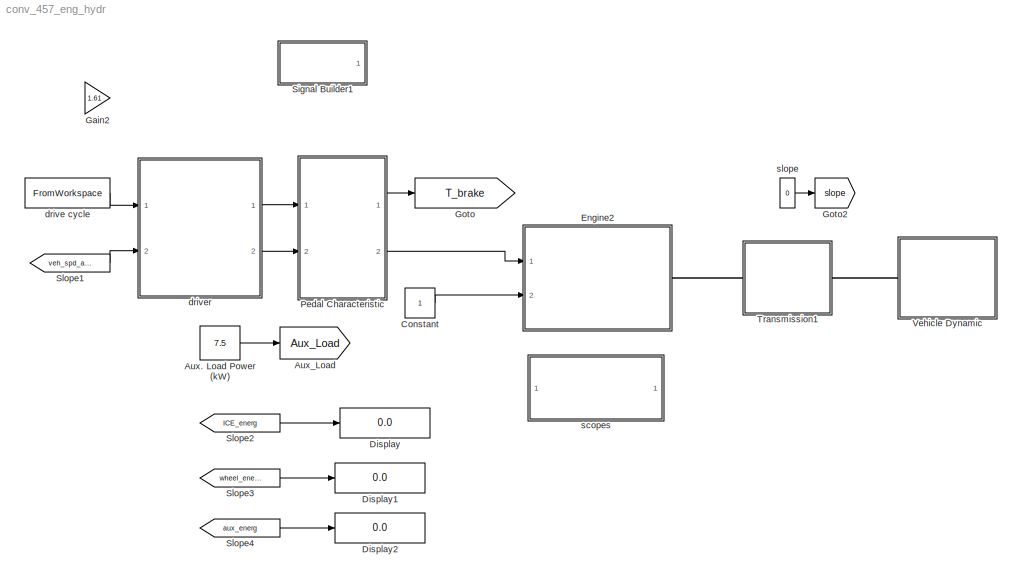
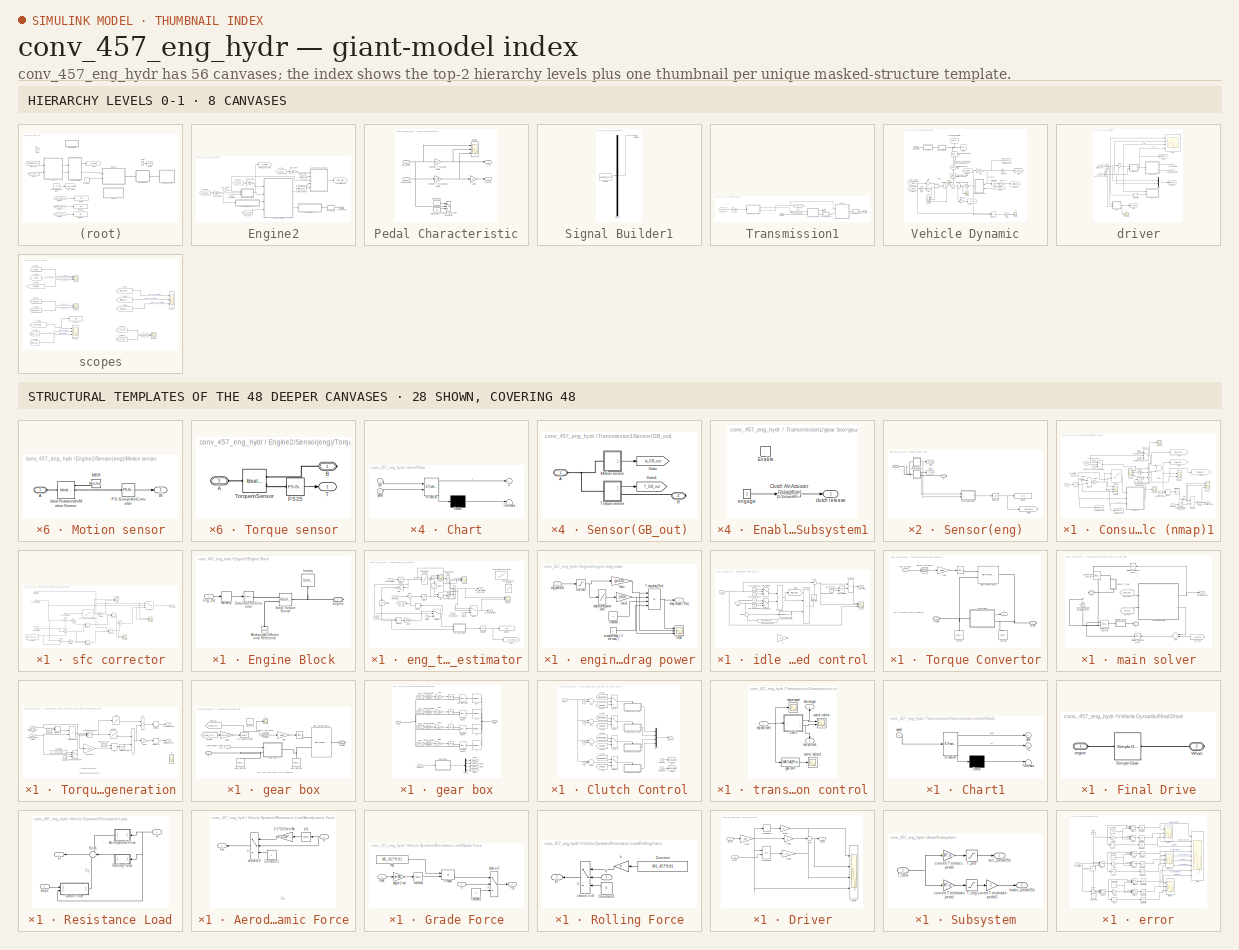
[diagram: thumbnail index - top-2 hierarchy levels (8 canvases) + 28 structural-template representatives of the remaining 48 canvases]
MODEL conv_457_eng_hydr
KIND model
CONFIG InitFcn = const_3\n
BLOCK [Constant] Aux. Load Power (kW)
  SID = 1
  Value = 7.5
BLOCK [Goto] Aux_Load
  GotoTag = Aux_Load
  SID = 2
  TagVisibility = global
BLOCK [Constant] Constant
  SID = 3
BLOCK [Display] Display
  Decimation = 1
  Lockdown = off
  Ports = [1]
  SID = 591
BLOCK [Display] Display1
  Decimation = 1
  Lockdown = off
  Ports = [1]
  SID = 592
BLOCK [Display] Display2
  Decimation = 1
  Lockdown = off
  Ports = [1]
  SID = 593
BLOCK [SubSystem] Engine2
  FunctionWithSeparateData = off
  MaskHideContents = off
  MinAlgLoopOccurrences = off
  Opaque = off
  Ports = [2, 0, 0, 0, 0, 0, 1]
  PropExecContextOutsideSubsystem = off
  RTWSystemCode = Auto
  RequestExecContextInheritance = off
  SID = 4
BLOCK [From] Engine2/Aux Load
  GotoTag = Aux_Load
  SID = 7
  TagVisibility = global
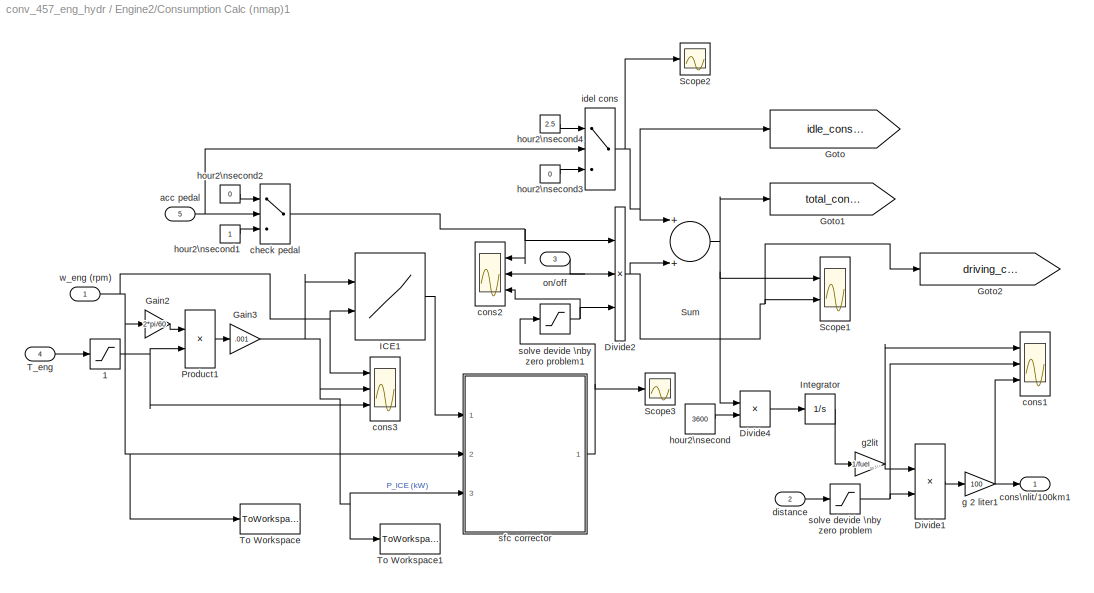
BLOCK [SubSystem] Engine2/Consumption Calc (nmap)1
  FunctionWithSeparateData = off
  MaskHideContents = off
  MinAlgLoopOccurrences = off
  Opaque = off
  Ports = [5, 1]
  PropExecContextOutsideSubsystem = off
  RTWSystemCode = Auto
  RequestExecContextInheritance = off
  SID = 8
BLOCK [Saturate] Engine2/Consumption Calc (nmap)1/1
  InputPortMap = u0
  LowerLimit = 0
  Ports = [1, 1]
  SID = 14
  UpperLimit = inf
BLOCK [Product] Engine2/Consumption Calc (nmap)1/Divide1
  InputSameDT = off
  Inputs = */
  OutDataTypeStr = Inherit: Inherit via internal rule
  Ports = [2, 1]
  RndMeth = Floor
  SID = 15
  SaturateOnIntegerOverflow = off
BLOCK [Product] Engine2/Consumption Calc (nmap)1/Divide2
  InputSameDT = off
  Inputs = 3
  OutDataTypeStr = Inherit: Inherit via internal rule
  Ports = [3, 1]
  RndMeth = Floor
  SID = 16
  SaturateOnIntegerOverflow = off
BLOCK [Product] Engine2/Consumption Calc (nmap)1/Divide4
  InputSameDT = off
  Inputs = */
  OutDataTypeStr = Inherit: Inherit via internal rule
  Ports = [2, 1]
  RndMeth = Floor
  SID = 17
  SaturateOnIntegerOverflow = off
BLOCK [Gain] Engine2/Consumption Calc (nmap)1/Gain2
  Gain = 2*pi/60
  OutDataTypeStr = Inherit: Inherit via internal rule
  ParamDataTypeStr = Inherit: Inherit via internal rule
  SID = 18
  SaturateOnIntegerOverflow = off
BLOCK [Gain] Engine2/Consumption Calc (nmap)1/Gain3
  Gain = .001
  OutDataTypeStr = Inherit: Inherit via internal rule
  ParamDataTypeStr = Inherit: Inherit via internal rule
  SID = 19
  SaturateOnIntegerOverflow = off
BLOCK [Goto] Engine2/Consumption Calc (nmap)1/Goto
  GotoTag = idle_consumption
  SID = 20
  TagVisibility = global
BLOCK [Goto] Engine2/Consumption Calc (nmap)1/Goto1
  GotoTag = total_consumption
  SID = 21
  TagVisibility = global
BLOCK [Goto] Engine2/Consumption Calc (nmap)1/Goto2
  GotoTag = driving_consumption
  SID = 22
  TagVisibility = global
BLOCK [Lookup2D] Engine2/Consumption Calc (nmap)1/ICE1
  ColumnIndex = eng_spd
  InputSameDT = off
  RowIndex = eng_P
  SID = 23
  SaturateOnIntegerOverflow = off
  Table = consumption
BLOCK [Integrator] Engine2/Consumption Calc (nmap)1/Integrator
  Ports = [1, 1]
  SID = 24
BLOCK [Product] Engine2/Consumption Calc (nmap)1/Product1
  InputSameDT = off
  OutDataTypeStr = Inherit: Inherit via internal rule
  Ports = [2, 1]
  SID = 25
  SaturateOnIntegerOverflow = off
BLOCK [Scope] Engine2/Consumption Calc (nmap)1/Scope1
  DataFormat = StructureWithTime
  Floating = off
  LimitDataPoints = off
  NumInputPorts = 2
  Ports = [2]
  SID = 26
  SampleTime = 0
  YMax = 42.5~42.5
  YMin = 0~0
  ZoomMode = xonly
BLOCK [Scope] Engine2/Consumption Calc (nmap)1/Scope2
  DataFormat = StructureWithTime
  Floating = off
  LimitDataPoints = off
  NumInputPorts = 1
  Ports = [1]
  SID = 27
  SampleTime = 0
  SaveName = ScopeData75
  ZoomMode = xonly
BLOCK [Scope] Engine2/Consumption Calc (nmap)1/Scope3
  DataFormat = StructureWithTime
  Floating = off
  LimitDataPoints = off
  NumInputPorts = 1
  Ports = [1]
  SID = 569
  SampleTime = 0
  SaveName = ScopeData1
  ZoomMode = xonly
BLOCK [Sum] Engine2/Consumption Calc (nmap)1/Sum
  InputSameDT = off
  OutDataTypeStr = Inherit: Inherit via internal rule
  Ports = [2, 1]
  SID = 28
  SaturateOnIntegerOverflow = off
BLOCK [Inport] Engine2/Consumption Calc (nmap)1/T_eng
  IconDisplay = Port number
  Port = 4
  SID = 12
BLOCK [ToWorkspace] Engine2/Consumption Calc (nmap)1/To Workspace
  MaxDataPoints = inf
  Ports = [1]
  SID = 29
  SampleTime = -1
  SaveFormat = Structure With Time
  VariableName = eng_rpm_conv
BLOCK [ToWorkspace] Engine2/Consumption Calc (nmap)1/To Workspace1
  MaxDataPoints = inf
  Ports = [1]
  SID = 575
  SampleTime = -1
  SaveFormat = Structure With Time
  VariableName = eng_pow_conv
BLOCK [Inport] Engine2/Consumption Calc (nmap)1/acc pedal
  IconDisplay = Port number
  Port = 5
  SID = 13
BLOCK [Switch] Engine2/Consumption Calc (nmap)1/check pedal
  Criteria = u2 > Threshold
  InputSameDT = off
  SID = 30
  SaturateOnIntegerOverflow = off
BLOCK [Scope] Engine2/Consumption Calc (nmap)1/cons1
  DataFormat = StructureWithTime
  Floating = off
  LimitDataPoints = off
  NumInputPorts = 3
  Ports = [3]
  SID = 31
  SampleTime = 0
  SaveName = cons1
  SaveToWorkspace = on
  YMax = 42.5~42.5~5
  YMin = 0~0~-5
  ZoomMode = yonly
BLOCK [Scope] Engine2/Consumption Calc (nmap)1/cons2
  DataFormat = StructureWithTime
  Floating = off
  LimitDataPoints = off
  NumInputPorts = 3
  Ports = [3]
  SID = 567
  SampleTime = 0
  SaveName = cons
  YMax = 42.5~42.5~5
  YMin = 0~0~-5
  ZoomMode = yonly
BLOCK [Scope] Engine2/Consumption Calc (nmap)1/cons3
  DataFormat = StructureWithTime
  Floating = off
  LimitDataPoints = off
  NumInputPorts = 3
  Ports = [3]
  SID = 568
  SampleTime = 0
  SaveName = cons2
  YMax = 2250~150~850
  YMin = 250~0~0
  ZoomMode = yonly
BLOCK [Outport] Engine2/Consumption Calc (nmap)1/cons\nlit//100km1
  IconDisplay = Port number
  SID = 65
BLOCK [Inport] Engine2/Consumption Calc (nmap)1/distance
  IconDisplay = Port number
  Port = 2
  SID = 10
BLOCK [Gain] Engine2/Consumption Calc (nmap)1/g 2 liter1
  Gain = 100
  OutDataTypeStr = Inherit: Inherit via internal rule
  ParamDataTypeStr = Inherit: Inherit via internal rule
  SID = 32
  SaturateOnIntegerOverflow = off
BLOCK [Gain] Engine2/Consumption Calc (nmap)1/g2lit
  Gain = 1/fuel_density*1000
  OutDataTypeStr = Inherit: Inherit via internal rule
  ParamDataTypeStr = Inherit: Inherit via internal rule
  SID = 33
  SaturateOnIntegerOverflow = off
BLOCK [Constant] Engine2/Consumption Calc (nmap)1/hour2\nsecond
  SID = 34
  Value = 3600
BLOCK [Constant] Engine2/Consumption Calc (nmap)1/hour2\nsecond1
  SID = 35
BLOCK [Constant] Engine2/Consumption Calc (nmap)1/hour2\nsecond2
  SID = 36
  Value = 0
BLOCK [Constant] Engine2/Consumption Calc (nmap)1/hour2\nsecond3
  SID = 37
  Value = 0
BLOCK [Constant] Engine2/Consumption Calc (nmap)1/hour2\nsecond4
  SID = 38
  Value = 2.5
BLOCK [Switch] Engine2/Consumption Calc (nmap)1/idel cons
  Criteria = u2 > Threshold
  InputSameDT = off
  SID = 39
  SaturateOnIntegerOverflow = off
BLOCK [Inport] Engine2/Consumption Calc (nmap)1/on//off
  IconDisplay = Port number
  Port = 3
  SID = 11
BLOCK [SubSystem] Engine2/Consumption Calc (nmap)1/sfc corrector
  FunctionWithSeparateData = off
  MaskHideContents = off
  MinAlgLoopOccurrences = off
  Opaque = off
  Ports = [3, 1]
  PropExecContextOutsideSubsystem = off
  RTWSystemCode = Auto
  RequestExecContextInheritance = off
  SID = 40
BLOCK [Constant] Engine2/Consumption Calc (nmap)1/sfc corrector/Constant
  SID = 44
  Value = Idle_spd_eng_457
BLOCK [Constant] Engine2/Consumption Calc (nmap)1/sfc corrector/Constant1
  SID = 45
  Value = 1000
BLOCK [Gain] Engine2/Consumption Calc (nmap)1/sfc corrector/Gain
  Gain = -1
  OutDataTypeStr = Inherit: Inherit via internal rule
  ParamDataTypeStr = Inherit: Inherit via internal rule
  SID = 46
  SaturateOnIntegerOverflow = off
BLOCK [Gain] Engine2/Consumption Calc (nmap)1/sfc corrector/Gain1
  OutDataTypeStr = Inherit: Inherit via internal rule
  ParamDataTypeStr = Inherit: Inherit via internal rule
  SID = 47
  SaturateOnIntegerOverflow = off
BLOCK [Gain] Engine2/Consumption Calc (nmap)1/sfc corrector/Gain2
  Gain = 1.25
  OutDataTypeStr = Inherit: Inherit via internal rule
  ParamDataTypeStr = Inherit: Inherit via internal rule
  SID = 48
  SaturateOnIntegerOverflow = off
BLOCK [Product] Engine2/Consumption Calc (nmap)1/sfc corrector/Product
  InputSameDT = off
  Inputs = */
  OutDataTypeStr = Inherit: Inherit via internal rule
  Ports = [2, 1]
  SID = 49
  SaturateOnIntegerOverflow = off
BLOCK [Product] Engine2/Consumption Calc (nmap)1/sfc corrector/Product1
  InputSameDT = off
  Inputs = */
  OutDataTypeStr = Inherit: Inherit via internal rule
  Ports = [2, 1]
  SID = 50
  SaturateOnIntegerOverflow = off
BLOCK [Product] Engine2/Consumption Calc (nmap)1/sfc corrector/Product2
  InputSameDT = off
  OutDataTypeStr = Inherit: Inherit via internal rule
  Ports = [2, 1]
  SID = 51
  SaturateOnIntegerOverflow = off
BLOCK [Product] Engine2/Consumption Calc (nmap)1/sfc corrector/Product3
  InputSameDT = off
  OutDataTypeStr = Inherit: Inherit via internal rule
  Ports = [2, 1]
  SID = 52
  SaturateOnIntegerOverflow = off
BLOCK [Scope] Engine2/Consumption Calc (nmap)1/sfc corrector/Scope
  DataFormat = StructureWithTime
  Floating = off
  LimitDataPoints = off
  NumInputPorts = 2
  Ports = [2]
  SID = 53
  SampleTime = 0
  SaveName = ScopeData40
  YMax = 5~5
  YMin = -5~-5
  ZoomMode = yonly
BLOCK [Scope] Engine2/Consumption Calc (nmap)1/sfc corrector/Scope1
  DataFormat = StructureWithTime
  Floating = off
  LimitDataPoints = off
  NumInputPorts = 2
  Ports = [2]
  SID = 54
  SampleTime = 0
  SaveName = ScopeData41
  YMax = 5~5
  YMin = -5~-5
  ZoomMode = yonly
BLOCK [Scope] Engine2/Consumption Calc (nmap)1/sfc corrector/Scope2
  DataFormat = StructureWithTime
  Floating = off
  LimitDataPoints = off
  NumInputPorts = 2
  Ports = [2]
  SID = 55
  SampleTime = 0
  SaveName = ScopeData42
  YMax = 5~5
  YMin = -5~-5
  ZoomMode = yonly
BLOCK [Sum] Engine2/Consumption Calc (nmap)1/sfc corrector/Sum
  IconShape = round
  InputSameDT = off
  Inputs = |+-
  OutDataTypeStr = Inherit: Inherit via internal rule
  Ports = [2, 1]
  SID = 56
  SaturateOnIntegerOverflow = off
BLOCK [Sum] Engine2/Consumption Calc (nmap)1/sfc corrector/Sum1
  IconShape = round
  InputSameDT = off
  Inputs = |+-
  OutDataTypeStr = Inherit: Inherit via internal rule
  Ports = [2, 1]
  SID = 57
  SaturateOnIntegerOverflow = off
BLOCK [Sum] Engine2/Consumption Calc (nmap)1/sfc corrector/Sum2
  IconShape = round
  InputSameDT = off
  Inputs = |+-
  OutDataTypeStr = Inherit: Inherit via internal rule
  Ports = [2, 1]
  SID = 58
  SaturateOnIntegerOverflow = off
BLOCK [Sum] Engine2/Consumption Calc (nmap)1/sfc corrector/Sum3
  IconShape = round
  InputSameDT = off
  Inputs = |++
  OutDataTypeStr = Inherit: Inherit via internal rule
  Ports = [2, 1]
  SID = 59
  SaturateOnIntegerOverflow = off
BLOCK [Switch] Engine2/Consumption Calc (nmap)1/sfc corrector/Switch
  InputSameDT = off
  SID = 60
  SaturateOnIntegerOverflow = off
  Threshold = 1000
BLOCK [Outport] Engine2/Consumption Calc (nmap)1/sfc corrector/cons(kg//h)
  IconDisplay = Port number
  SID = 62
BLOCK [Inport] Engine2/Consumption Calc (nmap)1/sfc corrector/eng_pow(kw)
  IconDisplay = Port number
  Port = 3
  SID = 43
BLOCK [Inport] Engine2/Consumption Calc (nmap)1/sfc corrector/eng_spd(rpm)
  IconDisplay = Port number
  Port = 2
  SID = 42
BLOCK [Inport] Engine2/Consumption Calc (nmap)1/sfc corrector/main map
  IconDisplay = Port number
  SID = 41
BLOCK [Lookup] Engine2/Consumption Calc (nmap)1/sfc corrector/sec_eng_sfc_map (906)
  InputValues = sec_eng_sfc_map(:,1)
  SID = 61
  SaturateOnIntegerOverflow = off
  Table = sec_eng_sfc_map(:,2)
BLOCK [Saturate] Engine2/Consumption Calc (nmap)1/solve devide \nby zero problem
  InputPortMap = u0
  LowerLimit = eps
  Ports = [1, 1]
  SID = 63
  UpperLimit = inf
BLOCK [Saturate] Engine2/Consumption Calc (nmap)1/solve devide \nby zero problem1
  InputPortMap = u0
  LowerLimit = 0
  Ports = [1, 1]
  SID = 64
  UpperLimit = inf
BLOCK [Inport] Engine2/Consumption Calc (nmap)1/w_eng (rpm)
  IconDisplay = Port number
  SID = 9
BLOCK [From] Engine2/Distance (km)
  GotoTag = Distance
  SID = 66
  TagVisibility = global
BLOCK [From] Engine2/Distance (km)1
  GotoTag = idle_control
  SID = 67
  TagVisibility = global
BLOCK [SubSystem] Engine2/Engine Block
  FunctionWithSeparateData = off
  MaskHideContents = off
  MinAlgLoopOccurrences = off
  Opaque = off
  Ports = [1, 0, 0, 0, 0, 0, 1]
  PropExecContextOutsideSubsystem = off
  RTWSystemCode = Auto
  RequestExecContextInheritance = off
  SID = 68
BLOCK [PMIOPort] Engine2/Engine Block/Engine
  Port = 1
  SID = 75
  Side = Right
BLOCK [Reference] Engine2/Engine Block/Ideal Torque Source  REF=fl_lib/Mechanical/Mechanical Sources/Ideal Torque Source
  ClassName = torque
  ComponentPath = foundation.mechanical.sources.torque
  FunctionWithSeparateData = off
  GeneratePreprocessorConditionals = off
  LocalVarDescs = |w|t
  LocalVarLogging = [0 0]
  LocalVarNames = |w|t
  Ports = [0, 0, 0, 0, 0, 1, 2]
  RTWMemSecDataConstants = Inherit from model
  RTWMemSecDataInternal = Inherit from model
  RTWMemSecDataParameters = Inherit from model
  RTWMemSecFuncExecute = Inherit from model
  RTWMemSecFuncInitTerm = Inherit from model
  SID = 70
  SchemaVersion = 1
  ShowPortLabels = FromPortIcon
  SourceBlock = fl_lib/Mechanical/Mechanical Sources/Ideal Torque Source
  SourceType = Ideal Torque Source
  SystemSampleTime = -1
  t_Log = off
  w_Log = off
BLOCK [Reference] Engine2/Engine Block/Inertia  REF=fl_lib/Mechanical/Rotational Elements/Inertia
  ClassName = inertia
  ComponentPath = foundation.mechanical.rotational.inertia
  FunctionWithSeparateData = off
  GeneratePreprocessorConditionals = off
  LocalVarDescs = |t
  LocalVarLogging = 0
  LocalVarNames = |t
  Ports = [0, 0, 0, 0, 0, 1]
  RTWMemSecDataConstants = Inherit from model
  RTWMemSecDataInternal = Inherit from model
  RTWMemSecDataParameters = Inherit from model
  RTWMemSecFuncExecute = Inherit from model
  RTWMemSecFuncInitTerm = Inherit from model
  SID = 71
  SchemaVersion = 1
  ShowPortLabels = FromPortIcon
  SourceBlock = fl_lib/Mechanical/Rotational Elements/Inertia
  SourceType = Inertia
  SystemSampleTime = -1
  inertia = I_ICE
  inertia_unit = kg*m^2
  initial_velocity = 0
  initial_velocity_unit = rad/s
  t_Log = off
BLOCK [Reference] Engine2/Engine Block/Mechanical\nRotational Reference  REF=fl_lib/Mechanical/Rotational Elements/Mechanical\nRotational Reference
  ClassName = reference
  ComponentPath = foundation.mechanical.rotational.reference
  FunctionWithSeparateData = off
  GeneratePreprocessorConditionals = off
  LocalVarDescs = |t
  LocalVarLogging = 0
  LocalVarNames = |t
  Ports = [0, 0, 0, 0, 0, 1]
  RTWMemSecDataConstants = Inherit from model
  RTWMemSecDataInternal = Inherit from model
  RTWMemSecDataParameters = Inherit from model
  RTWMemSecFuncExecute = Inherit from model
  RTWMemSecFuncInitTerm = Inherit from model
  SID = 72
  SchemaVersion = 1
  ShowPortLabels = FromPortIcon
  SourceBlock = fl_lib/Mechanical/Rotational Elements/Mechanical\nRotational Reference
  SourceType = Mechanical\nRotational Reference
  SystemSampleTime = -1
  t_Log = off
BLOCK [Memory] Engine2/Engine Block/Memory
  InheritSampleTime = on
  SID = 73
BLOCK [Reference] Engine2/Engine Block/Simulink-PS\nConverter  REF=nesl_utility/Simulink-PS\nConverter
  AffineConversion = off
  FunctionWithSeparateData = off
  GeneratePreprocessorConditionals = off
  InputFilterTimeConstant = 0.01
  LeftPortType = input
  PhysicalDomain = network_engine_domain
  Ports = [1, 0, 0, 0, 0, 0, 1]
  RTWMemSecDataConstants = Inherit from model
  RTWMemSecDataInternal = Inherit from model
  RTWMemSecDataParameters = Inherit from model
  RTWMemSecFuncExecute = Inherit from model
  RTWMemSecFuncInitTerm = Inherit from model
  RightPortType = output
  SID = 74
  ShowPortLabels = FromPortIcon
  SourceBlock = nesl_utility/Simulink-PS\nConverter
  SourceType = Simulink-PS\nConverter
  SubClassName = ps_input
  SystemSampleTime = -1
  UdotUserProvided = 0
  Unit = 1
BLOCK [Inport] Engine2/Engine Block/eng_trq
  IconDisplay = Port number
  SID = 69
BLOCK [SubSystem] Engine2/Sensor(eng)
  FunctionWithSeparateData = off
  MaskHideContents = off
  MinAlgLoopOccurrences = off
  Opaque = off
  Ports = [0, 0, 0, 0, 0, 1, 1]
  PropExecContextOutsideSubsystem = off
  RTWSystemCode = Auto
  RequestExecContextInheritance = off
  SID = 76
BLOCK [PMIOPort] Engine2/Sensor(eng)/A
  Port = 1
  SID = 91
  Side = Left
BLOCK [PMIOPort] Engine2/Sensor(eng)/B
  Port = 2
  SID = 92
  Side = Right
BLOCK [Display] Engine2/Sensor(eng)/Display
  Decimation = 1
  Lockdown = off
  Ports = [1]
  SID = 583
BLOCK [Goto] Engine2/Sensor(eng)/Goto
  GotoTag = w_eng
  SID = 77
  TagVisibility = global
BLOCK [Goto] Engine2/Sensor(eng)/Goto1
  GotoTag = T_eng
  SID = 78
  TagVisibility = global
BLOCK [Goto] Engine2/Sensor(eng)/Goto2
  GotoTag = ICE_energ
  SID = 588
  TagVisibility = global
BLOCK [Integrator] Engine2/Sensor(eng)/Integrator
  Ports = [1, 1]
  SID = 582
BLOCK [SubSystem] Engine2/Sensor(eng)/MATLAB Function
  ErrorFcn = Stateflow.Translate.translate
  FunctionWithSeparateData = off
  MaskDescription = Embedded MATLAB block
  MaskDisplay = bgColor = Simulink.Root.ColorString2Rgb(get_param(gcbh, 'BackgroundColor')); image(imread('private/eml_membrane_16.png','png','BackgroundColor',bgColor(1:3)),'center'); disp([10 10 'fcn']);  <repeated x3 — deduplicated; at blocks: MATLAB Function>
  MaskHideContents = off
  MaskIconFrame = on
  MaskIconOpaque = off
  MaskIconRotate = none
  MaskIconUnits = normalized
  MaskPortRotate = default
  MaskSelfModifiable = on
  MaskType = Stateflow
  MinAlgLoopOccurrences = off
  Opaque = off
  PermitHierarchicalResolution = ExplicitOnly
  Ports = [2, 1]
  PropExecContextOutsideSubsystem = off
  RTWSystemCode = Auto
  RequestExecContextInheritance = off
  SID = 581
  TreatAsAtomicUnit = on
BLOCK [Demux] Engine2/Sensor(eng)/MATLAB Function/ Demux 
  Outputs = 1
  Ports = [1, 1]
  SID = 581::15
BLOCK [S-Function] Engine2/Sensor(eng)/MATLAB Function/ SFunction 
  EnableBusSupport = on
  FunctionName = sf_sfun
  PortCounts = [2 2]
  Ports = [2, 2]
  SID = 581::14
  Tag = Stateflow S-Function conv_457_eng_hydr 3
BLOCK [Terminator] Engine2/Sensor(eng)/MATLAB Function/ Terminator 
  SID = 581::17
BLOCK [Inport] Engine2/Sensor(eng)/MATLAB Function/T
  IconDisplay = Port number
  SID = 581::1
BLOCK [Inport] Engine2/Sensor(eng)/MATLAB Function/w
  IconDisplay = Port number
  Port = 2
  SID = 581::18
BLOCK [Outport] Engine2/Sensor(eng)/MATLAB Function/y
  IconDisplay = Port number
  SID = 581::5
BLOCK [SubSystem] Engine2/Sensor(eng)/Motion sensor
  FunctionWithSeparateData = off
  MaskHideContents = off
  MinAlgLoopOccurrences = off
  Opaque = off
  Ports = [0, 1, 0, 0, 0, 1]
  PropExecContextOutsideSubsystem = off
  RTWSystemCode = Auto
  RequestExecContextInheritance = off
  SID = 79
BLOCK [PMIOPort] Engine2/Sensor(eng)/Motion sensor/A
  Port = 1
  SID = 83
  Side = Left
BLOCK [Reference] Engine2/Sensor(eng)/Motion sensor/Ideal Rotational\nMotion Sensor  REF=fl_lib/Mechanical/Mechanical Sensors/Ideal Rotational\nMotion Sensor
  ClassName = sensor_rot_motion
  ComponentPath = foundation.mechanical.sensors.angular_velocity
  FunctionWithSeparateData = off
  GeneratePreprocessorConditionals = off
  LocalVarDescs = |w|t|phi
  LocalVarLogging = []
  LocalVarNames = |w|t|phi
  Ports = [0, 0, 0, 0, 0, 1, 3]
  RTWMemSecDataConstants = Inherit from model
  RTWMemSecDataInternal = Inherit from model
  RTWMemSecDataParameters = Inherit from model
  RTWMemSecFuncExecute = Inherit from model
  RTWMemSecFuncInitTerm = Inherit from model
  SID = 80
  SchemaVersion = 1
  ShowPortLabels = FromPortIcon
  SourceBlock = fl_lib/Mechanical/Mechanical Sensors/Ideal Rotational\nMotion Sensor
  SourceType = Ideal Rotational\nMotion Sensor
  SystemSampleTime = -1
  offset = 0
  offset_unit = rad
  phi_Log = off
  t_Log = off
  w_Log = off
BLOCK [Reference] Engine2/Sensor(eng)/Motion sensor/MRR  REF=fl_lib/Mechanical/Rotational Elements/Mechanical\nRotational Reference
  ClassName = reference_rot
  ComponentPath = foundation.mechanical.rotational.reference
  FunctionWithSeparateData = off
  GeneratePreprocessorConditionals = off
  LocalVarDescs = |t
  LocalVarLogging = []
  LocalVarNames = |t
  Ports = [0, 0, 0, 0, 0, 1]
  RTWMemSecDataConstants = Inherit from model
  RTWMemSecDataInternal = Inherit from model
  RTWMemSecDataParameters = Inherit from model
  RTWMemSecFuncExecute = Inherit from model
  RTWMemSecFuncInitTerm = Inherit from model
  SID = 81
  SchemaVersion = 1
  ShowPortLabels = FromPortIcon
  SourceBlock = fl_lib/Mechanical/Rotational Elements/Mechanical\nRotational Reference
  SourceType = Mechanical\nRotational Reference
  SystemSampleTime = -1
  t_Log = off
BLOCK [Reference] Engine2/Sensor(eng)/Motion sensor/PS-Simulink\nConverter  REF=nesl_utility/PS-Simulink\nConverter
  AffineConversion = off
  FunctionWithSeparateData = off
  GeneratePreprocessorConditionals = off
  LeftPortType = input
  PhysicalDomain = network_engine_domain
  Ports = [0, 1, 0, 0, 0, 1]
  RTWMemSecDataConstants = Inherit from model
  RTWMemSecDataInternal = Inherit from model
  RTWMemSecDataParameters = Inherit from model
  RTWMemSecFuncExecute = Inherit from model
  RTWMemSecFuncInitTerm = Inherit from model
  RightPortType = output
  SID = 82
  ShowPortLabels = none
  SourceBlock = nesl_utility/PS-Simulink\nConverter
  SourceType = PS-Simulink\nConverter
  SubClassName = ps_output
  SystemSampleTime = -1
  Unit = rad/s
BLOCK [Outport] Engine2/Sensor(eng)/Motion sensor/W
  IconDisplay = Port number
  SID = 84
BLOCK [SubSystem] Engine2/Sensor(eng)/Torque sensor
  FunctionWithSeparateData = off
  MaskHideContents = off
  MinAlgLoopOccurrences = off
  Opaque = off
  Ports = [0, 1, 0, 0, 0, 1, 1]
  PropExecContextOutsideSubsystem = off
  RTWSystemCode = Auto
  RequestExecContextInheritance = off
  SID = 85
BLOCK [PMIOPort] Engine2/Sensor(eng)/Torque sensor/A
  Port = 2
  SID = 89
  Side = Left
BLOCK [PMIOPort] Engine2/Sensor(eng)/Torque sensor/B
  Port = 1
  SID = 88
  Side = Right
BLOCK [Reference] Engine2/Sensor(eng)/Torque sensor/PS2S  REF=nesl_utility/PS-Simulink\nConverter
  AffineConversion = off
  FunctionWithSeparateData = off
  GeneratePreprocessorConditionals = off
  LeftPortType = input
  PhysicalDomain = network_engine_domain
  Ports = [0, 1, 0, 0, 0, 1]
  RTWMemSecDataConstants = Inherit from model
  RTWMemSecDataInternal = Inherit from model
  RTWMemSecDataParameters = Inherit from model
  RTWMemSecFuncExecute = Inherit from model
  RTWMemSecFuncInitTerm = Inherit from model
  RightPortType = output
  SID = 86
  ShowPortLabels = none
  SourceBlock = nesl_utility/PS-Simulink\nConverter
  SourceType = PS-Simulink\nConverter
  SubClassName = ps_output
  SystemSampleTime = -1
  Unit = 1
BLOCK [Outport] Engine2/Sensor(eng)/Torque sensor/T
  IconDisplay = Port number
  SID = 90
BLOCK [Reference] Engine2/Sensor(eng)/Torque sensor/Torque\nSensor  REF=fl_lib/Mechanical/Mechanical Sensors/Ideal Torque Sensor
  ClassName = sensor_torque
  ComponentPath = foundation.mechanical.sensors.torque
  FunctionWithSeparateData = off
  GeneratePreprocessorConditionals = off
  LocalVarDescs = |w|t
  LocalVarLogging = []
  LocalVarNames = |w|t
  Ports = [0, 0, 0, 0, 0, 1, 2]
  RTWMemSecDataConstants = Inherit from model
  RTWMemSecDataInternal = Inherit from model
  RTWMemSecDataParameters = Inherit from model
  RTWMemSecFuncExecute = Inherit from model
  RTWMemSecFuncInitTerm = Inherit from model
  SID = 87
  SchemaVersion = 1
  ShowPortLabels = FromPortIcon
  SourceBlock = fl_lib/Mechanical/Mechanical Sensors/Ideal Torque Sensor
  SourceType = Ideal Torque Sensor
  SystemSampleTime = -1
  t_Log = off
  w_Log = off
BLOCK [Goto] Engine2/T idle speed control
  GotoTag = T_out_idle_cotl
  SID = 93
  TagVisibility = global
BLOCK [Inport] Engine2/T_eng (Nm)
  IconDisplay = Port number
  SID = 5
BLOCK [PMIOPort] Engine2/Transmission
  Port = 1
  SID = 167
  Side = Right
BLOCK [Goto] Engine2/cons\nlit//100km
  GotoTag = cons_LitP100km
  SID = 94
  TagVisibility = global
BLOCK [Inport] Engine2/eng_on//off
  IconDisplay = Port number
  Port = 2
  SID = 6
BLOCK [SubSystem] Engine2/eng_torq_estimator
  FunctionWithSeparateData = off
  MaskHideContents = off
  MinAlgLoopOccurrences = off
  Opaque = off
  Ports = [4, 2]
  PropExecContextOutsideSubsystem = off
  RTWSystemCode = Auto
  RequestExecContextInheritance = off
  SID = 95
BLOCK [Saturate] Engine2/eng_torq_estimator/0 to inf1
  InputPortMap = u0
  LowerLimit = 0
  Ports = [1, 1]
  SID = 100
  UpperLimit = inf
BLOCK [Saturate] Engine2/eng_torq_estimator/0 to inf2
  InputPortMap = u0
  LowerLimit = eps
  Ports = [1, 1]
  SID = 101
  UpperLimit = inf
BLOCK [Saturate] Engine2/eng_torq_estimator/0 to inf3
  InputPortMap = u0
  LowerLimit = 0
  Ports = [1, 1]
  SID = 102
  UpperLimit = inf
BLOCK [Saturate] Engine2/eng_torq_estimator/0 to inf4
  InputPortMap = u0
  LowerLimit = 0
  Ports = [1, 1]
  SID = 103
  UpperLimit = inf
BLOCK [Saturate] Engine2/eng_torq_estimator/0 to inf5
  InputPortMap = u0
  LowerLimit = 0
  Ports = [1, 1]
  SID = 104
  UpperLimit = inf
BLOCK [Inport] Engine2/eng_torq_estimator/Aux Load
  IconDisplay = Port number
  Port = 4
  SID = 99
BLOCK [Goto] Engine2/eng_torq_estimator/Aux_Trq
  GotoTag = Aux_Trq
  SID = 105
  TagVisibility = global
BLOCK [Display] Engine2/eng_torq_estimator/Display
  Decimation = 1
  Lockdown = off
  Ports = [1]
  SID = 595
BLOCK [Gain] Engine2/eng_torq_estimator/Gain
  Gain = pi/30
  OutDataTypeStr = Inherit: Inherit via internal rule
  ParamDataTypeStr = Inherit: Inherit via internal rule
  SID = 106
  SaturateOnIntegerOverflow = off
BLOCK [Gain] Engine2/eng_torq_estimator/Gain1
  Gain = 1000
  OutDataTypeStr = Inherit: Inherit via internal rule
  ParamDataTypeStr = Inherit: Inherit via internal rule
  SID = 107
  SaturateOnIntegerOverflow = off
BLOCK [Goto] Engine2/eng_torq_estimator/Goto2
  GotoTag = aux_energ
  SID = 596
  TagVisibility = global
BLOCK [Integrator] Engine2/eng_torq_estimator/Integrator
  Ports = [1, 1]
  SID = 597
BLOCK [SubSystem] Engine2/eng_torq_estimator/MATLAB Function
  ErrorFcn = Stateflow.Translate.translate
  FunctionWithSeparateData = off
  MaskDescription = Embedded MATLAB block
  MaskHideContents = off
  MaskIconFrame = on
  MaskIconOpaque = off
  MaskIconRotate = none
  MaskIconUnits = normalized
  MaskPortRotate = default
  MaskSelfModifiable = on
  MaskType = Stateflow
  MinAlgLoopOccurrences = off
  Opaque = off
  PermitHierarchicalResolution = ExplicitOnly
  Ports = [2, 1]
  PropExecContextOutsideSubsystem = off
  RTWSystemCode = Auto
  RequestExecContextInheritance = off
  SID = 598
  TreatAsAtomicUnit = on
BLOCK [Demux] Engine2/eng_torq_estimator/MATLAB Function/ Demux 
  Outputs = 1
  Ports = [1, 1]
  SID = 598::15
BLOCK [S-Function] Engine2/eng_torq_estimator/MATLAB Function/ SFunction 
  EnableBusSupport = on
  FunctionName = sf_sfun
  PortCounts = [2 2]
  Ports = [2, 2]
  SID = 598::14
  Tag = Stateflow S-Function conv_457_eng_hydr 5
BLOCK [Terminator] Engine2/eng_torq_estimator/MATLAB Function/ Terminator 
  SID = 598::17
BLOCK [Inport] Engine2/eng_torq_estimator/MATLAB Function/T
  IconDisplay = Port number
  SID = 598::1
BLOCK [Inport] Engine2/eng_torq_estimator/MATLAB Function/w
  IconDisplay = Port number
  Port = 2
  SID = 598::18
BLOCK [Outport] Engine2/eng_torq_estimator/MATLAB Function/y
  IconDisplay = Port number
  SID = 598::5
BLOCK [Memory] Engine2/eng_torq_estimator/Memory
  InheritSampleTime = on
  SID = 108
BLOCK [MinMax] Engine2/eng_torq_estimator/Min
  Function = min
  InputSameDT = off
  Inputs = 2
  Ports = [2, 1]
  SID = 109
  SaturateOnIntegerOverflow = off
BLOCK [Lookup] Engine2/eng_torq_estimator/Overload Torque (Nm)1
  InputValues = [2300 2450 2600]
  SID = 110
  Table = [883.44 0 0]
BLOCK [Lookup] Engine2/eng_torq_estimator/PeakTorque - 457(Nm)
  InputValues = full_load_T(:,1)
  SID = 111
  Table = full_load_T(:,2)
BLOCK [Lookup] Engine2/eng_torq_estimator/PeakTorque - 906 - 170(Nm)
  InputValues = [1003.63,1010.38,1020.5,1031.98,1045.47,1055.6,1066.39,1079.89,1099.45,1110.25,1123.07,1133.87,1146.69,1160.19,1173.69,1189.2,1202.7,1219.57,1234.42,1251.96,1272.21,1289.08,1308.65,1329.57,1347.79,1369.39,1391.66,1411.9,1426.74,1449.01,1467.91,1488.15,1504.35,1519.87,1538.09,1555.64,1575.88,1598.82,1621.09,1643.36,1661.58,1681.82,1702.06,1722.31,1742.55,1762.79,1781.68,1797.87,1820.14,1841.72,1862...<+335ch>
  SID = 112
  Table = [791.7134996,793.8019364,793.9643572,795.2441887,795.6778953,795.809393,796.1451452,795.1651489,794.5784296,796.2483457,794.4596079,796.0958691,796.9464236,794.7401034,797.6655525,796.6644414,797.6405878,795.7760205,797.6751577,799.0011384,800.3421587,800.2762121,800.8376584,802.256691,803.0240065,803.9696161,805.5619336,803.5165963,805.0848011,803.5127337,805.3582086,804.4214763,804.6774897,806.2...<+707ch>
BLOCK [Lookup] Engine2/eng_torq_estimator/PeakTorque -906 - 205(Nm)
  InputValues = [1000,1070,1130,1200,1280,1500,1590,1680,1760,1850,1930,2010,2070,2150,2240,2320,2380,2500]
  SID = 113
  Table = [982,1040,1080,1100,1110,1110,1100,1080,1060,1020,994,963,940,909,872,838,804,751]
BLOCK [Product] Engine2/eng_torq_estimator/Product
  InputSameDT = off
  Inputs = */
  OutDataTypeStr = Inherit: Inherit via internal rule
  Ports = [2, 1]
  SID = 114
  SaturateOnIntegerOverflow = off
BLOCK [Scope] Engine2/eng_torq_estimator/Scope
  DataFormat = StructureWithTime
  Floating = off
  LimitDataPoints = off
  NumInputPorts = 3
  Ports = [3]
  SID = 115
  SampleTime = 0
  SaveName = ScopeData10
  YMax = 5~5~5
  YMin = -5~-5~-5
  ZoomMode = xonly
BLOCK [Scope] Engine2/eng_torq_estimator/Scope1
  DataFormat = StructureWithTime
  Floating = off
  LimitDataPoints = off
  NumInputPorts = 3
  Ports = [3]
  SID = 116
  SampleTime = 0
  SaveName = ScopeData9
  YMax = 5~5~5
  YMin = -5~-5~-5
  ZoomMode = xonly
BLOCK [Scope] Engine2/eng_torq_estimator/Scope2
  DataFormat = StructureWithTime
  Floating = off
  LimitDataPoints = off
  NumInputPorts = 3
  Ports = [3]
  SID = 117
  SampleTime = 0
  SaveName = ScopeData23
  YMax = 5~5~5
  YMin = -5~-5~-5
  ZoomMode = xonly
BLOCK [Sum] Engine2/eng_torq_estimator/Sum
  IconShape = round
  InputSameDT = off
  Inputs = |++
  OutDataTypeStr = Inherit: Inherit via internal rule
  Ports = [2, 1]
  SID = 118
  SaturateOnIntegerOverflow = off
BLOCK [Switch] Engine2/eng_torq_estimator/Switch
  InputSameDT = off
  SID = 119
  SaturateOnIntegerOverflow = off
  Threshold = 0.1
BLOCK [Switch] Engine2/eng_torq_estimator/Switch1
  InputSameDT = off
  SID = 120
  SaturateOnIntegerOverflow = off
  Threshold = Idle_spd_eng_457*0.75
BLOCK [Switch] Engine2/eng_torq_estimator/check max speed
  InputSameDT = off
  SID = 121
  SaturateOnIntegerOverflow = off
  Threshold = 2300
BLOCK [Inport] Engine2/eng_torq_estimator/eng_drag_trq
  IconDisplay = Port number
  Port = 3
  SID = 98
BLOCK [Inport] Engine2/eng_torq_estimator/eng_spd (rpm)
  IconDisplay = Port number
  SID = 96
BLOCK [Inport] Engine2/eng_torq_estimator/eng_trq_in
  IconDisplay = Port number
  Port = 2
  SID = 97
BLOCK [Outport] Engine2/eng_torq_estimator/eng_trq_out (Nm)
  IconDisplay = Port number
  Port = 2
  SID = 125
BLOCK [Outport] Engine2/eng_torq_estimator/eng_trq_out (Nm) to consump
  IconDisplay = Port number
  SID = 124
BLOCK [Constant] Engine2/eng_torq_estimator/slope
  SID = 122
  Value = 0
BLOCK [Constant] Engine2/eng_torq_estimator/slope1
  SID = 123
  Value = 0
BLOCK [SubSystem] Engine2/engine drag power
  FunctionWithSeparateData = off
  MaskHideContents = off
  MinAlgLoopOccurrences = off
  Opaque = off
  Ports = [1, 1]
  PropExecContextOutsideSubsystem = off
  RTWSystemCode = Auto
  RequestExecContextInheritance = off
  SID = 126
BLOCK [Saturate] Engine2/engine drag power/0 to inf2
  InputPortMap = u0
  LowerLimit = eps
  Ports = [1, 1]
  SID = 128
  UpperLimit = inf
BLOCK [Constant] Engine2/engine drag power/Constant
  SID = 129
  Value = -1
BLOCK [Gain] Engine2/engine drag power/Gain
  Gain = (pi)/30
  OutDataTypeStr = Inherit: Inherit via internal rule
  ParamDataTypeStr = Inherit: Inherit via internal rule
  SID = 130
  SaturateOnIntegerOverflow = off
BLOCK [Gain] Engine2/engine drag power/Gain1
  Gain = 1000
  OutDataTypeStr = Inherit: Inherit via internal rule
  ParamDataTypeStr = Inherit: Inherit via internal rule
  SID = 131
  SaturateOnIntegerOverflow = off
BLOCK [Scope] Engine2/engine drag power/Scope
  DataFormat = StructureWithTime
  Floating = off
  LimitDataPoints = off
  NumInputPorts = 3
  Ports = [3]
  SID = 132
  SampleTime = 0
  SaveName = ScopeData2
  YMax = 5~5~5
  YMin = -5~-5~-5
  ZoomMode = yonly
BLOCK [Product] Engine2/engine drag power/T_eng_drag (Nm)
  InputSameDT = off
  Inputs = /***
  OutDataTypeStr = Inherit: Inherit via internal rule
  Ports = [4, 1]
  RndMeth = Floor
  SID = 133
  SaturateOnIntegerOverflow = off
BLOCK [Outport] Engine2/engine drag power/drag torque ( Nm)
  IconDisplay = Port number
  SID = 136
BLOCK [Inport] Engine2/engine drag power/eng_spd(rpm)
  IconDisplay = Port number
  SID = 127
BLOCK [Lookup] Engine2/engine drag power/engine_drag_power (kw)
  InputValues = [-10,eps,802.567507746791,824.568393094289,846.879150066401,868.8800354139,890.880920761399,912.881806108898,935.192563081009,957.193448428508,979.194333776007,1001.19521912351,1023.196104471,1045.1969898185,1067.197875166,1089.50863213811,1111.50951748561,1133.51040283311,1155.51128818061,1177.51217352811,1199.51305887561,1221.51394422311,1243.51482957061,1265.51571491811,1287.5166002656,1309.517...<+620ch>
  SID = 134
  SaturateOnIntegerOverflow = off
  Table = [0,0,8.89504100832017,9.50127747975726,9.88870415102495,10.2762179627945,10.7512208384311,11.1824791821341,11.6136503853353,12.0449087290384,12.4761670727414,12.9074254164445,13.294939228214,13.7261975719171,14.1137113836866,14.5448825868878,15.0636299944579,15.5386328700944,15.9698912137975,16.357405025567,16.7449188373366,17.1761771810396,17.6074355247427,17.9949493365122,18.4699522121488,18.988...<+631ch>
BLOCK [Constant] Engine2/engine drag power/no engine drag ( if we want )
  SID = 135
BLOCK [SubSystem] Engine2/idle speed control
  FunctionWithSeparateData = off
  MaskHideContents = off
  MinAlgLoopOccurrences = off
  Opaque = off
  Ports = [3, 1]
  PropExecContextOutsideSubsystem = off
  RTWSystemCode = Auto
  RequestExecContextInheritance = off
  SID = 137
BLOCK [Lookup_n-D] Engine2/idle speed control/1-D Lookup\nTable
  BreakpointsForDimension1 = [0 Idle_spd_eng_457*0.025 Idle_spd_eng_457]
  IndexSearchMethod = Binary search
  NumberOfTableDimensions = 1
  Ports = [1, 1]
  RndMeth = Simplest
  SID = 141
  Table = [0 0 T_max_457/2]
BLOCK [Goto] Engine2/idle speed control/Goto
  GotoTag = idle_control
  SID = 142
  TagVisibility = global
BLOCK [Reference] Engine2/idle speed control/Manual Switch  REF=simulink/Signal\nRouting/Manual Switch
  FunctionWithSeparateData = off
  GeneratePreprocessorConditionals = off
  Ports = [2, 1]
  RTWMemSecDataConstants = Inherit from model
  RTWMemSecDataInternal = Inherit from model
  RTWMemSecDataParameters = Inherit from model
  RTWMemSecFuncExecute = Inherit from model
  RTWMemSecFuncInitTerm = Inherit from model
  SID = 143
  ShowPortLabels = FromPortIcon
  SourceBlock = simulink/Signal\nRouting/Manual Switch
  SourceType = Manual Switch
  SystemSampleTime = -1
  action = 0
  sw = 0
  varsize = off
BLOCK [Gain] Engine2/idle speed control/P
  Gain = 5.5
  OutDataTypeStr = Inherit: Inherit via internal rule
  ParamDataTypeStr = Inherit: Inherit via internal rule
  SID = 144
  SaturateOnIntegerOverflow = off
BLOCK [Product] Engine2/idle speed control/Product1
  InputSameDT = off
  Inputs = **
  OutDataTypeStr = Inherit: Inherit via internal rule
  Ports = [2, 1]
  SID = 145
  SaturateOnIntegerOverflow = off
BLOCK [Product] Engine2/idle speed control/Product2
  InputSameDT = off
  Inputs = **
  OutDataTypeStr = Inherit: Inherit via internal rule
  Ports = [2, 1]
  SID = 146
  SaturateOnIntegerOverflow = off
BLOCK [Product] Engine2/idle speed control/Product3
  InputSameDT = off
  Inputs = **
  OutDataTypeStr = Inherit: Inherit via internal rule
  Ports = [2, 1]
  SID = 147
  SaturateOnIntegerOverflow = off
BLOCK [Saturate] Engine2/idle speed control/Saturation
  InputPortMap = u0
  LowerLimit = 0
  Ports = [1, 1]
  SID = 148
  UpperLimit = T_max_457/5
BLOCK [Scope] Engine2/idle speed control/Scope
  DataFormat = StructureWithTime
  Floating = off
  LimitDataPoints = off
  NumInputPorts = 3
  Ports = [3]
  SID = 149
  SampleTime = 0
  SaveName = ScopeData11
  YMax = 5~5~5
  YMin = -5~-5~-5
  ZoomMode = xonly
BLOCK [Sum] Engine2/idle speed control/Sum
  IconShape = round
  InputSameDT = off
  Inputs = |++
  OutDataTypeStr = Inherit: Inherit via internal rule
  Ports = [2, 1]
  SID = 150
  SaturateOnIntegerOverflow = off
BLOCK [Sum] Engine2/idle speed control/Sum1
  IconShape = round
  InputSameDT = off
  Inputs = -|+
  OutDataTypeStr = Inherit: Inherit via internal rule
  Ports = [2, 1]
  SID = 151
  SaturateOnIntegerOverflow = off
BLOCK [Inport] Engine2/idle speed control/T_eng
  IconDisplay = Port number
  Port = 3
  SID = 140
BLOCK [Outport] Engine2/idle speed control/T_eng + Idle
  IconDisplay = Port number
  SID = 160
BLOCK [Switch] Engine2/idle speed control/check idle P
  Criteria = u2 > Threshold
  InputSameDT = off
  SID = 152
  SaturateOnIntegerOverflow = off
BLOCK [Switch] Engine2/idle speed control/check idle spd
  Criteria = u2 > Threshold
  InputSameDT = off
  SID = 153
  SaturateOnIntegerOverflow = off
  Threshold = Idle_spd_eng_457
BLOCK [Constant] Engine2/idle speed control/hour2\nsecond
  SID = 154
  Value = 0
BLOCK [Constant] Engine2/idle speed control/hour2\nsecond1
  SID = 155
BLOCK [Constant] Engine2/idle speed control/hour2\nsecond2
  SID = 156
BLOCK [Constant] Engine2/idle speed control/hour2\nsecond3
  SID = 157
  Value = 0
BLOCK [Constant] Engine2/idle speed control/hour2\nsecond4
  SID = 158
  Value = Idle_spd_eng_457
BLOCK [Constant] Engine2/idle speed control/hour2\nsecond5
  SID = 159
BLOCK [Inport] Engine2/idle speed control/on
  IconDisplay = Port number
  SID = 138
BLOCK [Inport] Engine2/idle speed control/spd
  IconDisplay = Port number
  Port = 2
  SID = 139
BLOCK [Gain] Engine2/rasps2rpm
  Gain = 30/pi
  OutDataTypeStr = Inherit: Inherit via internal rule
  ParamDataTypeStr = Inherit: Inherit via internal rule
  SID = 161
  SaturateOnIntegerOverflow = off
BLOCK [Gain] Engine2/rasps2rpm1
  Gain = 30/pi
  OutDataTypeStr = Inherit: Inherit via internal rule
  ParamDataTypeStr = Inherit: Inherit via internal rule
  SID = 162
  SaturateOnIntegerOverflow = off
BLOCK [Gain] Engine2/rasps2rpm2
  Gain = 30/pi
  OutDataTypeStr = Inherit: Inherit via internal rule
  ParamDataTypeStr = Inherit: Inherit via internal rule
  SID = 163
  SaturateOnIntegerOverflow = off
BLOCK [From] Engine2/w_eng
  GotoTag = w_eng
  SID = 164
  TagVisibility = global
BLOCK [From] Engine2/w_eng1
  GotoTag = w_eng
  SID = 165
  TagVisibility = global
BLOCK [From] Engine2/w_eng2
  GotoTag = w_eng
  SID = 166
  TagVisibility = global
BLOCK [Gain] Gain2
  Gain = 1.61
  OutDataTypeStr = Inherit: Inherit via internal rule
  ParamDataTypeStr = Inherit: Inherit via internal rule
  SID = 599
  SaturateOnIntegerOverflow = off
BLOCK [Goto] Goto
  GotoTag = T_brake
  SID = 168
  TagVisibility = global
BLOCK [Goto] Goto2
  GotoTag = slope
  SID = 169
  TagVisibility = global
BLOCK [SubSystem] Pedal Characteristic
  FunctionWithSeparateData = off
  MaskHideContents = off
  MinAlgLoopOccurrences = off
  Opaque = off
  Ports = [2, 2]
  PropExecContextOutsideSubsystem = off
  RTWSystemCode = Auto
  RequestExecContextInheritance = off
  SID = 170
BLOCK [Constant] Pedal Characteristic/Constant1
  SID = 173
  Value = .25
BLOCK [Constant] Pedal Characteristic/Constant2
  SID = 174
  Value = 0
BLOCK [Gain] Pedal Characteristic/Gain
  Gain = 13
  OutDataTypeStr = Inherit: Inherit via internal rule
  ParamDataTypeStr = Inherit: Inherit via internal rule
  SID = 175
  SaturateOnIntegerOverflow = off
BLOCK [Scope] Pedal Characteristic/Scope
  DataFormat = StructureWithTime
  Floating = off
  LimitDataPoints = off
  MaxDataPoints = 500
  NumInputPorts = 3
  Ports = [3]
  SID = 176
  SampleTime = 0
  SaveName = ScopeData9
  YMax = 105~1391.25~1
  YMin = 95~1258.75~-1
  ZoomMode = yonly
BLOCK [Outport] Pedal Characteristic/T_brake
  IconDisplay = Port number
  SID = 180
BLOCK [Outport] Pedal Characteristic/T_ref
  IconDisplay = Port number
  Port = 2
  SID = 181
BLOCK [Inport] Pedal Characteristic/acc_pedal
  IconDisplay = Port number
  SID = 171
BLOCK [Inport] Pedal Characteristic/brake_pedal
  IconDisplay = Port number
  Port = 2
  SID = 172
BLOCK [Gain] Pedal Characteristic/convert T to\nacc. pedal
  Gain = T_max_457/100
  OutDataTypeStr = Inherit: Inherit via internal rule
  ParamDataTypeStr = Inherit: Inherit via internal rule
  SID = 177
  SaturateOnIntegerOverflow = off
BLOCK [Gain] Pedal Characteristic/convert T to\nbrake pedal
  Gain = -T_min/100
  OutDataTypeStr = Inherit: Inherit via internal rule
  ParamDataTypeStr = Inherit: Inherit via internal rule
  SID = 178
  SaturateOnIntegerOverflow = off
BLOCK [Switch] Pedal Characteristic/retarder step one activation
  Criteria = u2 > Threshold
  InputSameDT = off
  SID = 179
  SaturateOnIntegerOverflow = off
BLOCK [SubSystem] Signal Builder1
  ClipboardFcn = sigbuilder_block('clipboard');
  CloseFcn = sigbuilder_block('close');
  CopyFcn = sigbuilder_block('copy');
  DeleteFcn = sigbuilder_block('delete');
  FunctionWithSeparateData = off
  LoadFcn = sigbuilder_block('load');
  MaskCapabilities = slmaskedcaps(gcbh)
  MaskDescription = Create and generate interchangeable groups of signals whose waveforms are piecewise linear.
  MaskDisplay = plot(0, 0, 100, 100,[2, 2, 32, 32, 2], [68, 8, 8, 68, 68],[32, 2], [38, 38], [32, 19, 2],[53, 60, 44], [32, 17, 17, 2],[16, 16, 31, 31]);txt = getActiveGroup(gcbh);text(2, 100, txt,'verticalAlignment', 'top');
  MaskHideContents = on
  MaskIconFrame = on
  MaskIconOpaque = off
  MaskIconRotate = port
  MaskIconUnits = autoscale
  MaskInitialization = if ~strcmp(get_param(bdroot(gcbh),'SimulationStatus'),'stopped') tuvar = sigbuilder_block('maskInit'); end
  MaskPortRotate = default
  MaskSelfModifiable = on
  MaskType = Sigbuilder block
  MinAlgLoopOccurrences = off
  ModelCloseFcn = sigbuilder_block('modelClose');
  NameChangeFcn = sigbuilder_block('namechange');
  Opaque = off
  OpenFcn = sigbuilder_block('open',[437.25 199.5 550.5 399.75 ]);
  Ports = [0, 1]
  PreSaveFcn = sigbuilder_block('preSave');
  PropExecContextOutsideSubsystem = off
  RTWSystemCode = Auto
  RequestExecContextInheritance = off
  SID = 574
  StartFcn = sigbuilder_block('start');
  StopFcn = sigbuilder_block('stop');
  Tag = STV Subsys
BLOCK [Demux] Signal Builder1/Demux
  Outputs = 1
  Ports = [1, 1]
  SID = 574:1
  Tag = STV Demux
BLOCK [FromWorkspace] Signal Builder1/FromWs
  SID = 574:2
  SampleTime = 0
  SigBuilderData = DataTag0
  Tag = STV FromWs
  VariableName = tuvar
  VnvData = DataTag1
  ZeroCross = on
BLOCK [Outport] Signal Builder1/Signal 1
  IconDisplay = Port number
  SID = 574:3
  Tag = STV Outport
BLOCK [From] Slope1
  GotoTag = veh_spd_act
  SID = 182
  TagVisibility = global
BLOCK [From] Slope2
  GotoTag = ICE_energ
  SID = 589
  TagVisibility = global
BLOCK [From] Slope3
  GotoTag = wheel_energ
  SID = 590
  TagVisibility = global
BLOCK [From] Slope4
  GotoTag = aux_energ
  SID = 594
  TagVisibility = global
BLOCK [SubSystem] Transmission1
  FunctionWithSeparateData = off
  MaskHideContents = off
  MinAlgLoopOccurrences = off
  Opaque = off
  Ports = [0, 0, 0, 0, 0, 1, 1]
  PropExecContextOutsideSubsystem = off
  RTWSystemCode = Auto
  RequestExecContextInheritance = off
  SID = 183
BLOCK [PMIOPort] Transmission1/Coupling
  Port = 2
  SID = 389
  Side = Right
BLOCK [PMIOPort] Transmission1/Engine
  Port = 1
  SID = 388
  Side = Left
BLOCK [Gain] Transmission1/Gain
  Gain = 30/pi
  OutDataTypeStr = Inherit: Inherit via internal rule
  ParamDataTypeStr = Inherit: Inherit via internal rule
  SID = 184
  SaturateOnIntegerOverflow = off
BLOCK [Goto] Transmission1/Goto
  GotoTag = Lockup_Clutch
  SID = 185
  TagVisibility = global
BLOCK [Goto] Transmission1/Goto1
  GotoTag = Clutch_num
  SID = 186
  TagVisibility = global
BLOCK [SubSystem] Transmission1/Sensor(GB_out)
  FunctionWithSeparateData = off
  MaskHideContents = off
  MinAlgLoopOccurrences = off
  Opaque = off
  Ports = [0, 0, 0, 0, 0, 1, 1]
  PropExecContextOutsideSubsystem = off
  RTWSystemCode = Auto
  RequestExecContextInheritance = off
  SID = 187
BLOCK [PMIOPort] Transmission1/Sensor(GB_out)/A
  Port = 1
  SID = 202
  Side = Left
BLOCK [PMIOPort] Transmission1/Sensor(GB_out)/B
  Port = 2
  SID = 203
  Side = Right
BLOCK [Goto] Transmission1/Sensor(GB_out)/Goto
  GotoTag = w_GB_out
  SID = 188
  TagVisibility = global
BLOCK [Goto] Transmission1/Sensor(GB_out)/Goto1
  GotoTag = T_GB_out
  SID = 189
  TagVisibility = global
BLOCK [SubSystem] Transmission1/Sensor(GB_out)/Motion sensor
  FunctionWithSeparateData = off
  MaskHideContents = off
  MinAlgLoopOccurrences = off
  Opaque = off
  Ports = [0, 1, 0, 0, 0, 1]
  PropExecContextOutsideSubsystem = off
  RTWSystemCode = Auto
  RequestExecContextInheritance = off
  SID = 190
BLOCK [PMIOPort] Transmission1/Sensor(GB_out)/Motion sensor/A
  Port = 1
  SID = 194
  Side = Left
BLOCK [Reference] Transmission1/Sensor(GB_out)/Motion sensor/Ideal Rotational\nMotion Sensor  REF=fl_lib/Mechanical/Mechanical Sensors/Ideal Rotational\nMotion Sensor
  ClassName = sensor_rot_motion
  ComponentPath = foundation.mechanical.sensors.angular_velocity
  FunctionWithSeparateData = off
  GeneratePreprocessorConditionals = off
  LocalVarDescs = |w|t|phi
  LocalVarLogging = []
  LocalVarNames = |w|t|phi
  Ports = [0, 0, 0, 0, 0, 1, 3]
  RTWMemSecDataConstants = Inherit from model
  RTWMemSecDataInternal = Inherit from model
  RTWMemSecDataParameters = Inherit from model
  RTWMemSecFuncExecute = Inherit from model
  RTWMemSecFuncInitTerm = Inherit from model
  SID = 191
  SchemaVersion = 1
  ShowPortLabels = FromPortIcon
  SourceBlock = fl_lib/Mechanical/Mechanical Sensors/Ideal Rotational\nMotion Sensor
  SourceType = Ideal Rotational\nMotion Sensor
  SystemSampleTime = -1
  offset = 0
  offset_unit = rad
  phi_Log = off
  t_Log = off
  w_Log = off
BLOCK [Reference] Transmission1/Sensor(GB_out)/Motion sensor/MRR  REF=fl_lib/Mechanical/Rotational Elements/Mechanical\nRotational Reference
  ClassName = reference_rot
  ComponentPath = foundation.mechanical.rotational.reference
  FunctionWithSeparateData = off
  GeneratePreprocessorConditionals = off
  LocalVarDescs = |t
  LocalVarLogging = []
  LocalVarNames = |t
  Ports = [0, 0, 0, 0, 0, 1]
  RTWMemSecDataConstants = Inherit from model
  RTWMemSecDataInternal = Inherit from model
  RTWMemSecDataParameters = Inherit from model
  RTWMemSecFuncExecute = Inherit from model
  RTWMemSecFuncInitTerm = Inherit from model
  SID = 192
  SchemaVersion = 1
  ShowPortLabels = FromPortIcon
  SourceBlock = fl_lib/Mechanical/Rotational Elements/Mechanical\nRotational Reference
  SourceType = Mechanical\nRotational Reference
  SystemSampleTime = -1
  t_Log = off
BLOCK [Reference] Transmission1/Sensor(GB_out)/Motion sensor/PS-Simulink\nConverter  REF=nesl_utility/PS-Simulink\nConverter
  AffineConversion = off
  FunctionWithSeparateData = off
  GeneratePreprocessorConditionals = off
  LeftPortType = input
  PhysicalDomain = network_engine_domain
  Ports = [0, 1, 0, 0, 0, 1]
  RTWMemSecDataConstants = Inherit from model
  RTWMemSecDataInternal = Inherit from model
  RTWMemSecDataParameters = Inherit from model
  RTWMemSecFuncExecute = Inherit from model
  RTWMemSecFuncInitTerm = Inherit from model
  RightPortType = output
  SID = 193
  ShowPortLabels = none
  SourceBlock = nesl_utility/PS-Simulink\nConverter
  SourceType = PS-Simulink\nConverter
  SubClassName = ps_output
  SystemSampleTime = -1
  Unit = rad/s
BLOCK [Outport] Transmission1/Sensor(GB_out)/Motion sensor/W
  IconDisplay = Port number
  SID = 195
BLOCK [SubSystem] Transmission1/Sensor(GB_out)/Torque sensor
  FunctionWithSeparateData = off
  MaskHideContents = off
  MinAlgLoopOccurrences = off
  Opaque = off
  Ports = [0, 1, 0, 0, 0, 1, 1]
  PropExecContextOutsideSubsystem = off
  RTWSystemCode = Auto
  RequestExecContextInheritance = off
  SID = 196
BLOCK [PMIOPort] Transmission1/Sensor(GB_out)/Torque sensor/A
  Port = 2
  SID = 200
  Side = Left
BLOCK [PMIOPort] Transmission1/Sensor(GB_out)/Torque sensor/B
  Port = 1
  SID = 199
  Side = Right
BLOCK [Reference] Transmission1/Sensor(GB_out)/Torque sensor/PS2S  REF=nesl_utility/PS-Simulink\nConverter
  AffineConversion = off
  FunctionWithSeparateData = off
  GeneratePreprocessorConditionals = off
  LeftPortType = input
  PhysicalDomain = network_engine_domain
  Ports = [0, 1, 0, 0, 0, 1]
  RTWMemSecDataConstants = Inherit from model
  RTWMemSecDataInternal = Inherit from model
  RTWMemSecDataParameters = Inherit from model
  RTWMemSecFuncExecute = Inherit from model
  RTWMemSecFuncInitTerm = Inherit from model
  RightPortType = output
  SID = 197
  ShowPortLabels = none
  SourceBlock = nesl_utility/PS-Simulink\nConverter
  SourceType = PS-Simulink\nConverter
  SubClassName = ps_output
  SystemSampleTime = -1
  Unit = 1
BLOCK [Outport] Transmission1/Sensor(GB_out)/Torque sensor/T
  IconDisplay = Port number
  SID = 201
BLOCK [Reference] Transmission1/Sensor(GB_out)/Torque sensor/Torque\nSensor  REF=fl_lib/Mechanical/Mechanical Sensors/Ideal Torque Sensor
  ClassName = sensor_torque
  ComponentPath = foundation.mechanical.sensors.torque
  FunctionWithSeparateData = off
  GeneratePreprocessorConditionals = off
  LocalVarDescs = |w|t
  LocalVarLogging = []
  LocalVarNames = |w|t
  Ports = [0, 0, 0, 0, 0, 1, 2]
  RTWMemSecDataConstants = Inherit from model
  RTWMemSecDataInternal = Inherit from model
  RTWMemSecDataParameters = Inherit from model
  RTWMemSecFuncExecute = Inherit from model
  RTWMemSecFuncInitTerm = Inherit from model
  SID = 198
  SchemaVersion = 1
  ShowPortLabels = FromPortIcon
  SourceBlock = fl_lib/Mechanical/Mechanical Sensors/Ideal Torque Sensor
  SourceType = Ideal Torque Sensor
  SystemSampleTime = -1
  t_Log = off
  w_Log = off
BLOCK [SubSystem] Transmission1/Sensor(TC_GB)
  FunctionWithSeparateData = off
  MaskHideContents = off
  MinAlgLoopOccurrences = off
  Opaque = off
  Ports = [0, 0, 0, 0, 0, 1, 1]
  PropExecContextOutsideSubsystem = off
  RTWSystemCode = Auto
  RequestExecContextInheritance = off
  SID = 204
BLOCK [PMIOPort] Transmission1/Sensor(TC_GB)/A
  Port = 1
  SID = 219
  Side = Left
BLOCK [PMIOPort] Transmission1/Sensor(TC_GB)/B
  Port = 2
  SID = 220
  Side = Right
BLOCK [Goto] Transmission1/Sensor(TC_GB)/Goto
  GotoTag = w_TC_GB
  SID = 205
  TagVisibility = global
BLOCK [Goto] Transmission1/Sensor(TC_GB)/Goto1
  GotoTag = T_TC_GB
  SID = 206
  TagVisibility = global
BLOCK [SubSystem] Transmission1/Sensor(TC_GB)/Motion sensor
  FunctionWithSeparateData = off
  MaskHideContents = off
  MinAlgLoopOccurrences = off
  Opaque = off
  Ports = [0, 1, 0, 0, 0, 1]
  PropExecContextOutsideSubsystem = off
  RTWSystemCode = Auto
  RequestExecContextInheritance = off
  SID = 207
BLOCK [PMIOPort] Transmission1/Sensor(TC_GB)/Motion sensor/A
  Port = 1
  SID = 211
  Side = Left
BLOCK [Reference] Transmission1/Sensor(TC_GB)/Motion sensor/Ideal Rotational\nMotion Sensor  REF=fl_lib/Mechanical/Mechanical Sensors/Ideal Rotational\nMotion Sensor
  ClassName = sensor_rot_motion
  ComponentPath = foundation.mechanical.sensors.angular_velocity
  FunctionWithSeparateData = off
  GeneratePreprocessorConditionals = off
  LocalVarDescs = |w|t|phi
  LocalVarLogging = []
  LocalVarNames = |w|t|phi
  Ports = [0, 0, 0, 0, 0, 1, 3]
  RTWMemSecDataConstants = Inherit from model
  RTWMemSecDataInternal = Inherit from model
  RTWMemSecDataParameters = Inherit from model
  RTWMemSecFuncExecute = Inherit from model
  RTWMemSecFuncInitTerm = Inherit from model
  SID = 208
  SchemaVersion = 1
  ShowPortLabels = FromPortIcon
  SourceBlock = fl_lib/Mechanical/Mechanical Sensors/Ideal Rotational\nMotion Sensor
  SourceType = Ideal Rotational\nMotion Sensor
  SystemSampleTime = -1
  offset = 0
  offset_unit = rad
  phi_Log = off
  t_Log = off
  w_Log = off
BLOCK [Reference] Transmission1/Sensor(TC_GB)/Motion sensor/MRR  REF=fl_lib/Mechanical/Rotational Elements/Mechanical\nRotational Reference
  ClassName = reference_rot
  ComponentPath = foundation.mechanical.rotational.reference
  FunctionWithSeparateData = off
  GeneratePreprocessorConditionals = off
  LocalVarDescs = |t
  LocalVarLogging = []
  LocalVarNames = |t
  Ports = [0, 0, 0, 0, 0, 1]
  RTWMemSecDataConstants = Inherit from model
  RTWMemSecDataInternal = Inherit from model
  RTWMemSecDataParameters = Inherit from model
  RTWMemSecFuncExecute = Inherit from model
  RTWMemSecFuncInitTerm = Inherit from model
  SID = 209
  SchemaVersion = 1
  ShowPortLabels = FromPortIcon
  SourceBlock = fl_lib/Mechanical/Rotational Elements/Mechanical\nRotational Reference
  SourceType = Mechanical\nRotational Reference
  SystemSampleTime = -1
  t_Log = off
BLOCK [Reference] Transmission1/Sensor(TC_GB)/Motion sensor/PS-Simulink\nConverter  REF=nesl_utility/PS-Simulink\nConverter
  AffineConversion = off
  FunctionWithSeparateData = off
  GeneratePreprocessorConditionals = off
  LeftPortType = input
  PhysicalDomain = network_engine_domain
  Ports = [0, 1, 0, 0, 0, 1]
  RTWMemSecDataConstants = Inherit from model
  RTWMemSecDataInternal = Inherit from model
  RTWMemSecDataParameters = Inherit from model
  RTWMemSecFuncExecute = Inherit from model
  RTWMemSecFuncInitTerm = Inherit from model
  RightPortType = output
  SID = 210
  ShowPortLabels = none
  SourceBlock = nesl_utility/PS-Simulink\nConverter
  SourceType = PS-Simulink\nConverter
  SubClassName = ps_output
  SystemSampleTime = -1
  Unit = rad/s
BLOCK [Outport] Transmission1/Sensor(TC_GB)/Motion sensor/W
  IconDisplay = Port number
  SID = 212
BLOCK [SubSystem] Transmission1/Sensor(TC_GB)/Torque sensor
  FunctionWithSeparateData = off
  MaskHideContents = off
  MinAlgLoopOccurrences = off
  Opaque = off
  Ports = [0, 1, 0, 0, 0, 1, 1]
  PropExecContextOutsideSubsystem = off
  RTWSystemCode = Auto
  RequestExecContextInheritance = off
  SID = 213
BLOCK [PMIOPort] Transmission1/Sensor(TC_GB)/Torque sensor/A
  Port = 2
  SID = 217
  Side = Left
BLOCK [PMIOPort] Transmission1/Sensor(TC_GB)/Torque sensor/B
  Port = 1
  SID = 216
  Side = Right
BLOCK [Reference] Transmission1/Sensor(TC_GB)/Torque sensor/PS2S  REF=nesl_utility/PS-Simulink\nConverter
  AffineConversion = off
  FunctionWithSeparateData = off
  GeneratePreprocessorConditionals = off
  LeftPortType = input
  PhysicalDomain = network_engine_domain
  Ports = [0, 1, 0, 0, 0, 1]
  RTWMemSecDataConstants = Inherit from model
  RTWMemSecDataInternal = Inherit from model
  RTWMemSecDataParameters = Inherit from model
  RTWMemSecFuncExecute = Inherit from model
  RTWMemSecFuncInitTerm = Inherit from model
  RightPortType = output
  SID = 214
  ShowPortLabels = none
  SourceBlock = nesl_utility/PS-Simulink\nConverter
  SourceType = PS-Simulink\nConverter
  SubClassName = ps_output
  SystemSampleTime = -1
  Unit = 1
BLOCK [Outport] Transmission1/Sensor(TC_GB)/Torque sensor/T
  IconDisplay = Port number
  SID = 218
BLOCK [Reference] Transmission1/Sensor(TC_GB)/Torque sensor/Torque\nSensor  REF=fl_lib/Mechanical/Mechanical Sensors/Ideal Torque Sensor
  ClassName = sensor_torque
  ComponentPath = foundation.mechanical.sensors.torque
  FunctionWithSeparateData = off
  GeneratePreprocessorConditionals = off
  LocalVarDescs = |w|t
  LocalVarLogging = []
  LocalVarNames = |w|t
  Ports = [0, 0, 0, 0, 0, 1, 2]
  RTWMemSecDataConstants = Inherit from model
  RTWMemSecDataInternal = Inherit from model
  RTWMemSecDataParameters = Inherit from model
  RTWMemSecFuncExecute = Inherit from model
  RTWMemSecFuncInitTerm = Inherit from model
  SID = 215
  SchemaVersion = 1
  ShowPortLabels = FromPortIcon
  SourceBlock = fl_lib/Mechanical/Mechanical Sensors/Ideal Torque Sensor
  SourceType = Ideal Torque Sensor
  SystemSampleTime = -1
  t_Log = off
  w_Log = off
BLOCK [Scope] Transmission1/T
  DataFormat = StructureWithTime
  Floating = off
  LimitDataPoints = off
  NumInputPorts = 1
  Ports = [1]
  SID = 221
  SampleTime = 0
  SaveName = ScopeData8
  YMax = 1000
  YMin = -10
  ZoomMode = xonly
BLOCK [SubSystem] Transmission1/Torque Convertor
  FunctionWithSeparateData = off
  MaskHideContents = off
  MinAlgLoopOccurrences = off
  Opaque = off
  Ports = [1, 1, 0, 0, 0, 1, 1]
  PropExecContextOutsideSubsystem = off
  RTWSystemCode = Auto
  RequestExecContextInheritance = off
  SID = 222
BLOCK [Reference] Transmission1/Torque Convertor/   REF=nesl_utility/Simulink-PS\nConverter
  AffineConversion = off
  FunctionWithSeparateData = off
  GeneratePreprocessorConditionals = off
  InputFilterTimeConstant = 0.01
  LeftPortType = input
  PhysicalDomain = network_engine_domain
  Ports = [1, 0, 0, 0, 0, 0, 1]
  RTWMemSecDataConstants = Inherit from model
  RTWMemSecDataInternal = Inherit from model
  RTWMemSecDataParameters = Inherit from model
  RTWMemSecFuncExecute = Inherit from model
  RTWMemSecFuncInitTerm = Inherit from model
  RightPortType = output
  SID = 224
  ShowPortLabels = FromPortIcon
  SourceBlock = nesl_utility/Simulink-PS\nConverter
  SourceType = Simulink-PS\nConverter
  SubClassName = ps_input
  SystemSampleTime = -1
  UdotUserProvided = 0
  Unit = 1
BLOCK [TransferFcn] Transmission1/Torque Convertor/Clutch \nActuator
  Denominator = [1 1/clutchRise]
  Numerator = [1/clutchRise]
  SID = 225
BLOCK [Reference] Transmission1/Torque Convertor/Disk Friction Clutch  REF=sdl_lib/Clutches/Disk Friction Clutch
  ClassName = disk_friction_clutch
  ComponentPath = sdl.clutches.disk_friction_clutch
  FunctionWithSeparateData = off
  GeneratePreprocessorConditionals = off
  LocalVarLogging = []
  Ports = [0, 0, 0, 0, 0, 2, 1]
  RTWMemSecDataConstants = Inherit from model
  RTWMemSecDataInternal = Inherit from model
  RTWMemSecDataParameters = Inherit from model
  RTWMemSecFuncExecute = Inherit from model
  RTWMemSecFuncInitTerm = Inherit from model
  SID = 226
  SchemaVersion = 1
  ShowPortLabels = FromPortIcon
  SourceBlock = sdl_lib/Clutches/Disk Friction Clutch
  SourceType = Disk Friction Clutch
  SystemSampleTime = -1
  d_f = 1
  d_f_unit = 1
  d_i = 100
  d_i_unit = mm
  d_o = 150
  d_o_unit = mm
  friction_model = 1
  friction_model_unit = 1
  geometry_model = 1
  geometry_model_unit = 1
  initial_state_locked = 0
  initial_state_locked_unit = 1
  mu_coulomb = 0.3
  mu_coulomb_unit = 1
  mu_coulomb_vector = [ 0.29 0.28 0.26 0.22 0.21 0.2 0.2 0.19 0.19 0.19 0.19 0.19 ]
  mu_coulomb_vector_unit = 1
  mu_extrap_method = 1
  mu_extrap_method_unit = 1
  mu_interp_method = 1
  mu_interp_method_unit = 1
  mu_static = 0.35
  mu_static_unit = 1
  mu_visc = 0
  mu_visc_unit = N*m/(rad/s)
  mu_w_vector = [ 0 0.1 0.2 0.3 0.4 0.5 1 2 5 10 100 1000 ]
  mu_w_vector_unit = rad/s
  nS = 8
  nS_unit = 1
  piston_area = 0.001
  piston_area_unit = m^2
  pressure_min = 100
  pressure_min_unit = Pa
  r_eff = 1
  r_eff_unit = m
  w_tol = 0.001
  w_tol_unit = rad/s
BLOCK [Gain] Transmission1/Torque Convertor/Gain
  Gain = 10e6
  OutDataTypeStr = Inherit: Inherit via internal rule
  ParamDataTypeStr = Inherit: Inherit via internal rule
  SID = 227
  SaturateOnIntegerOverflow = off
BLOCK [PMIOPort] Transmission1/Torque Convertor/Impeller
  Port = 1
  SID = 278
  Side = Left
BLOCK [Reference] Transmission1/Torque Convertor/Inertia  REF=fl_lib/Mechanical/Rotational Elements/Inertia
  ClassName = inertia
  ComponentPath = foundation.mechanical.rotational.inertia
  FunctionWithSeparateData = off
  GeneratePreprocessorConditionals = off
  LocalVarDescs = |t
  LocalVarLogging = 0
  LocalVarNames = |t
  Ports = [0, 0, 0, 0, 0, 1]
  RTWMemSecDataConstants = Inherit from model
  RTWMemSecDataInternal = Inherit from model
  RTWMemSecDataParameters = Inherit from model
  RTWMemSecFuncExecute = Inherit from model
  RTWMemSecFuncInitTerm = Inherit from model
  SID = 228
  SchemaVersion = 1
  ShowPortLabels = FromPortIcon
  SourceBlock = fl_lib/Mechanical/Rotational Elements/Inertia
  SourceType = Inertia
  SystemSampleTime = -1
  inertia = Impeller_Inertia
  inertia_unit = kg*m^2
  initial_velocity = 0
  initial_velocity_unit = rad/s
  t_Log = off
BLOCK [Reference] Transmission1/Torque Convertor/Inertia1  REF=fl_lib/Mechanical/Rotational Elements/Inertia
  ClassName = inertia
  ComponentPath = foundation.mechanical.rotational.inertia
  FunctionWithSeparateData = off
  GeneratePreprocessorConditionals = off
  LocalVarDescs = |t
  LocalVarLogging = 0
  LocalVarNames = |t
  Ports = [0, 0, 0, 0, 0, 1]
  RTWMemSecDataConstants = Inherit from model
  RTWMemSecDataInternal = Inherit from model
  RTWMemSecDataParameters = Inherit from model
  RTWMemSecFuncExecute = Inherit from model
  RTWMemSecFuncInitTerm = Inherit from model
  SID = 229
  SchemaVersion = 1
  ShowPortLabels = FromPortIcon
  SourceBlock = fl_lib/Mechanical/Rotational Elements/Inertia
  SourceType = Inertia
  SystemSampleTime = -1
  inertia = Turbine_Inertia
  inertia_unit = kg*m^2
  initial_velocity = 0
  initial_velocity_unit = rad/s
  t_Log = off
BLOCK [Outport] Transmission1/Torque Convertor/T
  IconDisplay = Port number
  SID = 280
BLOCK [PMIOPort] Transmission1/Torque Convertor/Turbine
  Port = 2
  SID = 279
  Side = Right
BLOCK [Inport] Transmission1/Torque Convertor/lock up cluch
  IconDisplay = Port number
  SID = 223
BLOCK [SubSystem] Transmission1/Torque Convertor/main solver
  FunctionWithSeparateData = off
  MaskHideContents = off
  MinAlgLoopOccurrences = off
  Opaque = off
  Ports = [0, 1, 0, 0, 0, 1, 1]
  PropExecContextOutsideSubsystem = off
  RTWSystemCode = Auto
  RequestExecContextInheritance = off
  SID = 230
BLOCK [Sum] Transmission1/Torque Convertor/main solver/Add
  InputSameDT = off
  Inputs = +-
  OutDataTypeStr = Inherit: Inherit via internal rule
  Ports = [2, 1]
  SID = 231
  SaturateOnIntegerOverflow = off
BLOCK [PMIOPort] Transmission1/Torque Convertor/main solver/I
  Port = 2
  SID = 276
  Side = Left
  Tag = PMCPort
BLOCK [Reference] Transmission1/Torque Convertor/main solver/Ideal Torque Source1  REF=fl_lib/Mechanical/Mechanical Sources/Ideal Torque Source
  ClassName = torque
  ComponentPath = foundation.mechanical.sources.torque
  FunctionWithSeparateData = off
  GeneratePreprocessorConditionals = off
  LocalVarDescs = |w|t
  LocalVarLogging = [0 0]
  LocalVarNames = |w|t
  Ports = [0, 0, 0, 0, 0, 1, 2]
  RTWMemSecDataConstants = Inherit from model
  RTWMemSecDataInternal = Inherit from model
  RTWMemSecDataParameters = Inherit from model
  RTWMemSecFuncExecute = Inherit from model
  RTWMemSecFuncInitTerm = Inherit from model
  SID = 232
  SchemaVersion = 1
  ShowPortLabels = FromPortIcon
  SourceBlock = fl_lib/Mechanical/Mechanical Sources/Ideal Torque Source
  SourceType = Ideal Torque Source
  SystemSampleTime = -1
  t_Log = off
  w_Log = off
BLOCK [Reference] Transmission1/Torque Convertor/main solver/Ideal Torque Source2  REF=fl_lib/Mechanical/Mechanical Sources/Ideal Torque Source
  ClassName = torque
  ComponentPath = foundation.mechanical.sources.torque
  FunctionWithSeparateData = off
  GeneratePreprocessorConditionals = off
  LocalVarDescs = |w|t
  LocalVarLogging = [0 0]
  LocalVarNames = |w|t
  Ports = [0, 0, 0, 0, 0, 1, 2]
  RTWMemSecDataConstants = Inherit from model
  RTWMemSecDataInternal = Inherit from model
  RTWMemSecDataParameters = Inherit from model
  RTWMemSecFuncExecute = Inherit from model
  RTWMemSecFuncInitTerm = Inherit from model
  SID = 233
  SchemaVersion = 1
  ShowPortLabels = FromPortIcon
  SourceBlock = fl_lib/Mechanical/Mechanical Sources/Ideal Torque Source
  SourceType = Ideal Torque Source
  SystemSampleTime = -1
  t_Log = off
  w_Log = off
BLOCK [Reference] Transmission1/Torque Convertor/main solver/Mechanical\nRotational Reference1  REF=fl_lib/Mechanical/Rotational Elements/Mechanical\nRotational Reference
  ClassName = reference
  ComponentPath = foundation.mechanical.rotational.reference
  FunctionWithSeparateData = off
  GeneratePreprocessorConditionals = off
  LocalVarDescs = |t
  LocalVarLogging = 0
  LocalVarNames = |t
  Ports = [0, 0, 0, 0, 0, 1]
  RTWMemSecDataConstants = Inherit from model
  RTWMemSecDataInternal = Inherit from model
  RTWMemSecDataParameters = Inherit from model
  RTWMemSecFuncExecute = Inherit from model
  RTWMemSecFuncInitTerm = Inherit from model
  SID = 234
  SchemaVersion = 1
  ShowPortLabels = FromPortIcon
  SourceBlock = fl_lib/Mechanical/Rotational Elements/Mechanical\nRotational Reference
  SourceType = Mechanical\nRotational Reference
  SystemSampleTime = -1
  t_Log = off
BLOCK [SubSystem] Transmission1/Torque Convertor/main solver/Sensor(TC_in)
  FunctionWithSeparateData = off
  MaskHideContents = off
  MinAlgLoopOccurrences = off
  Opaque = off
  Ports = [0, 0, 0, 0, 0, 1, 1]
  PropExecContextOutsideSubsystem = off
  RTWSystemCode = Auto
  RequestExecContextInheritance = off
  SID = 235
BLOCK [PMIOPort] Transmission1/Torque Convertor/main solver/Sensor(TC_in)/A
  Port = 1
  SID = 250
  Side = Left
BLOCK [PMIOPort] Transmission1/Torque Convertor/main solver/Sensor(TC_in)/B
  Port = 2
  SID = 251
  Side = Right
BLOCK [Goto] Transmission1/Torque Convertor/main solver/Sensor(TC_in)/Goto
  GotoTag = w_TC_in
  SID = 236
  TagVisibility = global
BLOCK [Goto] Transmission1/Torque Convertor/main solver/Sensor(TC_in)/Goto1
  GotoTag = T_TC_in
  SID = 237
  TagVisibility = global
BLOCK [SubSystem] Transmission1/Torque Convertor/main solver/Sensor(TC_in)/Motion sensor
  FunctionWithSeparateData = off
  MaskHideContents = off
  MinAlgLoopOccurrences = off
  Opaque = off
  Ports = [0, 1, 0, 0, 0, 1]
  PropExecContextOutsideSubsystem = off
  RTWSystemCode = Auto
  RequestExecContextInheritance = off
  SID = 238
BLOCK [PMIOPort] Transmission1/Torque Convertor/main solver/Sensor(TC_in)/Motion sensor/A
  Port = 1
  SID = 242
  Side = Left
BLOCK [Reference] Transmission1/Torque Convertor/main solver/Sensor(TC_in)/Motion sensor/Ideal Rotational\nMotion Sensor  REF=fl_lib/Mechanical/Mechanical Sensors/Ideal Rotational\nMotion Sensor
  ClassName = sensor_rot_motion
  ComponentPath = foundation.mechanical.sensors.angular_velocity
  FunctionWithSeparateData = off
  GeneratePreprocessorConditionals = off
  LocalVarDescs = |w|t|phi
  LocalVarLogging = []
  LocalVarNames = |w|t|phi
  Ports = [0, 0, 0, 0, 0, 1, 3]
  RTWMemSecDataConstants = Inherit from model
  RTWMemSecDataInternal = Inherit from model
  RTWMemSecDataParameters = Inherit from model
  RTWMemSecFuncExecute = Inherit from model
  RTWMemSecFuncInitTerm = Inherit from model
  SID = 239
  SchemaVersion = 1
  ShowPortLabels = FromPortIcon
  SourceBlock = fl_lib/Mechanical/Mechanical Sensors/Ideal Rotational\nMotion Sensor
  SourceType = Ideal Rotational\nMotion Sensor
  SystemSampleTime = -1
  offset = 0
  offset_unit = rad
  phi_Log = off
  t_Log = off
  w_Log = off
BLOCK [Reference] Transmission1/Torque Convertor/main solver/Sensor(TC_in)/Motion sensor/MRR  REF=fl_lib/Mechanical/Rotational Elements/Mechanical\nRotational Reference
  ClassName = reference_rot
  ComponentPath = foundation.mechanical.rotational.reference
  FunctionWithSeparateData = off
  GeneratePreprocessorConditionals = off
  LocalVarDescs = |t
  LocalVarLogging = []
  LocalVarNames = |t
  Ports = [0, 0, 0, 0, 0, 1]
  RTWMemSecDataConstants = Inherit from model
  RTWMemSecDataInternal = Inherit from model
  RTWMemSecDataParameters = Inherit from model
  RTWMemSecFuncExecute = Inherit from model
  RTWMemSecFuncInitTerm = Inherit from model
  SID = 240
  SchemaVersion = 1
  ShowPortLabels = FromPortIcon
  SourceBlock = fl_lib/Mechanical/Rotational Elements/Mechanical\nRotational Reference
  SourceType = Mechanical\nRotational Reference
  SystemSampleTime = -1
  t_Log = off
BLOCK [Reference] Transmission1/Torque Convertor/main solver/Sensor(TC_in)/Motion sensor/PS-Simulink\nConverter  REF=nesl_utility/PS-Simulink\nConverter
  AffineConversion = off
  FunctionWithSeparateData = off
  GeneratePreprocessorConditionals = off
  LeftPortType = input
  PhysicalDomain = network_engine_domain
  Ports = [0, 1, 0, 0, 0, 1]
  RTWMemSecDataConstants = Inherit from model
  RTWMemSecDataInternal = Inherit from model
  RTWMemSecDataParameters = Inherit from model
  RTWMemSecFuncExecute = Inherit from model
  RTWMemSecFuncInitTerm = Inherit from model
  RightPortType = output
  SID = 241
  ShowPortLabels = none
  SourceBlock = nesl_utility/PS-Simulink\nConverter
  SourceType = PS-Simulink\nConverter
  SubClassName = ps_output
  SystemSampleTime = -1
  Unit = rad/s
BLOCK [Outport] Transmission1/Torque Convertor/main solver/Sensor(TC_in)/Motion sensor/W
  IconDisplay = Port number
  SID = 243
BLOCK [SubSystem] Transmission1/Torque Convertor/main solver/Sensor(TC_in)/Torque sensor
  FunctionWithSeparateData = off
  MaskHideContents = off
  MinAlgLoopOccurrences = off
  Opaque = off
  Ports = [0, 1, 0, 0, 0, 1, 1]
  PropExecContextOutsideSubsystem = off
  RTWSystemCode = Auto
  RequestExecContextInheritance = off
  SID = 244
BLOCK [PMIOPort] Transmission1/Torque Convertor/main solver/Sensor(TC_in)/Torque sensor/A
  Port = 2
  SID = 248
  Side = Left
BLOCK [PMIOPort] Transmission1/Torque Convertor/main solver/Sensor(TC_in)/Torque sensor/B
  Port = 1
  SID = 247
  Side = Right
BLOCK [Reference] Transmission1/Torque Convertor/main solver/Sensor(TC_in)/Torque sensor/PS2S  REF=nesl_utility/PS-Simulink\nConverter
  AffineConversion = off
  FunctionWithSeparateData = off
  GeneratePreprocessorConditionals = off
  LeftPortType = input
  PhysicalDomain = network_engine_domain
  Ports = [0, 1, 0, 0, 0, 1]
  RTWMemSecDataConstants = Inherit from model
  RTWMemSecDataInternal = Inherit from model
  RTWMemSecDataParameters = Inherit from model
  RTWMemSecFuncExecute = Inherit from model
  RTWMemSecFuncInitTerm = Inherit from model
  RightPortType = output
  SID = 245
  ShowPortLabels = none
  SourceBlock = nesl_utility/PS-Simulink\nConverter
  SourceType = PS-Simulink\nConverter
  SubClassName = ps_output
  SystemSampleTime = -1
  Unit = 1
BLOCK [Outport] Transmission1/Torque Convertor/main solver/Sensor(TC_in)/Torque sensor/T
  IconDisplay = Port number
  SID = 249
BLOCK [Reference] Transmission1/Torque Convertor/main solver/Sensor(TC_in)/Torque sensor/Torque\nSensor  REF=fl_lib/Mechanical/Mechanical Sensors/Ideal Torque Sensor
  ClassName = sensor_torque
  ComponentPath = foundation.mechanical.sensors.torque
  FunctionWithSeparateData = off
  GeneratePreprocessorConditionals = off
  LocalVarDescs = |w|t
  LocalVarLogging = []
  LocalVarNames = |w|t
  Ports = [0, 0, 0, 0, 0, 1, 2]
  RTWMemSecDataConstants = Inherit from model
  RTWMemSecDataInternal = Inherit from model
  RTWMemSecDataParameters = Inherit from model
  RTWMemSecFuncExecute = Inherit from model
  RTWMemSecFuncInitTerm = Inherit from model
  SID = 246
  SchemaVersion = 1
  ShowPortLabels = FromPortIcon
  SourceBlock = fl_lib/Mechanical/Mechanical Sensors/Ideal Torque Sensor
  SourceType = Ideal Torque Sensor
  SystemSampleTime = -1
  t_Log = off
  w_Log = off
BLOCK [SubSystem] Transmission1/Torque Convertor/main solver/Sensor(TC_out)
  FunctionWithSeparateData = off
  MaskHideContents = off
  MinAlgLoopOccurrences = off
  Opaque = off
  Ports = [0, 0, 0, 0, 0, 1, 1]
  PropExecContextOutsideSubsystem = off
  RTWSystemCode = Auto
  RequestExecContextInheritance = off
  SID = 252
BLOCK [PMIOPort] Transmission1/Torque Convertor/main solver/Sensor(TC_out)/A
  Port = 1
  SID = 267
  Side = Left
BLOCK [PMIOPort] Transmission1/Torque Convertor/main solver/Sensor(TC_out)/B
  Port = 2
  SID = 268
  Side = Right
BLOCK [Goto] Transmission1/Torque Convertor/main solver/Sensor(TC_out)/Goto
  GotoTag = w_TC_out
  SID = 253
  TagVisibility = global
BLOCK [Goto] Transmission1/Torque Convertor/main solver/Sensor(TC_out)/Goto1
  GotoTag = T_TC_out
  SID = 254
  TagVisibility = global
BLOCK [SubSystem] Transmission1/Torque Convertor/main solver/Sensor(TC_out)/Motion sensor
  FunctionWithSeparateData = off
  MaskHideContents = off
  MinAlgLoopOccurrences = off
  Opaque = off
  Ports = [0, 1, 0, 0, 0, 1]
  PropExecContextOutsideSubsystem = off
  RTWSystemCode = Auto
  RequestExecContextInheritance = off
  SID = 255
BLOCK [PMIOPort] Transmission1/Torque Convertor/main solver/Sensor(TC_out)/Motion sensor/A
  Port = 1
  SID = 259
  Side = Left
BLOCK [Reference] Transmission1/Torque Convertor/main solver/Sensor(TC_out)/Motion sensor/Ideal Rotational\nMotion Sensor  REF=fl_lib/Mechanical/Mechanical Sensors/Ideal Rotational\nMotion Sensor
  ClassName = sensor_rot_motion
  ComponentPath = foundation.mechanical.sensors.angular_velocity
  FunctionWithSeparateData = off
  GeneratePreprocessorConditionals = off
  LocalVarDescs = |w|t|phi
  LocalVarLogging = []
  LocalVarNames = |w|t|phi
  Ports = [0, 0, 0, 0, 0, 1, 3]
  RTWMemSecDataConstants = Inherit from model
  RTWMemSecDataInternal = Inherit from model
  RTWMemSecDataParameters = Inherit from model
  RTWMemSecFuncExecute = Inherit from model
  RTWMemSecFuncInitTerm = Inherit from model
  SID = 256
  SchemaVersion = 1
  ShowPortLabels = FromPortIcon
  SourceBlock = fl_lib/Mechanical/Mechanical Sensors/Ideal Rotational\nMotion Sensor
  SourceType = Ideal Rotational\nMotion Sensor
  SystemSampleTime = -1
  offset = 0
  offset_unit = rad
  phi_Log = off
  t_Log = off
  w_Log = off
BLOCK [Reference] Transmission1/Torque Convertor/main solver/Sensor(TC_out)/Motion sensor/MRR  REF=fl_lib/Mechanical/Rotational Elements/Mechanical\nRotational Reference
  ClassName = reference_rot
  ComponentPath = foundation.mechanical.rotational.reference
  FunctionWithSeparateData = off
  GeneratePreprocessorConditionals = off
  LocalVarDescs = |t
  LocalVarLogging = []
  LocalVarNames = |t
  Ports = [0, 0, 0, 0, 0, 1]
  RTWMemSecDataConstants = Inherit from model
  RTWMemSecDataInternal = Inherit from model
  RTWMemSecDataParameters = Inherit from model
  RTWMemSecFuncExecute = Inherit from model
  RTWMemSecFuncInitTerm = Inherit from model
  SID = 257
  SchemaVersion = 1
  ShowPortLabels = FromPortIcon
  SourceBlock = fl_lib/Mechanical/Rotational Elements/Mechanical\nRotational Reference
  SourceType = Mechanical\nRotational Reference
  SystemSampleTime = -1
  t_Log = off
BLOCK [Reference] Transmission1/Torque Convertor/main solver/Sensor(TC_out)/Motion sensor/PS-Simulink\nConverter  REF=nesl_utility/PS-Simulink\nConverter
  AffineConversion = off
  FunctionWithSeparateData = off
  GeneratePreprocessorConditionals = off
  LeftPortType = input
  PhysicalDomain = network_engine_domain
  Ports = [0, 1, 0, 0, 0, 1]
  RTWMemSecDataConstants = Inherit from model
  RTWMemSecDataInternal = Inherit from model
  RTWMemSecDataParameters = Inherit from model
  RTWMemSecFuncExecute = Inherit from model
  RTWMemSecFuncInitTerm = Inherit from model
  RightPortType = output
  SID = 258
  ShowPortLabels = none
  SourceBlock = nesl_utility/PS-Simulink\nConverter
  SourceType = PS-Simulink\nConverter
  SubClassName = ps_output
  SystemSampleTime = -1
  Unit = rad/s
BLOCK [Outport] Transmission1/Torque Convertor/main solver/Sensor(TC_out)/Motion sensor/W
  IconDisplay = Port number
  SID = 260
BLOCK [SubSystem] Transmission1/Torque Convertor/main solver/Sensor(TC_out)/Torque sensor
  FunctionWithSeparateData = off
  MaskHideContents = off
  MinAlgLoopOccurrences = off
  Opaque = off
  Ports = [0, 1, 0, 0, 0, 1, 1]
  PropExecContextOutsideSubsystem = off
  RTWSystemCode = Auto
  RequestExecContextInheritance = off
  SID = 261
BLOCK [PMIOPort] Transmission1/Torque Convertor/main solver/Sensor(TC_out)/Torque sensor/A
  Port = 2
  SID = 265
  Side = Left
BLOCK [PMIOPort] Transmission1/Torque Convertor/main solver/Sensor(TC_out)/Torque sensor/B
  Port = 1
  SID = 264
  Side = Right
BLOCK [Reference] Transmission1/Torque Convertor/main solver/Sensor(TC_out)/Torque sensor/PS2S  REF=nesl_utility/PS-Simulink\nConverter
  AffineConversion = off
  FunctionWithSeparateData = off
  GeneratePreprocessorConditionals = off
  LeftPortType = input
  PhysicalDomain = network_engine_domain
  Ports = [0, 1, 0, 0, 0, 1]
  RTWMemSecDataConstants = Inherit from model
  RTWMemSecDataInternal = Inherit from model
  RTWMemSecDataParameters = Inherit from model
  RTWMemSecFuncExecute = Inherit from model
  RTWMemSecFuncInitTerm = Inherit from model
  RightPortType = output
  SID = 262
  ShowPortLabels = none
  SourceBlock = nesl_utility/PS-Simulink\nConverter
  SourceType = PS-Simulink\nConverter
  SubClassName = ps_output
  SystemSampleTime = -1
  Unit = 1
BLOCK [Outport] Transmission1/Torque Convertor/main solver/Sensor(TC_out)/Torque sensor/T
  IconDisplay = Port number
  SID = 266
BLOCK [Reference] Transmission1/Torque Convertor/main solver/Sensor(TC_out)/Torque sensor/Torque\nSensor  REF=fl_lib/Mechanical/Mechanical Sensors/Ideal Torque Sensor
  ClassName = sensor_torque
  ComponentPath = foundation.mechanical.sensors.torque
  FunctionWithSeparateData = off
  GeneratePreprocessorConditionals = off
  LocalVarDescs = |w|t
  LocalVarLogging = []
  LocalVarNames = |w|t
  Ports = [0, 0, 0, 0, 0, 1, 2]
  RTWMemSecDataConstants = Inherit from model
  RTWMemSecDataInternal = Inherit from model
  RTWMemSecDataParameters = Inherit from model
  RTWMemSecFuncExecute = Inherit from model
  RTWMemSecFuncInitTerm = Inherit from model
  SID = 263
  SchemaVersion = 1
  ShowPortLabels = FromPortIcon
  SourceBlock = fl_lib/Mechanical/Mechanical Sensors/Ideal Torque Sensor
  SourceType = Ideal Torque Sensor
  SystemSampleTime = -1
  t_Log = off
  w_Log = off
BLOCK [Reference] Transmission1/Torque Convertor/main solver/Simulink-PS\nConverter1  REF=nesl_utility/Simulink-PS\nConverter
  AffineConversion = off
  FunctionWithSeparateData = off
  GeneratePreprocessorConditionals = off
  InputFilterTimeConstant = 0.01
  LeftPortType = input
  PhysicalDomain = network_engine_domain
  Ports = [1, 0, 0, 0, 0, 0, 1]
  RTWMemSecDataConstants = Inherit from model
  RTWMemSecDataInternal = Inherit from model
  RTWMemSecDataParameters = Inherit from model
  RTWMemSecFuncExecute = Inherit from model
  RTWMemSecFuncInitTerm = Inherit from model
  RightPortType = output
  SID = 269
  ShowPortLabels = FromPortIcon
  SourceBlock = nesl_utility/Simulink-PS\nConverter
  SourceType = Simulink-PS\nConverter
  SubClassName = ps_input
  SystemSampleTime = -1
  UdotUserProvided = 0
  Unit = 1
BLOCK [Reference] Transmission1/Torque Convertor/main solver/Simulink-PS\nConverter2  REF=nesl_utility/Simulink-PS\nConverter
  AffineConversion = off
  FunctionWithSeparateData = off
  GeneratePreprocessorConditionals = off
  InputFilterTimeConstant = 0.01
  LeftPortType = input
  PhysicalDomain = network_engine_domain
  Ports = [1, 0, 0, 0, 0, 0, 1]
  RTWMemSecDataConstants = Inherit from model
  RTWMemSecDataInternal = Inherit from model
  RTWMemSecDataParameters = Inherit from model
  RTWMemSecFuncExecute = Inherit from model
  RTWMemSecFuncInitTerm = Inherit from model
  RightPortType = output
  SID = 270
  ShowPortLabels = FromPortIcon
  SourceBlock = nesl_utility/Simulink-PS\nConverter
  SourceType = Simulink-PS\nConverter
  SubClassName = ps_input
  SystemSampleTime = -1
  UdotUserProvided = 0
  Unit = 1
BLOCK [PMIOPort] Transmission1/Torque Convertor/main solver/T
  Port = 1
  SID = 275
  Side = Right
  Tag = PMCPort
BLOCK [SubSystem] Transmission1/Torque Convertor/main solver/Torque generation
  AncestorBlock = driveline/Dynamic\nElements/Torque\nConverter/Torque generation
  FunctionWithSeparateData = off
  MaskHideContents = off
  MinAlgLoopOccurrences = off
  Opaque = off
  Ports = [2, 2]
  PropExecContextOutsideSubsystem = off
  RTWSystemCode = Auto
  RequestExecContextInheritance = off
  SID = 271
BLOCK [Product] Transmission1/Torque Convertor/main solver/Torque generation/4
  Inputs = /*
  Ports = [2, 1]
  SID = 271:3
BLOCK [Constant] Transmission1/Torque Convertor/main solver/Torque generation/Constant1
  SID = 271:4
BLOCK [Constant] Transmission1/Torque Convertor/main solver/Torque generation/Constant2
  SID = 271:5
  Value = eps
BLOCK [Constant] Transmission1/Torque Convertor/main solver/Torque generation/Constant6
  SID = 271:6
  Value = TC_spd_ratio_max
BLOCK [Gain] Transmission1/Torque Convertor/main solver/Torque generation/Gain1
  Gain = -1
  SID = 271:7
BLOCK [Inport] Transmission1/Torque Convertor/main solver/Torque generation/Impeller speed (rad//s)
  IconDisplay = Port number
  Port = 2
  SID = 271:2
BLOCK [Outport] Transmission1/Torque Convertor/main solver/Torque generation/Impeller torque
  IconDisplay = Port number
  Port = 2
  SID = 271:23
BLOCK [Math] Transmission1/Torque Convertor/main solver/Torque generation/Math\nFunction1
  Operator = square
  Ports = [1, 1]
  SID = 271:8
BLOCK [Memory] Transmission1/Torque Convertor/main solver/Torque generation/Memory
  SID = 271:9
BLOCK [Memory] Transmission1/Torque Convertor/main solver/Torque generation/Memory1
  SID = 271:10
BLOCK [MinMax] Transmission1/Torque Convertor/main solver/Torque generation/MinMax2
  Function = max
  InputSameDT = off
  Inputs = 2
  Ports = [2, 1]
  SID = 271:11
  SaturateOnIntegerOverflow = off
  ZeroCross = off
BLOCK [Lookup] Transmission1/Torque Convertor/main solver/Torque generation/Mu
  InputValues = torque_convertor(:,1)
  SID = 271:12
  Table = torque_convertor(:,2)
BLOCK [Constant] Transmission1/Torque Convertor/main solver/Torque generation/Ref_spd (rpm)
  SID = 271:13
  Value = 1000
BLOCK [Scope] Transmission1/Torque Convertor/main solver/Torque generation/T1
  DataFormat = StructureWithTime
  Floating = off
  LimitDataPoints = off
  NumInputPorts = 2
  Ports = [2]
  SID = 271:14
  SampleTime = 0
  SaveName = ScopeData19
  YMax = 165~5
  YMin = 75~-5
  ZoomMode = xonly
BLOCK [Product] Transmission1/Torque Convertor/main solver/Torque generation/T_i
  Inputs = **
  Ports = [2, 1]
  SID = 271:15
BLOCK [Product] Transmission1/Torque Convertor/main solver/Torque generation/T_t
  Inputs = **
  Ports = [2, 1]
  SID = 271:16
BLOCK [Inport] Transmission1/Torque Convertor/main solver/Torque generation/Turbine speed (rad//s)
  IconDisplay = Port number
  SID = 271:1
BLOCK [Outport] Transmission1/Torque Convertor/main solver/Torque generation/Turbine torque
  IconDisplay = Port number
  SID = 271:22
BLOCK [Switch] Transmission1/Torque Convertor/main solver/Torque generation/check pump spd=0
  InputSameDT = off
  SID = 271:17
  SaturateOnIntegerOverflow = off
  Threshold = 0.1
BLOCK [Switch] Transmission1/Torque Convertor/main solver/Torque generation/check turb spd=0
  InputSameDT = off
  SID = 271:18
  SaturateOnIntegerOverflow = off
  Threshold = 0.1
BLOCK [Lookup] Transmission1/Torque Convertor/main solver/Torque generation/pump T
  InputValues = torque_convertor(:,1)
  SID = 271:19
  Table = torque_convertor(:,3)
BLOCK [Gain] Transmission1/Torque Convertor/main solver/Torque generation/rad//s 2 rpm
  Gain = 60/(2*pi)
  OutDataTypeStr = Inherit: Inherit via internal rule
  ParamDataTypeStr = Inherit: Inherit via internal rule
  SID = 271:20
  SaturateOnIntegerOverflow = off
BLOCK [Product] Transmission1/Torque Convertor/main solver/Torque generation/speed\nratio
  Inputs = /*
  Ports = [2, 1]
  SID = 271:21
BLOCK [Outport] Transmission1/Torque Convertor/main solver/Turbine torque
  IconDisplay = Port number
  SID = 277
BLOCK [From] Transmission1/Torque Convertor/main solver/w_TC_in
  GotoTag = w_TC_in
  SID = 272
  TagVisibility = global
BLOCK [From] Transmission1/Torque Convertor/main solver/w_TC_in1
  GotoTag = Aux_Trq
  SID = 273
  TagVisibility = global
BLOCK [From] Transmission1/Torque Convertor/main solver/w_TC_out
  GotoTag = w_TC_out
  SID = 274
  TagVisibility = global
BLOCK [SubSystem] Transmission1/gear box
  FunctionWithSeparateData = off
  MaskHideContents = off
  MinAlgLoopOccurrences = off
  Opaque = off
  Ports = [1, 0, 0, 0, 0, 1, 1]
  PropExecContextOutsideSubsystem = off
  RTWSystemCode = Auto
  RequestExecContextInheritance = off
  SID = 281
BLOCK [Reference] Transmission1/gear box/   REF=nesl_utility/Simulink-PS\nConverter
  AffineConversion = off
  FunctionWithSeparateData = off
  GeneratePreprocessorConditionals = off
  InputFilterTimeConstant = 0.01
  LeftPortType = input
  PhysicalDomain = network_engine_domain
  Ports = [1, 0, 0, 0, 0, 0, 1]
  RTWMemSecDataConstants = Inherit from model
  RTWMemSecDataInternal = Inherit from model
  RTWMemSecDataParameters = Inherit from model
  RTWMemSecFuncExecute = Inherit from model
  RTWMemSecFuncInitTerm = Inherit from model
  RightPortType = output
  SID = 283
  ShowPortLabels = FromPortIcon
  SourceBlock = nesl_utility/Simulink-PS\nConverter
  SourceType = Simulink-PS\nConverter
  SubClassName = ps_input
  SystemSampleTime = -1
  UdotUserProvided = 0
  Unit = 1
BLOCK [Lookup_n-D] Transmission1/gear box/1-D Lookup\nTable
  BreakpointsForDimension1 = [-1 0 1 20]
  IndexSearchMethod = Binary search
  NumberOfTableDimensions = 1
  Ports = [1, 1]
  RndMeth = Simplest
  SID = 284
  Table = [0 0 1 1]
BLOCK [TransferFcn] Transmission1/gear box/Clutch \nActuator
  Denominator = [1 1/clutchRise]
  Numerator = [1/clutchRise]
  SID = 285
BLOCK [Constant] Transmission1/gear box/Constant
  SID = 286
BLOCK [PMIOPort] Transmission1/gear box/Coupling
  Port = 2
  SID = 377
  Side = Right
BLOCK [Reference] Transmission1/gear box/Disk Friction Clutch  REF=sdl_lib/Clutches/Disk Friction Clutch
  ClassName = disk_friction_clutch
  ComponentPath = sdl.clutches.disk_friction_clutch
  FunctionWithSeparateData = off
  GeneratePreprocessorConditionals = off
  LocalVarLogging = []
  Ports = [0, 0, 0, 0, 0, 2, 1]
  RTWMemSecDataConstants = Inherit from model
  RTWMemSecDataInternal = Inherit from model
  RTWMemSecDataParameters = Inherit from model
  RTWMemSecFuncExecute = Inherit from model
  RTWMemSecFuncInitTerm = Inherit from model
  SID = 287
  SchemaVersion = 1
  ShowPortLabels = FromPortIcon
  SourceBlock = sdl_lib/Clutches/Disk Friction Clutch
  SourceType = Disk Friction Clutch
  SystemSampleTime = -1
  d_f = 1
  d_f_unit = 1
  d_i = 100
  d_i_unit = mm
  d_o = 150
  d_o_unit = mm
  friction_model = 1
  friction_model_unit = 1
  geometry_model = 1
  geometry_model_unit = 1
  initial_state_locked = 0
  initial_state_locked_unit = 1
  mu_coulomb = 0.3
  mu_coulomb_unit = 1
  mu_coulomb_vector = [ 0.29 0.28 0.26 0.22 0.21 0.2 0.2 0.19 0.19 0.19 0.19 0.19 ]
  mu_coulomb_vector_unit = 1
  mu_extrap_method = 1
  mu_extrap_method_unit = 1
  mu_interp_method = 1
  mu_interp_method_unit = 1
  mu_static = 0.35
  mu_static_unit = 1
  mu_visc = 0
  mu_visc_unit = N*m/(rad/s)
  mu_w_vector = [ 0 0.1 0.2 0.3 0.4 0.5 1 2 5 10 100 1000 ]
  mu_w_vector_unit = rad/s
  nS = 8
  nS_unit = 1
  piston_area = 0.001
  piston_area_unit = m^2
  pressure_min = 100
  pressure_min_unit = Pa
  r_eff = 1
  r_eff_unit = m
  w_tol = 0.001
  w_tol_unit = rad/s
BLOCK [Gain] Transmission1/gear box/Gain
  Gain = 10e6
  OutDataTypeStr = Inherit: Inherit via internal rule
  ParamDataTypeStr = Inherit: Inherit via internal rule
  SID = 288
  SaturateOnIntegerOverflow = off
BLOCK [Gain] Transmission1/gear box/Gain1
  Gain = Rw*3.6
  OutDataTypeStr = Inherit: Inherit via internal rule
  ParamDataTypeStr = Inherit: Inherit via internal rule
  SID = 289
  SaturateOnIntegerOverflow = off
BLOCK [Scope] Transmission1/gear box/T
  DataFormat = StructureWithTime
  Floating = off
  LimitDataPoints = off
  NumInputPorts = 1
  Ports = [1]
  SID = 290
  SampleTime = 0
  SaveName = ScopeData18
  YMax = 165
  YMin = 75
BLOCK [PMIOPort] Transmission1/gear box/TC
  Port = 1
  SID = 376
  Side = Left
BLOCK [Inport] Transmission1/gear box/control input (gear no.)
  IconDisplay = Port number
  SID = 282
BLOCK [SubSystem] Transmission1/gear box/gear box
  FunctionWithSeparateData = off
  MaskHideContents = off
  MinAlgLoopOccurrences = off
  Opaque = off
  Ports = [1, 0, 0, 0, 0, 1, 1]
  PropExecContextOutsideSubsystem = off
  RTWSystemCode = Auto
  RequestExecContextInheritance = off
  SID = 291
BLOCK [Reference] Transmission1/gear box/gear box/   REF=nesl_utility/Simulink-PS\nConverter
  AffineConversion = off
  FunctionWithSeparateData = off
  GeneratePreprocessorConditionals = off
  InputFilterTimeConstant = 0.01
  LeftPortType = input
  PhysicalDomain = network_engine_domain
  Ports = [1, 0, 0, 0, 0, 0, 1]
  RTWMemSecDataConstants = Inherit from model
  RTWMemSecDataInternal = Inherit from model
  RTWMemSecDataParameters = Inherit from model
  RTWMemSecFuncExecute = Inherit from model
  RTWMemSecFuncInitTerm = Inherit from model
  RightPortType = output
  SID = 293
  ShowPortLabels = FromPortIcon
  SourceBlock = nesl_utility/Simulink-PS\nConverter
  SourceType = Simulink-PS\nConverter
  SubClassName = ps_input
  SystemSampleTime = -1
  UdotUserProvided = 0
  Unit = 1
BLOCK [Reference] Transmission1/gear box/gear box/ 1  REF=nesl_utility/Simulink-PS\nConverter
  AffineConversion = off
  FunctionWithSeparateData = off
  GeneratePreprocessorConditionals = off
  InputFilterTimeConstant = 0.01
  LeftPortType = input
  PhysicalDomain = network_engine_domain
  Ports = [1, 0, 0, 0, 0, 0, 1]
  RTWMemSecDataConstants = Inherit from model
  RTWMemSecDataInternal = Inherit from model
  RTWMemSecDataParameters = Inherit from model
  RTWMemSecFuncExecute = Inherit from model
  RTWMemSecFuncInitTerm = Inherit from model
  RightPortType = output
  SID = 294
  ShowPortLabels = FromPortIcon
  SourceBlock = nesl_utility/Simulink-PS\nConverter
  SourceType = Simulink-PS\nConverter
  SubClassName = ps_input
  SystemSampleTime = -1
  UdotUserProvided = 0
  Unit = 1
BLOCK [Reference] Transmission1/gear box/gear box/ 2  REF=nesl_utility/Simulink-PS\nConverter
  AffineConversion = off
  FunctionWithSeparateData = off
  GeneratePreprocessorConditionals = off
  InputFilterTimeConstant = 0.01
  LeftPortType = input
  PhysicalDomain = network_engine_domain
  Ports = [1, 0, 0, 0, 0, 0, 1]
  RTWMemSecDataConstants = Inherit from model
  RTWMemSecDataInternal = Inherit from model
  RTWMemSecDataParameters = Inherit from model
  RTWMemSecFuncExecute = Inherit from model
  RTWMemSecFuncInitTerm = Inherit from model
  RightPortType = output
  SID = 295
  ShowPortLabels = FromPortIcon
  SourceBlock = nesl_utility/Simulink-PS\nConverter
  SourceType = Simulink-PS\nConverter
  SubClassName = ps_input
  SystemSampleTime = -1
  UdotUserProvided = 0
  Unit = 1
BLOCK [Reference] Transmission1/gear box/gear box/ 3  REF=nesl_utility/Simulink-PS\nConverter
  AffineConversion = off
  FunctionWithSeparateData = off
  GeneratePreprocessorConditionals = off
  InputFilterTimeConstant = 0.01
  LeftPortType = input
  PhysicalDomain = network_engine_domain
  Ports = [1, 0, 0, 0, 0, 0, 1]
  RTWMemSecDataConstants = Inherit from model
  RTWMemSecDataInternal = Inherit from model
  RTWMemSecDataParameters = Inherit from model
  RTWMemSecFuncExecute = Inherit from model
  RTWMemSecFuncInitTerm = Inherit from model
  RightPortType = output
  SID = 296
  ShowPortLabels = FromPortIcon
  SourceBlock = nesl_utility/Simulink-PS\nConverter
  SourceType = Simulink-PS\nConverter
  SubClassName = ps_input
  SystemSampleTime = -1
  UdotUserProvided = 0
  Unit = 1
BLOCK [Reference] Transmission1/gear box/gear box/1  REF=sdl_lib/Gears/Simple Gear
  ClassName = simple_gear
  ComponentPath = sdl.gears.simple_gear
  FunctionWithSeparateData = off
  GeneratePreprocessorConditionals = off
  LocalVarLogging = []
  Ports = [0, 0, 0, 0, 0, 1, 1]
  RTWMemSecDataConstants = Inherit from model
  RTWMemSecDataInternal = Inherit from model
  RTWMemSecDataParameters = Inherit from model
  RTWMemSecFuncExecute = Inherit from model
  RTWMemSecFuncInitTerm = Inherit from model
  SID = 297
  SchemaVersion = 1
  ShowPortLabels = FromPortIcon
  SourceBlock = sdl_lib/Gears/Simple Gear
  SourceType = Simple Gear
  SystemSampleTime = -1
  T_noload = 0.1
  T_noload_unit = N*m
  T_nom = 5
  T_nom_unit = N*m
  efficiency = 0.8
  efficiency_nom = 0.8
  efficiency_nom_unit = 1
  efficiency_unit = 1
  friction_model = 1
  friction_model_unit = 1
  mu_visc = [ 0 0 ]
  mu_visc_unit = N*m/(rad/s)
  ratio = 1
  ratio_unit = 1
  rotation_direction = 1
  rotation_direction_unit = 1
  w_thr = 0.01
  w_thr_unit = rad/s
BLOCK [Reference] Transmission1/gear box/gear box/1.42  REF=sdl_lib/Gears/Simple Gear
  ClassName = simple_gear
  ComponentPath = sdl.gears.simple_gear
  FunctionWithSeparateData = off
  GeneratePreprocessorConditionals = off
  LocalVarLogging = []
  Ports = [0, 0, 0, 0, 0, 1, 1]
  RTWMemSecDataConstants = Inherit from model
  RTWMemSecDataInternal = Inherit from model
  RTWMemSecDataParameters = Inherit from model
  RTWMemSecFuncExecute = Inherit from model
  RTWMemSecFuncInitTerm = Inherit from model
  SID = 298
  SchemaVersion = 1
  ShowPortLabels = FromPortIcon
  SourceBlock = sdl_lib/Gears/Simple Gear
  SourceType = Simple Gear
  SystemSampleTime = -1
  T_noload = 0.1
  T_noload_unit = N*m
  T_nom = 5
  T_nom_unit = N*m
  efficiency = 0.8
  efficiency_nom = 0.8
  efficiency_nom_unit = 1
  efficiency_unit = 1
  friction_model = 1
  friction_model_unit = 1
  mu_visc = [ 0 0 ]
  mu_visc_unit = N*m/(rad/s)
  ratio = 1.42
  ratio_unit = 1
  rotation_direction = 1
  rotation_direction_unit = 1
  w_thr = 0.01
  w_thr_unit = rad/s
BLOCK [Reference] Transmission1/gear box/gear box/2.01  REF=sdl_lib/Gears/Simple Gear
  ClassName = simple_gear
  ComponentPath = sdl.gears.simple_gear
  FunctionWithSeparateData = off
  GeneratePreprocessorConditionals = off
  LocalVarLogging = []
  Ports = [0, 0, 0, 0, 0, 1, 1]
  RTWMemSecDataConstants = Inherit from model
  RTWMemSecDataInternal = Inherit from model
  RTWMemSecDataParameters = Inherit from model
  RTWMemSecFuncExecute = Inherit from model
  RTWMemSecFuncInitTerm = Inherit from model
  SID = 299
  SchemaVersion = 1
  ShowPortLabels = FromPortIcon
  SourceBlock = sdl_lib/Gears/Simple Gear
  SourceType = Simple Gear
  SystemSampleTime = -1
  T_noload = 0.1
  T_noload_unit = N*m
  T_nom = 5
  T_nom_unit = N*m
  efficiency = 0.8
  efficiency_nom = 0.8
  efficiency_nom_unit = 1
  efficiency_unit = 1
  friction_model = 1
  friction_model_unit = 1
  mu_visc = [ 0 0 ]
  mu_visc_unit = N*m/(rad/s)
  ratio = 2.01
  ratio_unit = 1
  rotation_direction = 1
  rotation_direction_unit = 1
  w_thr = 0.01
  w_thr_unit = rad/s
BLOCK [Reference] Transmission1/gear box/gear box/3.43  REF=sdl_lib/Gears/Simple Gear
  ClassName = simple_gear
  ComponentPath = sdl.gears.simple_gear
  FunctionWithSeparateData = off
  GeneratePreprocessorConditionals = off
  LocalVarLogging = []
  Ports = [0, 0, 0, 0, 0, 1, 1]
  RTWMemSecDataConstants = Inherit from model
  RTWMemSecDataInternal = Inherit from model
  RTWMemSecDataParameters = Inherit from model
  RTWMemSecFuncExecute = Inherit from model
  RTWMemSecFuncInitTerm = Inherit from model
  SID = 300
  SchemaVersion = 1
  ShowPortLabels = FromPortIcon
  SourceBlock = sdl_lib/Gears/Simple Gear
  SourceType = Simple Gear
  SystemSampleTime = -1
  T_noload = 0.1
  T_noload_unit = N*m
  T_nom = 5
  T_nom_unit = N*m
  efficiency = 0.8
  efficiency_nom = 0.8
  efficiency_nom_unit = 1
  efficiency_unit = 1
  friction_model = 1
  friction_model_unit = 1
  mu_visc = [ 0 0 ]
  mu_visc_unit = N*m/(rad/s)
  ratio = 3.43
  ratio_unit = 1
  rotation_direction = 1
  rotation_direction_unit = 1
  w_thr = 0.01
  w_thr_unit = rad/s
BLOCK [SubSystem] Transmission1/gear box/gear box/Clutch Control
  FunctionWithSeparateData = off
  MaskHideContents = off
  MinAlgLoopOccurrences = off
  Opaque = off
  Ports = [1, 1]
  PropExecContextOutsideSubsystem = off
  RTWSystemCode = Auto
  RequestExecContextInheritance = off
  SID = 305
BLOCK [Constant] Transmission1/gear box/gear box/Clutch Control/1
  SID = 307
BLOCK [Constant] Transmission1/gear box/gear box/Clutch Control/2
  SID = 308
  Value = 2
BLOCK [Constant] Transmission1/gear box/gear box/Clutch Control/3
  SID = 309
  Value = 3
BLOCK [Constant] Transmission1/gear box/gear box/Clutch Control/4
  SID = 310
  Value = 4
BLOCK [Sum] Transmission1/gear box/gear box/Clutch Control/Add
  InputSameDT = off
  Inputs = +-
  OutDataTypeStr = Inherit: Inherit via internal rule
  Ports = [2, 1]
  SID = 311
  SaturateOnIntegerOverflow = off
BLOCK [Sum] Transmission1/gear box/gear box/Clutch Control/Add1
  InputSameDT = off
  Inputs = +-
  OutDataTypeStr = Inherit: Inherit via internal rule
  Ports = [2, 1]
  SID = 312
  SaturateOnIntegerOverflow = off
BLOCK [Sum] Transmission1/gear box/gear box/Clutch Control/Add2
  InputSameDT = off
  Inputs = +-
  OutDataTypeStr = Inherit: Inherit via internal rule
  Ports = [2, 1]
  SID = 313
  SaturateOnIntegerOverflow = off
BLOCK [Sum] Transmission1/gear box/gear box/Clutch Control/Add3
  InputSameDT = off
  Inputs = +-
  OutDataTypeStr = Inherit: Inherit via internal rule
  Ports = [2, 1]
  SID = 314
  SaturateOnIntegerOverflow = off
BLOCK [Outport] Transmission1/gear box/gear box/Clutch Control/Clutches
  IconDisplay = Port number
  SID = 352
BLOCK [SubSystem] Transmission1/gear box/gear box/Clutch Control/Enabled\nSubsystem1
  FunctionWithSeparateData = off
  MaskHideContents = off
  MinAlgLoopOccurrences = off
  Opaque = off
  Ports = [0, 1, 1]
  PropExecContextOutsideSubsystem = off
  RTWSystemCode = Auto
  RequestExecContextInheritance = off
  SID = 315
  TreatAsAtomicUnit = on
BLOCK [TransferFcn] Transmission1/gear box/gear box/Clutch Control/Enabled\nSubsystem1/Clutch A\nActuator
  Denominator = [1 1/clutchRise]
  Numerator = [1/clutchRise]
  SID = 317
BLOCK [EnablePort] Transmission1/gear box/gear box/Clutch Control/Enabled\nSubsystem1/Enable
  Ports = []
  PropagateVarSize = During execution
  SID = 316
  StatesWhenEnabling = reset
BLOCK [Outport] Transmission1/gear box/gear box/Clutch Control/Enabled\nSubsystem1/clutch release
  IconDisplay = Port number
  InitialOutput = [0]
  OutputWhenDisabled = reset
  SID = 319
BLOCK [Constant] Transmission1/gear box/gear box/Clutch Control/Enabled\nSubsystem1/engage
  SID = 318
BLOCK [SubSystem] Transmission1/gear box/gear box/Clutch Control/Enabled\nSubsystem2
  FunctionWithSeparateData = off
  MaskHideContents = off
  MinAlgLoopOccurrences = off
  Opaque = off
  Ports = [0, 1, 1]
  PropExecContextOutsideSubsystem = off
  RTWSystemCode = Auto
  RequestExecContextInheritance = off
  SID = 320
  TreatAsAtomicUnit = on
BLOCK [TransferFcn] Transmission1/gear box/gear box/Clutch Control/Enabled\nSubsystem2/Clutch A\nActuator
  Denominator = [1 1/clutchRise]
  Numerator = [1/clutchRise]
  SID = 322
BLOCK [EnablePort] Transmission1/gear box/gear box/Clutch Control/Enabled\nSubsystem2/Enable
  Ports = []
  PropagateVarSize = During execution
  SID = 321
  StatesWhenEnabling = reset
BLOCK [Outport] Transmission1/gear box/gear box/Clutch Control/Enabled\nSubsystem2/clutch release
  IconDisplay = Port number
  InitialOutput = [0]
  OutputWhenDisabled = reset
  SID = 324
BLOCK [Constant] Transmission1/gear box/gear box/Clutch Control/Enabled\nSubsystem2/engage
  SID = 323
BLOCK [SubSystem] Transmission1/gear box/gear box/Clutch Control/Enabled\nSubsystem3
  FunctionWithSeparateData = off
  MaskHideContents = off
  MinAlgLoopOccurrences = off
  Opaque = off
  Ports = [0, 1, 1]
  PropExecContextOutsideSubsystem = off
  RTWSystemCode = Auto
  RequestExecContextInheritance = off
  SID = 325
  TreatAsAtomicUnit = on
BLOCK [TransferFcn] Transmission1/gear box/gear box/Clutch Control/Enabled\nSubsystem3/Clutch A\nActuator
  Denominator = [1 1/clutchRise]
  Numerator = [1/clutchRise]
  SID = 327
BLOCK [EnablePort] Transmission1/gear box/gear box/Clutch Control/Enabled\nSubsystem3/Enable
  Ports = []
  PropagateVarSize = During execution
  SID = 326
  StatesWhenEnabling = reset
BLOCK [Outport] Transmission1/gear box/gear box/Clutch Control/Enabled\nSubsystem3/clutch release
  IconDisplay = Port number
  InitialOutput = [0]
  OutputWhenDisabled = reset
  SID = 329
BLOCK [Constant] Transmission1/gear box/gear box/Clutch Control/Enabled\nSubsystem3/engage
  SID = 328
BLOCK [SubSystem] Transmission1/gear box/gear box/Clutch Control/Enabled\nSubsystem4
  FunctionWithSeparateData = off
  MaskHideContents = off
  MinAlgLoopOccurrences = off
  Opaque = off
  Ports = [0, 1, 1]
  PropExecContextOutsideSubsystem = off
  RTWSystemCode = Auto
  RequestExecContextInheritance = off
  SID = 330
  TreatAsAtomicUnit = on
BLOCK [TransferFcn] Transmission1/gear box/gear box/Clutch Control/Enabled\nSubsystem4/Clutch A\nActuator
  Denominator = [1 1/clutchRise]
  Numerator = [1/clutchRise]
  SID = 332
BLOCK [EnablePort] Transmission1/gear box/gear box/Clutch Control/Enabled\nSubsystem4/Enable
  Ports = []
  PropagateVarSize = During execution
  SID = 331
  StatesWhenEnabling = reset
BLOCK [Outport] Transmission1/gear box/gear box/Clutch Control/Enabled\nSubsystem4/clutch release
  IconDisplay = Port number
  InitialOutput = [0]
  OutputWhenDisabled = reset
  SID = 334
BLOCK [Constant] Transmission1/gear box/gear box/Clutch Control/Enabled\nSubsystem4/engage
  SID = 333
BLOCK [From] Transmission1/gear box/gear box/Clutch Control/From
  CloseFcn = tagdialog Close
  GotoTag = engage
  SID = 335
BLOCK [From] Transmission1/gear box/gear box/Clutch Control/From1
  CloseFcn = tagdialog Close
  GotoTag = disengage
  SID = 336
BLOCK [From] Transmission1/gear box/gear box/Clutch Control/From2
  CloseFcn = tagdialog Close
  GotoTag = engage
  SID = 337
BLOCK [From] Transmission1/gear box/gear box/Clutch Control/From3
  CloseFcn = tagdialog Close
  GotoTag = disengage
  SID = 338
BLOCK [From] Transmission1/gear box/gear box/Clutch Control/From4
  CloseFcn = tagdialog Close
  GotoTag = engage
  SID = 339
BLOCK [From] Transmission1/gear box/gear box/Clutch Control/From5
  CloseFcn = tagdialog Close
  GotoTag = disengage
  SID = 340
BLOCK [From] Transmission1/gear box/gear box/Clutch Control/From6
  CloseFcn = tagdialog Close
  GotoTag = engage
  SID = 341
BLOCK [From] Transmission1/gear box/gear box/Clutch Control/From7
  CloseFcn = tagdialog Close
  GotoTag = disengage
  SID = 342
BLOCK [Goto] Transmission1/gear box/gear box/Clutch Control/Goot
  GotoTag = engage
  SID = 343
  TagVisibility = local
BLOCK [Goto] Transmission1/gear box/gear box/Clutch Control/Goot1
  GotoTag = disengage
  SID = 344
  TagVisibility = local
BLOCK [Mux] Transmission1/gear box/gear box/Clutch Control/Mux2
  DisplayOption = bar
  Ports = [4, 1]
  SID = 345
BLOCK [Inport] Transmission1/gear box/gear box/Clutch Control/control
  IconDisplay = Port number
  SID = 306
BLOCK [Constant] Transmission1/gear box/gear box/Clutch Control/disengahe
  SID = 346
  Value = -1
BLOCK [Constant] Transmission1/gear box/gear box/Clutch Control/engage
  SID = 347
BLOCK [Switch] Transmission1/gear box/gear box/Clutch Control/selector1
  Criteria = u2 ~= 0
  InputSameDT = off
  SID = 348
  SaturateOnIntegerOverflow = off
  Threshold = 2300
  ZeroCross = off
BLOCK [Switch] Transmission1/gear box/gear box/Clutch Control/selector2
  Criteria = u2 ~= 0
  InputSameDT = off
  SID = 349
  SaturateOnIntegerOverflow = off
  Threshold = 2300
  ZeroCross = off
BLOCK [Switch] Transmission1/gear box/gear box/Clutch Control/selector3
  Criteria = u2 ~= 0
  InputSameDT = off
  SID = 350
  SaturateOnIntegerOverflow = off
  Threshold = 2300
  ZeroCross = off
BLOCK [Switch] Transmission1/gear box/gear box/Clutch Control/selector4
  Criteria = u2 ~= 0
  InputSameDT = off
  SID = 351
  SaturateOnIntegerOverflow = off
  Threshold = 2300
  ZeroCross = off
BLOCK [TransferFcn] Transmission1/gear box/gear box/Clutch \nActuator
  Denominator = [1 1/clutchRise]
  Numerator = [1/clutchRise]
  SID = 301
BLOCK [TransferFcn] Transmission1/gear box/gear box/Clutch \nActuator1
  Denominator = [1 1/clutchRise]
  Numerator = [1/clutchRise]
  SID = 302
BLOCK [TransferFcn] Transmission1/gear box/gear box/Clutch \nActuator2
  Denominator = [1 1/clutchRise]
  Numerator = [1/clutchRise]
  SID = 303
BLOCK [TransferFcn] Transmission1/gear box/gear box/Clutch \nActuator3
  Denominator = [1 1/clutchRise]
  Numerator = [1/clutchRise]
  SID = 304
BLOCK [Demux] Transmission1/gear box/gear box/Demux
  DisplayOption = bar
  Ports = [1, 4]
  SID = 353
BLOCK [Reference] Transmission1/gear box/gear box/Disk Friction Clutch  REF=sdl_lib/Clutches/Disk Friction Clutch
  ClassName = disk_friction_clutch
  ComponentPath = sdl.clutches.disk_friction_clutch
  FunctionWithSeparateData = off
  GeneratePreprocessorConditionals = off
  LocalVarLogging = []
  Ports = [0, 0, 0, 0, 0, 2, 1]
  RTWMemSecDataConstants = Inherit from model
  RTWMemSecDataInternal = Inherit from model
  RTWMemSecDataParameters = Inherit from model
  RTWMemSecFuncExecute = Inherit from model
  RTWMemSecFuncInitTerm = Inherit from model
  SID = 354
  SchemaVersion = 1
  ShowPortLabels = FromPortIcon
  SourceBlock = sdl_lib/Clutches/Disk Friction Clutch
  SourceType = Disk Friction Clutch
  SystemSampleTime = -1
  d_f = 1
  d_f_unit = 1
  d_i = 100
  d_i_unit = mm
  d_o = 150
  d_o_unit = mm
  friction_model = 1
  friction_model_unit = 1
  geometry_model = 1
  geometry_model_unit = 1
  initial_state_locked = 0
  initial_state_locked_unit = 1
  mu_coulomb = 0.3
  mu_coulomb_unit = 1
  mu_coulomb_vector = [ 0.29 0.28 0.26 0.22 0.21 0.2 0.2 0.19 0.19 0.19 0.19 0.19 ]
  mu_coulomb_vector_unit = 1
  mu_extrap_method = 1
  mu_extrap_method_unit = 1
  mu_interp_method = 1
  mu_interp_method_unit = 1
  mu_static = 0.35
  mu_static_unit = 1
  mu_visc = 0
  mu_visc_unit = N*m/(rad/s)
  mu_w_vector = [ 0 0.1 0.2 0.3 0.4 0.5 1 2 5 10 100 1000 ]
  mu_w_vector_unit = rad/s
  nS = 8
  nS_unit = 1
  piston_area = 0.001
  piston_area_unit = m^2
  pressure_min = 100
  pressure_min_unit = Pa
  r_eff = 1
  r_eff_unit = m
  w_tol = 0.001
  w_tol_unit = rad/s
BLOCK [Reference] Transmission1/gear box/gear box/Disk Friction Clutch1  REF=sdl_lib/Clutches/Disk Friction Clutch
  ClassName = disk_friction_clutch
  ComponentPath = sdl.clutches.disk_friction_clutch
  FunctionWithSeparateData = off
  GeneratePreprocessorConditionals = off
  LocalVarLogging = []
  Ports = [0, 0, 0, 0, 0, 2, 1]
  RTWMemSecDataConstants = Inherit from model
  RTWMemSecDataInternal = Inherit from model
  RTWMemSecDataParameters = Inherit from model
  RTWMemSecFuncExecute = Inherit from model
  RTWMemSecFuncInitTerm = Inherit from model
  SID = 355
  SchemaVersion = 1
  ShowPortLabels = FromPortIcon
  SourceBlock = sdl_lib/Clutches/Disk Friction Clutch
  SourceType = Disk Friction Clutch
  SystemSampleTime = -1
  d_f = 1
  d_f_unit = 1
  d_i = 100
  d_i_unit = mm
  d_o = 150
  d_o_unit = mm
  friction_model = 1
  friction_model_unit = 1
  geometry_model = 1
  geometry_model_unit = 1
  initial_state_locked = 0
  initial_state_locked_unit = 1
  mu_coulomb = 0.3
  mu_coulomb_unit = 1
  mu_coulomb_vector = [ 0.29 0.28 0.26 0.22 0.21 0.2 0.2 0.19 0.19 0.19 0.19 0.19 ]
  mu_coulomb_vector_unit = 1
  mu_extrap_method = 1
  mu_extrap_method_unit = 1
  mu_interp_method = 1
  mu_interp_method_unit = 1
  mu_static = 0.35
  mu_static_unit = 1
  mu_visc = 0
  mu_visc_unit = N*m/(rad/s)
  mu_w_vector = [ 0 0.1 0.2 0.3 0.4 0.5 1 2 5 10 100 1000 ]
  mu_w_vector_unit = rad/s
  nS = 8
  nS_unit = 1
  piston_area = 0.001
  piston_area_unit = m^2
  pressure_min = 100
  pressure_min_unit = Pa
  r_eff = .1
  r_eff_unit = m
  w_tol = 0.001
  w_tol_unit = rad/s
BLOCK [Reference] Transmission1/gear box/gear box/Disk Friction Clutch2  REF=sdl_lib/Clutches/Disk Friction Clutch
  ClassName = disk_friction_clutch
  ComponentPath = sdl.clutches.disk_friction_clutch
  FunctionWithSeparateData = off
  GeneratePreprocessorConditionals = off
  LocalVarLogging = []
  Ports = [0, 0, 0, 0, 0, 2, 1]
  RTWMemSecDataConstants = Inherit from model
  RTWMemSecDataInternal = Inherit from model
  RTWMemSecDataParameters = Inherit from model
  RTWMemSecFuncExecute = Inherit from model
  RTWMemSecFuncInitTerm = Inherit from model
  SID = 356
  SchemaVersion = 1
  ShowPortLabels = FromPortIcon
  SourceBlock = sdl_lib/Clutches/Disk Friction Clutch
  SourceType = Disk Friction Clutch
  SystemSampleTime = -1
  d_f = 1
  d_f_unit = 1
  d_i = 100
  d_i_unit = mm
  d_o = 150
  d_o_unit = mm
  friction_model = 1
  friction_model_unit = 1
  geometry_model = 1
  geometry_model_unit = 1
  initial_state_locked = 0
  initial_state_locked_unit = 1
  mu_coulomb = 0.3
  mu_coulomb_unit = 1
  mu_coulomb_vector = [ 0.29 0.28 0.26 0.22 0.21 0.2 0.2 0.19 0.19 0.19 0.19 0.19 ]
  mu_coulomb_vector_unit = 1
  mu_extrap_method = 1
  mu_extrap_method_unit = 1
  mu_interp_method = 1
  mu_interp_method_unit = 1
  mu_static = 0.35
  mu_static_unit = 1
  mu_visc = 0
  mu_visc_unit = N*m/(rad/s)
  mu_w_vector = [ 0 0.1 0.2 0.3 0.4 0.5 1 2 5 10 100 1000 ]
  mu_w_vector_unit = rad/s
  nS = 8
  nS_unit = 1
  piston_area = 0.001
  piston_area_unit = m^2
  pressure_min = 100
  pressure_min_unit = Pa
  r_eff = 1
  r_eff_unit = m
  w_tol = 0.001
  w_tol_unit = rad/s
BLOCK [Reference] Transmission1/gear box/gear box/Disk Friction Clutch3  REF=sdl_lib/Clutches/Disk Friction Clutch
  ClassName = disk_friction_clutch
  ComponentPath = sdl.clutches.disk_friction_clutch
  FunctionWithSeparateData = off
  GeneratePreprocessorConditionals = off
  LocalVarLogging = []
  Ports = [0, 0, 0, 0, 0, 2, 1]
  RTWMemSecDataConstants = Inherit from model
  RTWMemSecDataInternal = Inherit from model
  RTWMemSecDataParameters = Inherit from model
  RTWMemSecFuncExecute = Inherit from model
  RTWMemSecFuncInitTerm = Inherit from model
  SID = 357
  SchemaVersion = 1
  ShowPortLabels = FromPortIcon
  SourceBlock = sdl_lib/Clutches/Disk Friction Clutch
  SourceType = Disk Friction Clutch
  SystemSampleTime = -1
  d_f = 1
  d_f_unit = 1
  d_i = 100
  d_i_unit = mm
  d_o = 150
  d_o_unit = mm
  friction_model = 1
  friction_model_unit = 1
  geometry_model = 1
  geometry_model_unit = 1
  initial_state_locked = 0
  initial_state_locked_unit = 1
  mu_coulomb = 0.3
  mu_coulomb_unit = 1
  mu_coulomb_vector = [ 0.29 0.28 0.26 0.22 0.21 0.2 0.2 0.19 0.19 0.19 0.19 0.19 ]
  mu_coulomb_vector_unit = 1
  mu_extrap_method = 1
  mu_extrap_method_unit = 1
  mu_interp_method = 1
  mu_interp_method_unit = 1
  mu_static = 0.35
  mu_static_unit = 1
  mu_visc = 0
  mu_visc_unit = N*m/(rad/s)
  mu_w_vector = [ 0 0.1 0.2 0.3 0.4 0.5 1 2 5 10 100 1000 ]
  mu_w_vector_unit = rad/s
  nS = 8
  nS_unit = 1
  piston_area = 0.001
  piston_area_unit = m^2
  pressure_min = 100
  pressure_min_unit = Pa
  r_eff = 1
  r_eff_unit = m
  w_tol = 0.001
  w_tol_unit = rad/s
BLOCK [From] Transmission1/gear box/gear box/From1
  CloseFcn = tagdialog Close
  GotoTag = Clutch2
  SID = 358
  TagVisibility = global
BLOCK [From] Transmission1/gear box/gear box/From2
  CloseFcn = tagdialog Close
  GotoTag = Clutch1
  SID = 359
  TagVisibility = global
BLOCK [From] Transmission1/gear box/gear box/From3
  CloseFcn = tagdialog Close
  GotoTag = Clutch3
  SID = 360
  TagVisibility = global
BLOCK [From] Transmission1/gear box/gear box/From4
  CloseFcn = tagdialog Close
  GotoTag = Clutch4
  SID = 361
  TagVisibility = global
BLOCK [Gain] Transmission1/gear box/gear box/Gain
  Gain = 10e6
  OutDataTypeStr = Inherit: Inherit via internal rule
  ParamDataTypeStr = Inherit: Inherit via internal rule
  SID = 362
  SaturateOnIntegerOverflow = off
BLOCK [Gain] Transmission1/gear box/gear box/Gain1
  Gain = 10e6
  OutDataTypeStr = Inherit: Inherit via internal rule
  ParamDataTypeStr = Inherit: Inherit via internal rule
  SID = 363
  SaturateOnIntegerOverflow = off
BLOCK [Gain] Transmission1/gear box/gear box/Gain2
  Gain = 10e6
  OutDataTypeStr = Inherit: Inherit via internal rule
  ParamDataTypeStr = Inherit: Inherit via internal rule
  SID = 364
  SaturateOnIntegerOverflow = off
BLOCK [Gain] Transmission1/gear box/gear box/Gain3
  Gain = 10e6
  OutDataTypeStr = Inherit: Inherit via internal rule
  ParamDataTypeStr = Inherit: Inherit via internal rule
  SID = 365
  SaturateOnIntegerOverflow = off
BLOCK [Goto] Transmission1/gear box/gear box/Goto1
  GotoTag = Clutch2
  SID = 366
  TagVisibility = global
BLOCK [Goto] Transmission1/gear box/gear box/Goto2
  GotoTag = Clutch1
  SID = 367
  TagVisibility = global
BLOCK [Goto] Transmission1/gear box/gear box/Goto3
  GotoTag = Clutch3
  SID = 368
  TagVisibility = global
BLOCK [Goto] Transmission1/gear box/gear box/Goto4
  GotoTag = Clutch4
  SID = 369
  TagVisibility = global
BLOCK [Inport] Transmission1/gear box/gear box/control signal
  IconDisplay = Port number
  SID = 292
BLOCK [PMIOPort] Transmission1/gear box/gear box/in
  Port = 1
  SID = 370
  Side = Left
BLOCK [PMIOPort] Transmission1/gear box/gear box/out
  Port = 2
  SID = 371
  Side = Right
BLOCK [Reference] Transmission1/gear box/gear_inertia1  REF=fl_lib/Mechanical/Rotational Elements/Inertia
  ClassName = inertia
  ComponentPath = foundation.mechanical.rotational.inertia
  FunctionWithSeparateData = off
  GeneratePreprocessorConditionals = off
  LocalVarDescs = |t
  LocalVarLogging = 0
  LocalVarNames = |t
  Ports = [0, 0, 0, 0, 0, 1]
  RTWMemSecDataConstants = Inherit from model
  RTWMemSecDataInternal = Inherit from model
  RTWMemSecDataParameters = Inherit from model
  RTWMemSecFuncExecute = Inherit from model
  RTWMemSecFuncInitTerm = Inherit from model
  SID = 372
  SchemaVersion = 1
  ShowPortLabels = FromPortIcon
  SourceBlock = fl_lib/Mechanical/Rotational Elements/Inertia
  SourceType = Inertia
  SystemSampleTime = -1
  inertia = gear_inertia
  inertia_unit = kg*m^2
  initial_velocity = 0
  initial_velocity_unit = rad/s
  t_Log = off
BLOCK [Reference] Transmission1/gear box/gear_inertia2  REF=fl_lib/Mechanical/Rotational Elements/Inertia
  ClassName = inertia
  ComponentPath = foundation.mechanical.rotational.inertia
  FunctionWithSeparateData = off
  GeneratePreprocessorConditionals = off
  LocalVarDescs = |t
  LocalVarLogging = 0
  LocalVarNames = |t
  Ports = [0, 0, 0, 0, 0, 1]
  RTWMemSecDataConstants = Inherit from model
  RTWMemSecDataInternal = Inherit from model
  RTWMemSecDataParameters = Inherit from model
  RTWMemSecFuncExecute = Inherit from model
  RTWMemSecFuncInitTerm = Inherit from model
  SID = 373
  SchemaVersion = 1
  ShowPortLabels = FromPortIcon
  SourceBlock = fl_lib/Mechanical/Rotational Elements/Inertia
  SourceType = Inertia
  SystemSampleTime = -1
  inertia = gear_inertia
  inertia_unit = kg*m^2
  initial_velocity = 0
  initial_velocity_unit = rad/s
  t_Log = off
BLOCK [From] Transmission1/gear box/neutral
  CloseFcn = tagdialog Close
  GotoTag = trans_state
  SID = 374
  TagVisibility = global
BLOCK [From] Transmission1/gear box/w_eng
  GotoTag = Drive_Cycle
  SID = 375
BLOCK [SubSystem] Transmission1/transmission control
  FunctionWithSeparateData = off
  MaskHideContents = off
  MinAlgLoopOccurrences = off
  Opaque = off
  Ports = [1, 2]
  PropExecContextOutsideSubsystem = off
  RTWSystemCode = Auto
  RequestExecContextInheritance = off
  SID = 378
BLOCK [SubSystem] Transmission1/transmission control/Chart1
  ErrorFcn = Stateflow.Translate.translate
  FunctionWithSeparateData = off
  MaskDescription = Stateflow diagram
  MaskDisplay = plot(sf('Private','sfblk','xIcon'),sf('Private','sfblk','yIcon'));text(0.5,0,sf('Private', 'sfblk', 'tIcon'),'HorizontalAl','Center','VerticalAl','Bottom');
  MaskHideContents = off
  MaskIconFrame = off
  MaskIconOpaque = off
  MaskIconRotate = none
  MaskIconUnits = autoscale
  MaskPortRotate = default
  MaskSelfModifiable = on
  MaskType = Stateflow
  MinAlgLoopOccurrences = off
  Opaque = off
  PermitHierarchicalResolution = ExplicitOnly
  Ports = [1, 2]
  PropExecContextOutsideSubsystem = off
  RTWSystemCode = Auto
  RequestExecContextInheritance = off
  SID = 380
  TreatAsAtomicUnit = on
BLOCK [Demux] Transmission1/transmission control/Chart1/ Demux 
  Outputs = 1
  Ports = [1, 1]
  SID = 380::8
BLOCK [S-Function] Transmission1/transmission control/Chart1/ SFunction 
  EnableBusSupport = on
  FunctionName = sf_sfun
  Parameters = Twait,down_spd_2,down_spd_3,down_spd_4,down_spd_c,up_spd_1,up_spd_2,up_spd_3,up_spd_c
  PortCounts = [1 3]
  Ports = [1, 3]
  SID = 380::7
  Tag = Stateflow S-Function conv_457_eng_hydr 2
BLOCK [Terminator] Transmission1/transmission control/Chart1/ Terminator 
  SID = 380::10
BLOCK [Outport] Transmission1/transmission control/Chart1/TC
  IconDisplay = Port number
  Port = 2
  SID = 380::6
BLOCK [Outport] Transmission1/transmission control/Chart1/gear
  IconDisplay = Port number
  SID = 380::5
BLOCK [Inport] Transmission1/transmission control/Chart1/speed
  IconDisplay = Port number
  SID = 380::1
BLOCK [Scope] Transmission1/transmission control/control indictor
  DataFormat = StructureWithTime
  Floating = off
  LimitDataPoints = off
  NumInputPorts = 2
  Ports = [2]
  SID = 381
  SampleTime = 0
  SaveName = ScopeData33
  YMax = 2.1~1.05
  YMin = 1.9~0.95
  ZoomMode = xonly
BLOCK [Scope] Transmission1/transmission control/control indictor1
  DataFormat = StructureWithTime
  Floating = off
  LimitDataPoints = off
  NumInputPorts = 1
  Ports = [1]
  SID = 382
  SampleTime = 0
  SaveName = ScopeData15
  YMax = 4.2
  YMin = 3.8
  ZoomMode = xonly
BLOCK [Outport] Transmission1/transmission control/desired gear
  IconDisplay = Port number
  Port = 2
  SID = 386
BLOCK [Inport] Transmission1/transmission control/eng spd (rpm)
  IconDisplay = Port number
  SID = 379
BLOCK [Scope] Transmission1/transmission control/engine speed
  DataFormat = StructureWithTime
  Floating = off
  NumInputPorts = 1
  Ports = [1]
  SID = 383
  SampleTime = 0
  SaveName = ScopeData32
  YMax = 2200
  YMin = 0
  ZoomMode = xonly
BLOCK [MATLABFcn] Transmission1/transmission control/gear shift
  MATLABFcn = gearshift(u(1))
  Ports = [1, 1]
  SID = 384
BLOCK [Outport] Transmission1/transmission control/lock up cluch
  IconDisplay = Port number
  SID = 385
BLOCK [From] Transmission1/w_eng
  GotoTag = w_eng
  SID = 387
  TagVisibility = global
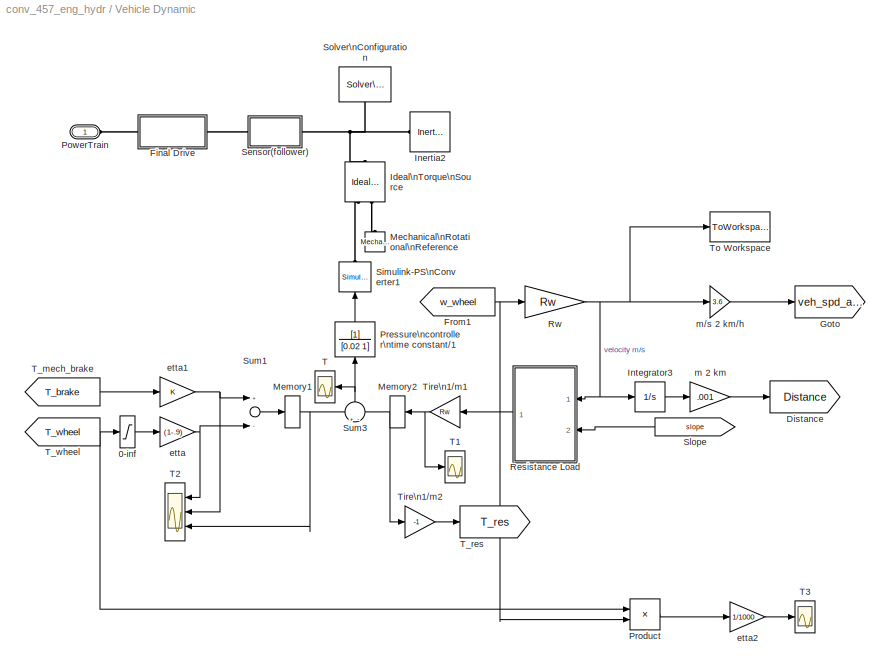
BLOCK [SubSystem] Vehicle Dynamic
  FunctionWithSeparateData = off
  MaskHideContents = off
  MinAlgLoopOccurrences = off
  Opaque = off
  Ports = [0, 0, 0, 0, 0, 1]
  PropExecContextOutsideSubsystem = off
  RTWSystemCode = Auto
  RequestExecContextInheritance = off
  SID = 390
BLOCK [Saturate] Vehicle Dynamic/0-inf
  InputPortMap = u0
  LowerLimit = eps
  Ports = [1, 1]
  SID = 391
  UpperLimit = inf
BLOCK [Goto] Vehicle Dynamic/Distance
  GotoTag = Distance
  SID = 392
  TagVisibility = global
BLOCK [SubSystem] Vehicle Dynamic/Final Drive
  FunctionWithSeparateData = off
  MaskHideContents = off
  MinAlgLoopOccurrences = off
  Opaque = off
  Ports = [0, 0, 0, 0, 0, 1, 1]
  PropExecContextOutsideSubsystem = off
  RTWSystemCode = Auto
  RequestExecContextInheritance = off
  SID = 393
BLOCK [Reference] Vehicle Dynamic/Final Drive/Simple Gear  REF=sdl_lib/Gears/Simple Gear
  ClassName = simple_gear
  ComponentPath = sdl.gears.simple_gear
  FunctionWithSeparateData = off
  GeneratePreprocessorConditionals = off
  LocalVarLogging = []
  Ports = [0, 0, 0, 0, 0, 1, 1]
  RTWMemSecDataConstants = Inherit from model
  RTWMemSecDataInternal = Inherit from model
  RTWMemSecDataParameters = Inherit from model
  RTWMemSecFuncExecute = Inherit from model
  RTWMemSecFuncInitTerm = Inherit from model
  SID = 394
  SchemaVersion = 1
  ShowPortLabels = FromPortIcon
  SourceBlock = sdl_lib/Gears/Simple Gear
  SourceType = Simple Gear
  SystemSampleTime = -1
  T_noload = 0.1
  T_noload_unit = N*m
  T_nom = 5
  T_nom_unit = N*m
  efficiency = 0.8
  efficiency_nom = 0.8
  efficiency_nom_unit = 1
  efficiency_unit = 1
  friction_model = 1
  friction_model_unit = 1
  mu_visc = [ 0 0 ]
  mu_visc_unit = N*m/(rad/s)
  ratio = fd
  ratio_unit = 1
  rotation_direction = 1
  rotation_direction_unit = 1
  w_thr = 0.01
  w_thr_unit = rad/s
BLOCK [PMIOPort] Vehicle Dynamic/Final Drive/Wheel
  Port = 2
  SID = 396
  Side = Right
BLOCK [PMIOPort] Vehicle Dynamic/Final Drive/engine
  Port = 1
  SID = 395
  Side = Left
BLOCK [From] Vehicle Dynamic/From1
  GotoTag = w_wheel
  SID = 397
  TagVisibility = global
BLOCK [Goto] Vehicle Dynamic/Goto
  GotoTag = veh_spd_act
  SID = 398
  TagVisibility = global
BLOCK [Reference] Vehicle Dynamic/Ideal\nTorque\nSource  REF=fl_lib/Mechanical/Mechanical Sources/Ideal Torque Source
  ClassName = torque
  ComponentPath = foundation.mechanical.sources.torque
  FunctionWithSeparateData = off
  GeneratePreprocessorConditionals = off
  LocalVarDescs = |w|t
  LocalVarLogging = [0 0]
  LocalVarNames = |w|t
  Ports = [0, 0, 0, 0, 0, 1, 2]
  RTWMemSecDataConstants = Inherit from model
  RTWMemSecDataInternal = Inherit from model
  RTWMemSecDataParameters = Inherit from model
  RTWMemSecFuncExecute = Inherit from model
  RTWMemSecFuncInitTerm = Inherit from model
  SID = 399
  SchemaVersion = 1
  ShowPortLabels = FromPortIcon
  SourceBlock = fl_lib/Mechanical/Mechanical Sources/Ideal Torque Source
  SourceType = Ideal Torque Source
  SystemSampleTime = -1
  t_Log = off
  w_Log = off
BLOCK [Reference] Vehicle Dynamic/Inertia2  REF=fl_lib/Mechanical/Rotational Elements/Inertia
  ClassName = inertia
  ComponentPath = foundation.mechanical.rotational.inertia
  FunctionWithSeparateData = off
  GeneratePreprocessorConditionals = off
  LocalVarDescs = |t
  LocalVarLogging = 0
  LocalVarNames = |t
  Ports = [0, 0, 0, 0, 0, 1]
  RTWMemSecDataConstants = Inherit from model
  RTWMemSecDataInternal = Inherit from model
  RTWMemSecDataParameters = Inherit from model
  RTWMemSecFuncExecute = Inherit from model
  RTWMemSecFuncInitTerm = Inherit from model
  SID = 400
  SchemaVersion = 1
  ShowPortLabels = FromPortIcon
  SourceBlock = fl_lib/Mechanical/Rotational Elements/Inertia
  SourceType = Inertia
  SystemSampleTime = -1
  inertia = I_wheel+M1_457*Rw^2
  inertia_unit = kg*m^2
  initial_velocity = 0
  initial_velocity_unit = rad/s
  t_Log = off
BLOCK [Integrator] Vehicle Dynamic/Integrator3
  Ports = [1, 1]
  SID = 401
BLOCK [Reference] Vehicle Dynamic/Mechanical\nRotational\nReference  REF=fl_lib/Mechanical/Rotational Elements/Mechanical\nRotational Reference
  ClassName = reference
  ComponentPath = foundation.mechanical.rotational.reference
  FunctionWithSeparateData = off
  GeneratePreprocessorConditionals = off
  LocalVarDescs = |t
  LocalVarLogging = 0
  LocalVarNames = |t
  Ports = [0, 0, 0, 0, 0, 1]
  RTWMemSecDataConstants = Inherit from model
  RTWMemSecDataInternal = Inherit from model
  RTWMemSecDataParameters = Inherit from model
  RTWMemSecFuncExecute = Inherit from model
  RTWMemSecFuncInitTerm = Inherit from model
  SID = 402
  SchemaVersion = 1
  ShowPortLabels = FromPortIcon
  SourceBlock = fl_lib/Mechanical/Rotational Elements/Mechanical\nRotational Reference
  SourceType = Mechanical\nRotational Reference
  SystemSampleTime = -1
  t_Log = off
BLOCK [Memory] Vehicle Dynamic/Memory1
  SID = 403
BLOCK [Memory] Vehicle Dynamic/Memory2
  SID = 404
BLOCK [PMIOPort] Vehicle Dynamic/PowerTrain
  Port = 1
  SID = 471
  Side = Left
BLOCK [TransferFcn] Vehicle Dynamic/Pressure\ncontroller\ntime constant//1
  Denominator = [0.02 1]
  SID = 405
BLOCK [Product] Vehicle Dynamic/Product
  InputSameDT = off
  OutDataTypeStr = Inherit: Inherit via internal rule
  Ports = [2, 1]
  SID = 571
  SaturateOnIntegerOverflow = off
BLOCK [SubSystem] Vehicle Dynamic/Resistance Load
  FunctionWithSeparateData = off
  MaskHideContents = off
  MinAlgLoopOccurrences = off
  Opaque = off
  Ports = [2, 1]
  PropExecContextOutsideSubsystem = off
  RTWSystemCode = Auto
  RequestExecContextInheritance = off
  SID = 406
BLOCK [SubSystem] Vehicle Dynamic/Resistance Load/Aerodynamic Force
  FunctionWithSeparateData = off
  MaskHideContents = off
  MinAlgLoopOccurrences = off
  Opaque = off
  Ports = [1, 1]
  PropExecContextOutsideSubsystem = off
  RTWSystemCode = Auto
  RequestExecContextInheritance = off
  SID = 409
BLOCK [Gain] Vehicle Dynamic/Resistance Load/Aerodynamic Force/0.5*Cd*den*Ar
  Gain = 0.5*Cd*den*Af
  SID = 411
BLOCK [Constant] Vehicle Dynamic/Resistance Load/Aerodynamic Force/Constant1
  SID = 412
  Value = 0
BLOCK [Outport] Vehicle Dynamic/Resistance Load/Aerodynamic Force/Fa
  IconDisplay = Port number
  SID = 415
BLOCK [Inport] Vehicle Dynamic/Resistance Load/Aerodynamic Force/V
  IconDisplay = Port number
  SID = 410
BLOCK [Math] Vehicle Dynamic/Resistance Load/Aerodynamic Force/V^2
  Operator = square
  Ports = [1, 1]
  SID = 413
BLOCK [Switch] Vehicle Dynamic/Resistance Load/Aerodynamic Force/check  v=0
  Criteria = u2 > Threshold
  InputSameDT = off
  SID = 414
  SaturateOnIntegerOverflow = off
BLOCK [Outport] Vehicle Dynamic/Resistance Load/Fr
  IconDisplay = Port number
  SID = 434
BLOCK [SubSystem] Vehicle Dynamic/Resistance Load/Grade Force
  FunctionWithSeparateData = off
  MaskHideContents = off
  MinAlgLoopOccurrences = off
  Opaque = off
  Ports = [2, 1]
  PropExecContextOutsideSubsystem = off
  RTWSystemCode = Auto
  RequestExecContextInheritance = off
  SID = 416
BLOCK [Constant] Vehicle Dynamic/Resistance Load/Grade Force/Constant1
  SID = 419
  Value = 0
BLOCK [Outport] Vehicle Dynamic/Resistance Load/Grade Force/Fg
  IconDisplay = Port number
  SID = 425
BLOCK [Constant] Vehicle Dynamic/Resistance Load/Grade Force/Mg
  SID = 420
  Value = M1_457*9.81
BLOCK [Product] Vehicle Dynamic/Resistance Load/Grade Force/Product
  Ports = [2, 1]
  SID = 421
BLOCK [Inport] Vehicle Dynamic/Resistance Load/Grade Force/V
  IconDisplay = Port number
  Port = 2
  SID = 418
BLOCK [Switch] Vehicle Dynamic/Resistance Load/Grade Force/check  v=0
  Criteria = u2 > Threshold
  InputSameDT = off
  SID = 422
  SaturateOnIntegerOverflow = off
BLOCK [Gain] Vehicle Dynamic/Resistance Load/Grade Force/degree 2 rad
  Gain = pi/180
  SID = 423
BLOCK [Trigonometry] Vehicle Dynamic/Resistance Load/Grade Force/sin(teta)
  Ports = [1, 1]
  SID = 424
BLOCK [Inport] Vehicle Dynamic/Resistance Load/Grade Force/slope
  IconDisplay = Port number
  SID = 417
BLOCK [SubSystem] Vehicle Dynamic/Resistance Load/Rolling Force
  FunctionWithSeparateData = off
  MaskHideContents = off
  MinAlgLoopOccurrences = off
  Opaque = off
  Ports = [1, 1]
  PropExecContextOutsideSubsystem = off
  RTWSystemCode = Auto
  RequestExecContextInheritance = off
  SID = 426
BLOCK [Constant] Vehicle Dynamic/Resistance Load/Rolling Force/Constant
  SID = 428
  Value = M1_457*9.81
BLOCK [Constant] Vehicle Dynamic/Resistance Load/Rolling Force/Constant1
  SID = 429
  Value = 0
BLOCK [Outport] Vehicle Dynamic/Resistance Load/Rolling Force/Fr
  IconDisplay = Port number
  SID = 432
BLOCK [Inport] Vehicle Dynamic/Resistance Load/Rolling Force/V
  IconDisplay = Port number
  SID = 427
BLOCK [Switch] Vehicle Dynamic/Resistance Load/Rolling Force/check  v=0
  Criteria = u2 > Threshold
  InputSameDT = off
  SID = 430
  SaturateOnIntegerOverflow = off
BLOCK [Gain] Vehicle Dynamic/Resistance Load/Rolling Force/fr
  Gain = fr
  SID = 431
BLOCK [Sum] Vehicle Dynamic/Resistance Load/Sum1
  IconShape = round
  Inputs = +++
  Ports = [3, 1]
  SID = 433
BLOCK [Inport] Vehicle Dynamic/Resistance Load/V
  IconDisplay = Port number
  SID = 407
BLOCK [Inport] Vehicle Dynamic/Resistance Load/slope
  IconDisplay = Port number
  Port = 2
  SID = 408
BLOCK [Gain] Vehicle Dynamic/Rw
  Gain = Rw
  SID = 435
BLOCK [SubSystem] Vehicle Dynamic/Sensor(follower)
  FunctionWithSeparateData = off
  MaskHideContents = off
  MinAlgLoopOccurrences = off
  Opaque = off
  Ports = [0, 0, 0, 0, 0, 1, 1]
  PropExecContextOutsideSubsystem = off
  RTWSystemCode = Auto
  RequestExecContextInheritance = off
  SID = 436
BLOCK [PMIOPort] Vehicle Dynamic/Sensor(follower)/A
  Port = 1
  SID = 451
  Side = Left
BLOCK [PMIOPort] Vehicle Dynamic/Sensor(follower)/B
  Port = 2
  SID = 452
  Side = Right
BLOCK [Display] Vehicle Dynamic/Sensor(follower)/Display
  Decimation = 1
  Lockdown = off
  Ports = [1]
  SID = 584
BLOCK [Goto] Vehicle Dynamic/Sensor(follower)/Goto
  GotoTag = w_wheel
  SID = 437
  TagVisibility = global
BLOCK [Goto] Vehicle Dynamic/Sensor(follower)/Goto1
  GotoTag = T_wheel
  SID = 438
  TagVisibility = global
BLOCK [Goto] Vehicle Dynamic/Sensor(follower)/Goto2
  GotoTag = wheel_energ
  SID = 587
  TagVisibility = global
BLOCK [Integrator] Vehicle Dynamic/Sensor(follower)/Integrator
  Ports = [1, 1]
  SID = 585
BLOCK [SubSystem] Vehicle Dynamic/Sensor(follower)/MATLAB Function
  ErrorFcn = Stateflow.Translate.translate
  FunctionWithSeparateData = off
  MaskDescription = Embedded MATLAB block
  MaskHideContents = off
  MaskIconFrame = on
  MaskIconOpaque = off
  MaskIconRotate = none
  MaskIconUnits = normalized
  MaskPortRotate = default
  MaskSelfModifiable = on
  MaskType = Stateflow
  MinAlgLoopOccurrences = off
  Opaque = off
  PermitHierarchicalResolution = ExplicitOnly
  Ports = [2, 1]
  PropExecContextOutsideSubsystem = off
  RTWSystemCode = Auto
  RequestExecContextInheritance = off
  SID = 586
  TreatAsAtomicUnit = on
BLOCK [Demux] Vehicle Dynamic/Sensor(follower)/MATLAB Function/ Demux 
  Outputs = 1
  Ports = [1, 1]
  SID = 586::15
BLOCK [S-Function] Vehicle Dynamic/Sensor(follower)/MATLAB Function/ SFunction 
  EnableBusSupport = on
  FunctionName = sf_sfun
  PortCounts = [2 2]
  Ports = [2, 2]
  SID = 586::14
  Tag = Stateflow S-Function conv_457_eng_hydr 4
BLOCK [Terminator] Vehicle Dynamic/Sensor(follower)/MATLAB Function/ Terminator 
  SID = 586::17
BLOCK [Inport] Vehicle Dynamic/Sensor(follower)/MATLAB Function/T
  IconDisplay = Port number
  SID = 586::1
BLOCK [Inport] Vehicle Dynamic/Sensor(follower)/MATLAB Function/w
  IconDisplay = Port number
  Port = 2
  SID = 586::18
BLOCK [Outport] Vehicle Dynamic/Sensor(follower)/MATLAB Function/y
  IconDisplay = Port number
  SID = 586::5
BLOCK [SubSystem] Vehicle Dynamic/Sensor(follower)/Motion sensor
  FunctionWithSeparateData = off
  MaskHideContents = off
  MinAlgLoopOccurrences = off
  Opaque = off
  Ports = [0, 1, 0, 0, 0, 1]
  PropExecContextOutsideSubsystem = off
  RTWSystemCode = Auto
  RequestExecContextInheritance = off
  SID = 439
BLOCK [PMIOPort] Vehicle Dynamic/Sensor(follower)/Motion sensor/A
  Port = 1
  SID = 443
  Side = Left
BLOCK [Reference] Vehicle Dynamic/Sensor(follower)/Motion sensor/Ideal Rotational\nMotion Sensor  REF=fl_lib/Mechanical/Mechanical Sensors/Ideal Rotational\nMotion Sensor
  ClassName = sensor_rot_motion
  ComponentPath = foundation.mechanical.sensors.angular_velocity
  FunctionWithSeparateData = off
  GeneratePreprocessorConditionals = off
  LocalVarDescs = |w|t|phi
  LocalVarLogging = []
  LocalVarNames = |w|t|phi
  Ports = [0, 0, 0, 0, 0, 1, 3]
  RTWMemSecDataConstants = Inherit from model
  RTWMemSecDataInternal = Inherit from model
  RTWMemSecDataParameters = Inherit from model
  RTWMemSecFuncExecute = Inherit from model
  RTWMemSecFuncInitTerm = Inherit from model
  SID = 440
  SchemaVersion = 1
  ShowPortLabels = FromPortIcon
  SourceBlock = fl_lib/Mechanical/Mechanical Sensors/Ideal Rotational\nMotion Sensor
  SourceType = Ideal Rotational\nMotion Sensor
  SystemSampleTime = -1
  offset = 0
  offset_unit = rad
  phi_Log = off
  t_Log = off
  w_Log = off
BLOCK [Reference] Vehicle Dynamic/Sensor(follower)/Motion sensor/MRR  REF=fl_lib/Mechanical/Rotational Elements/Mechanical\nRotational Reference
  ClassName = reference_rot
  ComponentPath = foundation.mechanical.rotational.reference
  FunctionWithSeparateData = off
  GeneratePreprocessorConditionals = off
  LocalVarDescs = |t
  LocalVarLogging = []
  LocalVarNames = |t
  Ports = [0, 0, 0, 0, 0, 1]
  RTWMemSecDataConstants = Inherit from model
  RTWMemSecDataInternal = Inherit from model
  RTWMemSecDataParameters = Inherit from model
  RTWMemSecFuncExecute = Inherit from model
  RTWMemSecFuncInitTerm = Inherit from model
  SID = 441
  SchemaVersion = 1
  ShowPortLabels = FromPortIcon
  SourceBlock = fl_lib/Mechanical/Rotational Elements/Mechanical\nRotational Reference
  SourceType = Mechanical\nRotational Reference
  SystemSampleTime = -1
  t_Log = off
BLOCK [Reference] Vehicle Dynamic/Sensor(follower)/Motion sensor/PS-Simulink\nConverter  REF=nesl_utility/PS-Simulink\nConverter
  AffineConversion = off
  FunctionWithSeparateData = off
  GeneratePreprocessorConditionals = off
  LeftPortType = input
  PhysicalDomain = network_engine_domain
  Ports = [0, 1, 0, 0, 0, 1]
  RTWMemSecDataConstants = Inherit from model
  RTWMemSecDataInternal = Inherit from model
  RTWMemSecDataParameters = Inherit from model
  RTWMemSecFuncExecute = Inherit from model
  RTWMemSecFuncInitTerm = Inherit from model
  RightPortType = output
  SID = 442
  ShowPortLabels = none
  SourceBlock = nesl_utility/PS-Simulink\nConverter
  SourceType = PS-Simulink\nConverter
  SubClassName = ps_output
  SystemSampleTime = -1
  Unit = rad/s
BLOCK [Outport] Vehicle Dynamic/Sensor(follower)/Motion sensor/W
  IconDisplay = Port number
  SID = 444
BLOCK [SubSystem] Vehicle Dynamic/Sensor(follower)/Torque sensor
  FunctionWithSeparateData = off
  MaskHideContents = off
  MinAlgLoopOccurrences = off
  Opaque = off
  Ports = [0, 1, 0, 0, 0, 1, 1]
  PropExecContextOutsideSubsystem = off
  RTWSystemCode = Auto
  RequestExecContextInheritance = off
  SID = 445
BLOCK [PMIOPort] Vehicle Dynamic/Sensor(follower)/Torque sensor/A
  Port = 2
  SID = 449
  Side = Left
BLOCK [PMIOPort] Vehicle Dynamic/Sensor(follower)/Torque sensor/B
  Port = 1
  SID = 448
  Side = Right
BLOCK [Reference] Vehicle Dynamic/Sensor(follower)/Torque sensor/PS2S  REF=nesl_utility/PS-Simulink\nConverter
  AffineConversion = off
  FunctionWithSeparateData = off
  GeneratePreprocessorConditionals = off
  LeftPortType = input
  PhysicalDomain = network_engine_domain
  Ports = [0, 1, 0, 0, 0, 1]
  RTWMemSecDataConstants = Inherit from model
  RTWMemSecDataInternal = Inherit from model
  RTWMemSecDataParameters = Inherit from model
  RTWMemSecFuncExecute = Inherit from model
  RTWMemSecFuncInitTerm = Inherit from model
  RightPortType = output
  SID = 446
  ShowPortLabels = none
  SourceBlock = nesl_utility/PS-Simulink\nConverter
  SourceType = PS-Simulink\nConverter
  SubClassName = ps_output
  SystemSampleTime = -1
  Unit = 1
BLOCK [Outport] Vehicle Dynamic/Sensor(follower)/Torque sensor/T
  IconDisplay = Port number
  SID = 450
BLOCK [Reference] Vehicle Dynamic/Sensor(follower)/Torque sensor/Torque\nSensor  REF=fl_lib/Mechanical/Mechanical Sensors/Ideal Torque Sensor
  ClassName = sensor_torque
  ComponentPath = foundation.mechanical.sensors.torque
  FunctionWithSeparateData = off
  GeneratePreprocessorConditionals = off
  LocalVarDescs = |w|t
  LocalVarLogging = []
  LocalVarNames = |w|t
  Ports = [0, 0, 0, 0, 0, 1, 2]
  RTWMemSecDataConstants = Inherit from model
  RTWMemSecDataInternal = Inherit from model
  RTWMemSecDataParameters = Inherit from model
  RTWMemSecFuncExecute = Inherit from model
  RTWMemSecFuncInitTerm = Inherit from model
  SID = 447
  SchemaVersion = 1
  ShowPortLabels = FromPortIcon
  SourceBlock = fl_lib/Mechanical/Mechanical Sensors/Ideal Torque Sensor
  SourceType = Ideal Torque Sensor
  SystemSampleTime = -1
  t_Log = off
  w_Log = off
BLOCK [Reference] Vehicle Dynamic/Simulink-PS\nConverter1  REF=nesl_utility/Simulink-PS\nConverter
  AffineConversion = off
  FunctionWithSeparateData = off
  GeneratePreprocessorConditionals = off
  InputFilterTimeConstant = 0.01
  LeftPortType = input
  PhysicalDomain = network_engine_domain
  Ports = [1, 0, 0, 0, 0, 0, 1]
  RTWMemSecDataConstants = Inherit from model
  RTWMemSecDataInternal = Inherit from model
  RTWMemSecDataParameters = Inherit from model
  RTWMemSecFuncExecute = Inherit from model
  RTWMemSecFuncInitTerm = Inherit from model
  RightPortType = output
  SID = 453
  ShowPortLabels = FromPortIcon
  SourceBlock = nesl_utility/Simulink-PS\nConverter
  SourceType = Simulink-PS\nConverter
  SubClassName = ps_input
  SystemSampleTime = -1
  UdotUserProvided = 0
  Unit = N*m
BLOCK [From] Vehicle Dynamic/Slope
  GotoTag = slope
  SID = 454
  TagVisibility = global
BLOCK [Reference] Vehicle Dynamic/Solver\nConfiguration  REF=nesl_utility/Solver\nConfiguration
  Accelerate = off
  DoDC = on
  DoFixedCost = on
  FunctionWithSeparateData = off
  GeneratePreprocessorConditionals = off
  LeftPortType = input
  LinearAlgebra = Sparse
  LocalSolverChoice = NE_BACKWARD_EULER_ADVANCER
  LocalSolverSampleTime = .01
  MaxModeIter = 2
  MaxNonlinIter = 5
  PhysicalDomain = network_engine_domain
  Ports = [0, 0, 0, 0, 0, 0, 1]
  Profile = off
  RTWMemSecDataConstants = Inherit from model
  RTWMemSecDataInternal = Inherit from model
  RTWMemSecDataParameters = Inherit from model
  RTWMemSecFuncExecute = Inherit from model
  RTWMemSecFuncInitTerm = Inherit from model
  ResidualTolerance = 1e-9
  RightPortType = generic
  SID = 455
  ShowPortLabels = FromPortIcon
  SourceBlock = nesl_utility/Solver\nConfiguration
  SourceType = Solver\nConfiguration
  SubClassName = solver
  SystemSampleTime = -1
  UseLocalSampling = off
  UseLocalSolver = on
BLOCK [Sum] Vehicle Dynamic/Sum1
  Inputs = +-
  Ports = [2, 1]
  SID = 456
BLOCK [Sum] Vehicle Dynamic/Sum3
  IconShape = round
  Inputs = +-
  Ports = [2, 1]
  SID = 457
BLOCK [Scope] Vehicle Dynamic/T
  DataFormat = StructureWithTime
  Floating = off
  LimitDataPoints = off
  NumInputPorts = 1
  Ports = [1]
  SID = 458
  SampleTime = 0
  SaveName = ScopeData4
  YMax = 500
  YMin = -7500
  ZoomMode = yonly
BLOCK [Scope] Vehicle Dynamic/T1
  DataFormat = StructureWithTime
  Floating = off
  LimitDataPoints = off
  NumInputPorts = 1
  Ports = [1]
  SID = 459
  SampleTime = 0
  SaveName = ScopeData12
  ZoomMode = yonly
BLOCK [Scope] Vehicle Dynamic/T2
  DataFormat = StructureWithTime
  Floating = off
  LimitDataPoints = off
  NumInputPorts = 3
  Ports = [3]
  SID = 460
  SampleTime = 0
  SaveName = ScopeData15
  YMax = 1400~1~100
  YMin = -100~-1~-1400
BLOCK [Scope] Vehicle Dynamic/T3
  DataFormat = StructureWithTime
  Floating = off
  LimitDataPoints = off
  NumInputPorts = 1
  Ports = [1]
  SID = 573
  SampleTime = 0
  SaveName = ScopeData5
  YMax = 220
  YMin = 90
  ZoomMode = yonly
BLOCK [From] Vehicle Dynamic/T_mech_brake
  GotoTag = T_brake
  SID = 461
  TagVisibility = global
BLOCK [Goto] Vehicle Dynamic/T_res
  GotoTag = T_res
  SID = 462
  TagVisibility = global
BLOCK [From] Vehicle Dynamic/T_wheel
  GotoTag = T_wheel
  SID = 463
  TagVisibility = global
BLOCK [Gain] Vehicle Dynamic/Tire\n1//m1
  Gain = Rw
  SID = 464
BLOCK [Gain] Vehicle Dynamic/Tire\n1//m2
  Gain = -1
  SID = 465
BLOCK [ToWorkspace] Vehicle Dynamic/To Workspace
  MaxDataPoints = inf
  Ports = [1]
  SID = 466
  SampleTime = -1
  SaveFormat = Structure With Time
  VariableName = ali_dist
BLOCK [Gain] Vehicle Dynamic/etta
  Gain = (1-.9)
  OutDataTypeStr = Inherit: Inherit via internal rule
  ParamDataTypeStr = Inherit: Inherit via internal rule
  SID = 467
  SaturateOnIntegerOverflow = off
BLOCK [Gain] Vehicle Dynamic/etta1
  OutDataTypeStr = Inherit: Inherit via internal rule
  ParamDataTypeStr = Inherit: Inherit via internal rule
  SID = 468
  SaturateOnIntegerOverflow = off
BLOCK [Gain] Vehicle Dynamic/etta2
  Gain = 1/1000
  OutDataTypeStr = Inherit: Inherit via internal rule
  ParamDataTypeStr = Inherit: Inherit via internal rule
  SID = 572
  SaturateOnIntegerOverflow = off
BLOCK [Gain] Vehicle Dynamic/m 2 km
  Gain = .001
  OutDataTypeStr = Inherit: Inherit via internal rule
  ParamDataTypeStr = Inherit: Inherit via internal rule
  SID = 469
  SaturateOnIntegerOverflow = off
BLOCK [Gain] Vehicle Dynamic/m//s 2 km//h
  Gain = 3.6
  OutDataTypeStr = Inherit: Inherit via internal rule
  ParamDataTypeStr = Inherit: Inherit via internal rule
  SID = 470
  SaturateOnIntegerOverflow = off
BLOCK [FromWorkspace] drive cycle
  OutputAfterFinalValue = Holding final value
  SID = 472
  SampleTime = 0
  VariableName = collector_a_b
BLOCK [SubSystem] driver
  FunctionWithSeparateData = off
  MaskHideContents = off
  MinAlgLoopOccurrences = on
  Opaque = off
  Ports = [2, 2]
  PropExecContextOutsideSubsystem = off
  RTWSystemCode = Auto
  RequestExecContextInheritance = off
  SID = 473
BLOCK [Saturate] driver/0 to inf1
  InputPortMap = u0
  LowerLimit = 0
  Ports = [1, 1]
  SID = 476
  UpperLimit = inf
BLOCK [Saturate] driver/0 to inf2
  InputPortMap = u0
  LowerLimit = 0
  Ports = [1, 1]
  SID = 477
  UpperLimit = inf
BLOCK [SubSystem] driver/Chart
  ErrorFcn = Stateflow.Translate.translate
  FunctionWithSeparateData = off
  MaskDescription = Stateflow diagram
  MaskDisplay = plot(sf('Private','sfblk','xIcon'),sf('Private','sfblk','yIcon'));text(0.5,0,sf('Private', 'sfblk', 'tIcon'),'HorizontalAl','Center','VerticalAl','Bottom');
  MaskHideContents = off
  MaskIconFrame = off
  MaskIconOpaque = off
  MaskIconRotate = none
  MaskIconUnits = autoscale
  MaskPortRotate = default
  MaskSelfModifiable = on
  MaskType = Stateflow
  MinAlgLoopOccurrences = off
  Opaque = off
  PermitHierarchicalResolution = ExplicitOnly
  Ports = [2, 1]
  PropExecContextOutsideSubsystem = off
  RTWSystemCode = Auto
  RequestExecContextInheritance = off
  SID = 478
  TreatAsAtomicUnit = on
BLOCK [Demux] driver/Chart/ Demux 
  Outputs = 1
  Ports = [1, 1]
  SID = 478::8
BLOCK [S-Function] driver/Chart/ SFunction 
  EnableBusSupport = on
  FunctionName = sf_sfun
  PortCounts = [2 2]
  Ports = [2, 2]
  SID = 478::7
  Tag = Stateflow S-Function conv_457_eng_hydr 1
BLOCK [Terminator] driver/Chart/ Terminator 
  SID = 478::10
BLOCK [Inport] driver/Chart/cyc
  IconDisplay = Port number
  SID = 478::1
BLOCK [Outport] driver/Chart/s
  IconDisplay = Port number
  SID = 478::6
BLOCK [Inport] driver/Chart/speed
  IconDisplay = Port number
  Port = 2
  SID = 478::2
BLOCK [Derivative] driver/Derivative
  SID = 479
BLOCK [Inport] driver/Drive Cycle
  IconDisplay = Port number
  SID = 474
BLOCK [SubSystem] driver/Driver
  FunctionWithSeparateData = off
  MaskHideContents = off
  MinAlgLoopOccurrences = off
  Opaque = off
  Ports = [2, 1]
  PropExecContextOutsideSubsystem = off
  RTWSystemCode = Auto
  RequestExecContextInheritance = off
  SID = 480
BLOCK [Derivative] driver/Driver/Derivative
  SID = 483
BLOCK [Inport] driver/Driver/Error
  IconDisplay = Port number
  SID = 481
BLOCK [Gain] driver/Driver/Gain
  Gain = 100
  OutDataTypeStr = Inherit: Inherit via internal rule
  ParamDataTypeStr = Inherit: Inherit via internal rule
  SID = 484
  SaturateOnIntegerOverflow = off
BLOCK [Gain] driver/Driver/Gain1
  Gain = 2
  OutDataTypeStr = Inherit: Inherit via internal rule
  ParamDataTypeStr = Inherit: Inherit via internal rule
  SID = 485
  SaturateOnIntegerOverflow = off
BLOCK [Gain] driver/Driver/Gain2
  Gain = 0.5
  OutDataTypeStr = Inherit: Inherit via internal rule
  ParamDataTypeStr = Inherit: Inherit via internal rule
  SID = 486
  SaturateOnIntegerOverflow = off
BLOCK [Gain] driver/Driver/Gain3
  Gain = 0
  OutDataTypeStr = Inherit: Inherit via internal rule
  ParamDataTypeStr = Inherit: Inherit via internal rule
  SID = 487
  SaturateOnIntegerOverflow = off
BLOCK [Integrator] driver/Driver/Integrator
  ExternalReset = falling
  Ports = [2, 1]
  SID = 488
BLOCK [Scope] driver/Driver/Scope
  DataFormat = StructureWithTime
  Floating = off
  NumInputPorts = 4
  Ports = [4]
  SID = 489
  SampleTime = 0
  SaveName = ScopeData3
  YMax = 1~-5000~-5500~800
  YMin = -1~-8000~-8000~-900
BLOCK [Sum] driver/Driver/Sum
  IconShape = round
  InputSameDT = off
  Inputs = +++
  OutDataTypeStr = Inherit: Inherit via internal rule
  Ports = [3, 1]
  RndMeth = Nearest
  SID = 490
BLOCK [Outport] driver/Driver/T_dem
  IconDisplay = Port number
  SID = 491
BLOCK [Inport] driver/Driver/V_spd
  IconDisplay = Port number
  Port = 2
  SID = 482
BLOCK [Goto] driver/Goto
  GotoTag = trans_state
  SID = 492
  TagVisibility = global
BLOCK [Goto] driver/Goto1
  GotoTag = driver_speed
  SID = 493
  TagVisibility = global
BLOCK [Goto] driver/Goto2
  GotoTag = driver_torque
  SID = 494
  TagVisibility = global
BLOCK [Mux] driver/Mux
  DisplayOption = bar
  Inputs = 2
  Ports = [2, 1]
  SID = 495
BLOCK [SubSystem] driver/Subsystem
  FunctionWithSeparateData = off
  MaskHideContents = off
  MinAlgLoopOccurrences = off
  Opaque = off
  Ports = [1, 2]
  PropExecContextOutsideSubsystem = off
  RTWSystemCode = Auto
  RequestExecContextInheritance = off
  SID = 496
BLOCK [Inport] driver/Subsystem/T_dem
  IconDisplay = Port number
  SID = 497
BLOCK [Saturate] driver/Subsystem/T_neg
  InputPortMap = u0
  LowerLimit = -100
  Ports = [1, 1]
  SID = 498
  UpperLimit = 0
  ZeroCross = off
BLOCK [Saturate] driver/Subsystem/T_pos
  InputPortMap = u0
  LowerLimit = 0
  Ports = [1, 1]
  SID = 499
  UpperLimit = 100
  ZeroCross = off
BLOCK [Outport] driver/Subsystem/acc_pedal(%)
  IconDisplay = Port number
  SID = 503
BLOCK [Outport] driver/Subsystem/brake_pedal(%)
  IconDisplay = Port number
  Port = 2
  SID = 504
BLOCK [Gain] driver/Subsystem/convert T to\nacc. pedal
  Gain = 100/T_max_457
  OutDataTypeStr = Inherit: Inherit via internal rule
  ParamDataTypeStr = Inherit: Inherit via internal rule
  SID = 500
  SaturateOnIntegerOverflow = off
BLOCK [Gain] driver/Subsystem/convert T to\nbrake pedal
  Gain = 100/T_min
  OutDataTypeStr = Inherit: Inherit via internal rule
  ParamDataTypeStr = Inherit: Inherit via internal rule
  SID = 501
  SaturateOnIntegerOverflow = off
BLOCK [Gain] driver/Subsystem/covert T to\nbrake pedal1
  Gain = -1
  OutDataTypeStr = Inherit: Inherit via internal rule
  ParamDataTypeStr = Inherit: Inherit via internal rule
  SID = 502
  SaturateOnIntegerOverflow = off
BLOCK [Sum] driver/Sum
  IconShape = round
  InputSameDT = off
  Inputs = |+-
  OutDataTypeStr = Inherit: Inherit via internal rule
  Ports = [2, 1]
  SID = 505
  SaturateOnIntegerOverflow = off
BLOCK [Scope] driver/T
  DataFormat = StructureWithTime
  Floating = off
  LimitDataPoints = off
  NumInputPorts = 1
  Ports = [1]
  SID = 506
  SampleTime = 0
  SaveName = ScopeData20
  ZoomMode = yonly
BLOCK [Outport] driver/acc_pedal(%)
  IconDisplay = Port number
  SID = 544
BLOCK [Outport] driver/brake_pedal(%)
  IconDisplay = Port number
  Port = 2
  SID = 545
BLOCK [Scope] driver/driver
  DataFormat = StructureWithTime
  Floating = off
  LimitDataPoints = off
  MaxDataPoints = 50000000
  NumInputPorts = 4
  Ports = [4]
  SID = 507
  SampleTime = 0
  SaveName = ScopeData2
  YMax = 13~14~2.25~600
  YMin = 0~0~-1.25~-300
  ZoomMode = yonly
BLOCK [SubSystem] driver/error
  FunctionWithSeparateData = off
  MaskHideContents = off
  MinAlgLoopOccurrences = off
  Opaque = off
  Ports = [2]
  PropExecContextOutsideSubsystem = off
  RTWSystemCode = Auto
  RequestExecContextInheritance = off
  SID = 508
BLOCK [Abs] driver/error/Abs
  SID = 511
  SaturateOnIntegerOverflow = off
BLOCK [Abs] driver/error/Abs1
  SID = 512
  SaturateOnIntegerOverflow = off
BLOCK [Abs] driver/error/Abs2
  SID = 513
  SaturateOnIntegerOverflow = off
BLOCK [Constant] driver/error/Constant
  SID = 514
  Value = 0
BLOCK [Constant] driver/error/Constant1
  SID = 515
  Value = 0
BLOCK [Constant] driver/error/Constant2
  SID = 516
  Value = 0
BLOCK [Constant] driver/error/Constant3
  SID = 517
  Value = 0
BLOCK [Constant] driver/error/Constant4
  SID = 518
  Value = 0
BLOCK [Gain] driver/error/Gain
  Gain = -1
  OutDataTypeStr = Inherit: Inherit via internal rule
  ParamDataTypeStr = Inherit: Inherit via internal rule
  SID = 519
  SaturateOnIntegerOverflow = off
BLOCK [Gain] driver/error/Gain1
  Gain = -1
  OutDataTypeStr = Inherit: Inherit via internal rule
  ParamDataTypeStr = Inherit: Inherit via internal rule
  SID = 520
  SaturateOnIntegerOverflow = off
BLOCK [Gain] driver/error/Gain2
  Gain = -1
  OutDataTypeStr = Inherit: Inherit via internal rule
  ParamDataTypeStr = Inherit: Inherit via internal rule
  SID = 521
  SaturateOnIntegerOverflow = off
BLOCK [Gain] driver/error/Gain3
  Gain = -1
  OutDataTypeStr = Inherit: Inherit via internal rule
  ParamDataTypeStr = Inherit: Inherit via internal rule
  SID = 522
  SaturateOnIntegerOverflow = off
BLOCK [Integrator] driver/error/Integrator
  Ports = [1, 1]
  SID = 523
BLOCK [Integrator] driver/error/Integrator1
  Ports = [1, 1]
  SID = 524
BLOCK [Integrator] driver/error/Integrator2
  Ports = [1, 1]
  SID = 525
BLOCK [Integrator] driver/error/Integrator3
  Ports = [1, 1]
  SID = 526
BLOCK [Integrator] driver/error/Integrator4
  Ports = [1, 1]
  SID = 527
BLOCK [Integrator] driver/error/Integrator5
  Ports = [1, 1]
  SID = 528
BLOCK [Integrator] driver/error/Integrator6
  Ports = [1, 1]
  SID = 529
BLOCK [Integrator] driver/error/Integrator7
  Ports = [1, 1]
  SID = 530
BLOCK [Integrator] driver/error/Integrator8
  Ports = [1, 1]
  SID = 531
BLOCK [Switch] driver/error/Switch
  InputSameDT = off
  SID = 532
  SaturateOnIntegerOverflow = off
BLOCK [Switch] driver/error/Switch1
  InputSameDT = off
  SID = 533
  SaturateOnIntegerOverflow = off
BLOCK [Switch] driver/error/Switch2
  InputSameDT = off
  SID = 534
  SaturateOnIntegerOverflow = off
BLOCK [Switch] driver/error/Switch3
  InputSameDT = off
  SID = 535
  SaturateOnIntegerOverflow = off
BLOCK [Switch] driver/error/Switch4
  InputSameDT = off
  SID = 536
  SaturateOnIntegerOverflow = off
BLOCK [Switch] driver/error/Switch5
  InputSameDT = off
  SID = 537
  SaturateOnIntegerOverflow = off
BLOCK [Switch] driver/error/Switch6
  InputSameDT = off
  SID = 538
  SaturateOnIntegerOverflow = off
BLOCK [Switch] driver/error/Switch7
  InputSameDT = off
  SID = 539
  SaturateOnIntegerOverflow = off
BLOCK [Inport] driver/error/acceleration
  IconDisplay = Port number
  Port = 2
  SID = 510
BLOCK [Inport] driver/error/error
  IconDisplay = Port number
  SID = 509
BLOCK [Scope] driver/error/error a<0
  DataFormat = StructureWithTime
  Floating = off
  MaxDataPoints = 50000000
  NumInputPorts = 3
  Ports = [3]
  SID = 540
  SampleTime = 0
  SaveName = ScopeData14
  TimeRange = 1800
  YMax = 73~15.25~90
  YMin = 51~12~62.5
  ZoomMode = yonly
BLOCK [Scope] driver/error/error a>=0
  DataFormat = StructureWithTime
  Floating = off
  MaxDataPoints = 50000000
  NumInputPorts = 3
  Ports = [3]
  SID = 541
  SampleTime = 0
  SaveName = ScopeData13
  TimeRange = 1800
  YMax = 2~6.5~8.5
  YMin = 0~0~0
  ZoomMode = yonly
BLOCK [Scope] driver/error/error1
  DataFormat = StructureWithTime
  Floating = off
  LimitDataPoints = off
  MaxDataPoints = 50000000
  NumInputPorts = 9
  Ports = [9]
  SID = 542
  SampleTime = 0
  SaveName = ScopeData19
  TimeRange = 1800
  YMax = 4~7.5~10~3~1~4~0.75~5~7.5
  YMin = 0~0~0~0~0~0~0~0~0
  ZoomMode = yonly
BLOCK [Scope] driver/error/total error
  DataFormat = StructureWithTime
  Floating = off
  MaxDataPoints = 50000000
  NumInputPorts = 3
  Ports = [3]
  SID = 543
  SampleTime = 0
  SaveName = ScopeData16
  TimeRange = 1800
  YMax = 73~15.25~90
  YMin = 51~12~62.5
  ZoomMode = yonly
BLOCK [Inport] driver/veh_spd_act
  IconDisplay = Port number
  Port = 2
  SID = 475
BLOCK [SubSystem] scopes
  FunctionWithSeparateData = off
  MaskHideContents = off
  MinAlgLoopOccurrences = off
  Opaque = off
  Ports = []
  PropExecContextOutsideSubsystem = off
  RTWSystemCode = Auto
  RequestExecContextInheritance = off
  SID = 546
  ShowPortLabels = none
BLOCK [Display] scopes/Display
  Decimation = 1
  Lockdown = off
  Ports = [1]
  SID = 547
BLOCK [Scope] scopes/Scope
  DataFormat = StructureWithTime
  Floating = off
  LimitDataPoints = off
  NumInputPorts = 3
  Ports = [3]
  SID = 548
  SampleTime = 0
  SaveName = engine_scope
  SaveToWorkspace = on
  YMax = -20100~6209.95~1155
  YMin = -21500~6209.91~1045
  ZoomMode = xonly
BLOCK [Scope] scopes/Scope1
  DataFormat = StructureWithTime
  Floating = off
  LimitDataPoints = off
  NumInputPorts = 2
  Ports = [2]
  SID = 549
  SampleTime = 0
  SaveName = gearbox_scope
  SaveToWorkspace = on
  YMax = 5~5
  YMin = -5~-5
  ZoomMode = yonly
BLOCK [Scope] scopes/Scope2
  DataFormat = StructureWithTime
  Floating = off
  LimitDataPoints = off
  NumInputPorts = 3
  Ports = [3]
  SID = 550
  SampleTime = 0
  SaveName = driver_scope
  SaveToWorkspace = on
  TimeRange = 600
  YMax = 184~27.5~1100
  YMin = 168~0~-400
  ZoomMode = yonly
BLOCK [Scope] scopes/Scope3
  DataFormat = StructureWithTime
  Floating = off
  LimitDataPoints = off
  NumInputPorts = 3
  Ports = [3]
  SID = 551
  SampleTime = 0
  SaveName = consumption_scope
  SaveToWorkspace = on
  YMax = 5~5~5
  YMin = -5~-5~-5
  ZoomMode = xonly
BLOCK [Scope] scopes/Scope4
  DataFormat = StructureWithTime
  Floating = off
  LimitDataPoints = off
  NumInputPorts = 2
  Ports = [2]
  SID = 552
  SampleTime = 0
  SaveName = torqueconvertor_scope
  SaveToWorkspace = on
  YMax = 5~5
  YMin = -5~-5
  ZoomMode = yonly
BLOCK [From] scopes/T_eng
  GotoTag = T_eng
  SID = 553
  TagVisibility = global
BLOCK [From] scopes/T_eng1
  GotoTag = T_GB_out
  SID = 554
  TagVisibility = global
BLOCK [From] scopes/T_eng10
  GotoTag = w_TC_out
  SID = 555
  TagVisibility = global
BLOCK [From] scopes/T_eng11
  GotoTag = driver_torque
  SID = 556
  TagVisibility = global
BLOCK [From] scopes/T_eng2
  GotoTag = w_GB_out
  SID = 557
  TagVisibility = global
BLOCK [From] scopes/T_eng3
  GotoTag = cons_LitP100km
  SID = 558
  TagVisibility = global
BLOCK [From] scopes/T_eng4
  GotoTag = driver_speed
  SID = 559
  TagVisibility = global
BLOCK [From] scopes/T_eng5
  GotoTag = T_out_idle_cotl
  SID = 560
  TagVisibility = global
BLOCK [From] scopes/T_eng6
  GotoTag = driving_consumption
  SID = 561
  TagVisibility = global
BLOCK [From] scopes/T_eng7
  GotoTag = idle_consumption
  SID = 562
  TagVisibility = global
BLOCK [From] scopes/T_eng8
  GotoTag = total_consumption
  SID = 563
  TagVisibility = global
BLOCK [From] scopes/T_eng9
  GotoTag = T_TC_out
  SID = 564
  TagVisibility = global
BLOCK [From] scopes/w_eng2
  GotoTag = w_eng
  SID = 565
  TagVisibility = global
BLOCK [Constant] slope
  SID = 566
  Value = 0
ANNOTATION Transmission1/Torque Convertor: Not: motoring mode is neglected
ANNOTATION Transmission1/Torque Convertor/main solver/Torque generation: Not motoring mode is neglected
ANNOTATION Transmission1/Torque Convertor/main solver/Torque generation: TORQUE CONVERTER
ANNOTATION Transmission1/gear box: Not: gear shift delay is not considered
ANNOTATION Vehicle Dynamic/Resistance Load: Fg
ANNOTATION Vehicle Dynamic/Resistance Load/Aerodynamic Force: Fa
ANNOTATION Vehicle Dynamic/Resistance Load/Aerodynamic Force: Fr
ANNOTATION Vehicle Dynamic/Resistance Load/Grade Force: Fr
ANNOTATION Vehicle Dynamic/Resistance Load/Rolling Force: Fr
LINE Aux. Load Power (kW):1 -> Aux_Load:1
LINE Constant:1 -> Engine2:2
LINE Engine2/Aux Load:1 -> Engine2/eng_torq_estimator:4
NET Engine2/Consumption Calc (nmap)1/1:1 -> Engine2/Consumption Calc (nmap)1/Product1:2, Engine2/Consumption Calc (nmap)1/cons3:3
LINE Engine2/Consumption Calc (nmap)1/Divide1:1 -> Engine2/Consumption Calc (nmap)1/g 2 liter1:1
NET Engine2/Consumption Calc (nmap)1/Divide2:1 -> Engine2/Consumption Calc (nmap)1/Goto2:1, Engine2/Consumption Calc (nmap)1/Scope1:2, Engine2/Consumption Calc (nmap)1/Sum:2
LINE Engine2/Consumption Calc (nmap)1/Divide4:1 -> Engine2/Consumption Calc (nmap)1/Integrator:1
LINE Engine2/Consumption Calc (nmap)1/Gain2:1 -> Engine2/Consumption Calc (nmap)1/Product1:1
NET Engine2/Consumption Calc (nmap)1/Gain3:1 -> Engine2/Consumption Calc (nmap)1/ICE1:1, Engine2/Consumption Calc (nmap)1/To Workspace1:1, Engine2/Consumption Calc (nmap)1/cons3:2, Engine2/Consumption Calc (nmap)1/sfc corrector:3
LINE Engine2/Consumption Calc (nmap)1/ICE1:1 -> Engine2/Consumption Calc (nmap)1/sfc corrector:1
LINE Engine2/Consumption Calc (nmap)1/Integrator:1 -> Engine2/Consumption Calc (nmap)1/g2lit:1
LINE Engine2/Consumption Calc (nmap)1/Product1:1 -> Engine2/Consumption Calc (nmap)1/Gain3:1
NET Engine2/Consumption Calc (nmap)1/Sum:1 -> Engine2/Consumption Calc (nmap)1/Divide4:1, Engine2/Consumption Calc (nmap)1/Goto1:1, Engine2/Consumption Calc (nmap)1/Scope1:1
LINE Engine2/Consumption Calc (nmap)1/T_eng:1 -> Engine2/Consumption Calc (nmap)1/1:1
NET Engine2/Consumption Calc (nmap)1/acc pedal:1 -> Engine2/Consumption Calc (nmap)1/check pedal:2, Engine2/Consumption Calc (nmap)1/idel cons:2
NET Engine2/Consumption Calc (nmap)1/check pedal:1 -> Engine2/Consumption Calc (nmap)1/Divide2:1, Engine2/Consumption Calc (nmap)1/cons2:1
LINE Engine2/Consumption Calc (nmap)1/distance:1 -> Engine2/Consumption Calc (nmap)1/solve devide \nby zero problem:1
NET Engine2/Consumption Calc (nmap)1/g 2 liter1:1 -> Engine2/Consumption Calc (nmap)1/cons1:3, Engine2/Consumption Calc (nmap)1/cons\nlit//100km1:1
NET Engine2/Consumption Calc (nmap)1/g2lit:1 -> Engine2/Consumption Calc (nmap)1/Divide1:1, Engine2/Consumption Calc (nmap)1/cons1:1
LINE Engine2/Consumption Calc (nmap)1/hour2\nsecond1:1 -> Engine2/Consumption Calc (nmap)1/check pedal:3
LINE Engine2/Consumption Calc (nmap)1/hour2\nsecond2:1 -> Engine2/Consumption Calc (nmap)1/check pedal:1
LINE Engine2/Consumption Calc (nmap)1/hour2\nsecond3:1 -> Engine2/Consumption Calc (nmap)1/idel cons:3
LINE Engine2/Consumption Calc (nmap)1/hour2\nsecond4:1 -> Engine2/Consumption Calc (nmap)1/idel cons:1
LINE Engine2/Consumption Calc (nmap)1/hour2\nsecond:1 -> Engine2/Consumption Calc (nmap)1/Divide4:2
NET Engine2/Consumption Calc (nmap)1/idel cons:1 -> Engine2/Consumption Calc (nmap)1/Goto:1, Engine2/Consumption Calc (nmap)1/Scope2:1, Engine2/Consumption Calc (nmap)1/Sum:1
NET Engine2/Consumption Calc (nmap)1/on//off:1 -> Engine2/Consumption Calc (nmap)1/Divide2:2, Engine2/Consumption Calc (nmap)1/cons2:2
NET Engine2/Consumption Calc (nmap)1/sfc corrector/Constant1:1 -> Engine2/Consumption Calc (nmap)1/sfc corrector/Sum1:1, Engine2/Consumption Calc (nmap)1/sfc corrector/Sum:2
NET Engine2/Consumption Calc (nmap)1/sfc corrector/Constant:1 -> Engine2/Consumption Calc (nmap)1/sfc corrector/Sum1:2, Engine2/Consumption Calc (nmap)1/sfc corrector/Sum2:2
LINE Engine2/Consumption Calc (nmap)1/sfc corrector/Gain1:1 -> Engine2/Consumption Calc (nmap)1/sfc corrector/Product1:1
NET Engine2/Consumption Calc (nmap)1/sfc corrector/Gain2:1 -> Engine2/Consumption Calc (nmap)1/sfc corrector/Product2:1, Engine2/Consumption Calc (nmap)1/sfc corrector/Scope2:2
LINE Engine2/Consumption Calc (nmap)1/sfc corrector/Gain:1 -> Engine2/Consumption Calc (nmap)1/sfc corrector/Product:1
LINE Engine2/Consumption Calc (nmap)1/sfc corrector/Product1:1 -> Engine2/Consumption Calc (nmap)1/sfc corrector/Product3:2
NET Engine2/Consumption Calc (nmap)1/sfc corrector/Product2:1 -> Engine2/Consumption Calc (nmap)1/sfc corrector/Scope1:1, Engine2/Consumption Calc (nmap)1/sfc corrector/Sum3:1
NET Engine2/Consumption Calc (nmap)1/sfc corrector/Product3:1 -> Engine2/Consumption Calc (nmap)1/sfc corrector/Scope1:2, Engine2/Consumption Calc (nmap)1/sfc corrector/Sum3:2
LINE Engine2/Consumption Calc (nmap)1/sfc corrector/Product:1 -> Engine2/Consumption Calc (nmap)1/sfc corrector/Product2:2
NET Engine2/Consumption Calc (nmap)1/sfc corrector/Sum1:1 -> Engine2/Consumption Calc (nmap)1/sfc corrector/Product1:2, Engine2/Consumption Calc (nmap)1/sfc corrector/Product:2
LINE Engine2/Consumption Calc (nmap)1/sfc corrector/Sum2:1 -> Engine2/Consumption Calc (nmap)1/sfc corrector/Gain1:1
NET Engine2/Consumption Calc (nmap)1/sfc corrector/Sum3:1 -> Engine2/Consumption Calc (nmap)1/sfc corrector/Scope:2, Engine2/Consumption Calc (nmap)1/sfc corrector/Switch:3
LINE Engine2/Consumption Calc (nmap)1/sfc corrector/Sum:1 -> Engine2/Consumption Calc (nmap)1/sfc corrector/Gain:1
LINE Engine2/Consumption Calc (nmap)1/sfc corrector/Switch:1 -> Engine2/Consumption Calc (nmap)1/sfc corrector/cons(kg//h):1
LINE Engine2/Consumption Calc (nmap)1/sfc corrector/eng_pow(kw):1 -> Engine2/Consumption Calc (nmap)1/sfc corrector/sec_eng_sfc_map (906):1
NET Engine2/Consumption Calc (nmap)1/sfc corrector/eng_spd(rpm):1 -> Engine2/Consumption Calc (nmap)1/sfc corrector/Sum2:1, Engine2/Consumption Calc (nmap)1/sfc corrector/Sum:1, Engine2/Consumption Calc (nmap)1/sfc corrector/Switch:2
NET Engine2/Consumption Calc (nmap)1/sfc corrector/main map:1 -> Engine2/Consumption Calc (nmap)1/sfc corrector/Product3:1, Engine2/Consumption Calc (nmap)1/sfc corrector/Scope:1, Engine2/Consumption Calc (nmap)1/sfc corrector/Switch:1
NET Engine2/Consumption Calc (nmap)1/sfc corrector/sec_eng_sfc_map (906):1 -> Engine2/Consumption Calc (nmap)1/sfc corrector/Gain2:1, Engine2/Consumption Calc (nmap)1/sfc corrector/Scope2:1
NET Engine2/Consumption Calc (nmap)1/sfc corrector:1 -> Engine2/Consumption Calc (nmap)1/Scope3:1, Engine2/Consumption Calc (nmap)1/solve devide \nby zero problem1:1
NET Engine2/Consumption Calc (nmap)1/solve devide \nby zero problem1:1 -> Engine2/Consumption Calc (nmap)1/Divide2:3, Engine2/Consumption Calc (nmap)1/cons2:3
NET Engine2/Consumption Calc (nmap)1/solve devide \nby zero problem:1 -> Engine2/Consumption Calc (nmap)1/Divide1:2, Engine2/Consumption Calc (nmap)1/cons1:2
NET Engine2/Consumption Calc (nmap)1/w_eng (rpm):1 -> Engine2/Consumption Calc (nmap)1/Gain2:1, Engine2/Consumption Calc (nmap)1/ICE1:2, Engine2/Consumption Calc (nmap)1/To Workspace:1, Engine2/Consumption Calc (nmap)1/cons3:1, Engine2/Consumption Calc (nmap)1/sfc corrector:2
LINE Engine2/Consumption Calc (nmap)1:1 -> Engine2/cons\nlit//100km:1
LINE Engine2/Distance (km)1:1 -> Engine2/Consumption Calc (nmap)1:5
LINE Engine2/Distance (km):1 -> Engine2/Consumption Calc (nmap)1:2
LINE Engine2/Engine Block/Memory:1 -> Engine2/Engine Block/Simulink-PS\nConverter:1
LINE Engine2/Engine Block/eng_trq:1 -> Engine2/Engine Block/Memory:1
NET Engine2/Sensor(eng)/Integrator:1 -> Engine2/Sensor(eng)/Display:1, Engine2/Sensor(eng)/Goto2:1
LINE Engine2/Sensor(eng)/MATLAB Function/ Demux :1 -> Engine2/Sensor(eng)/MATLAB Function/ Terminator :1
LINE Engine2/Sensor(eng)/MATLAB Function/ SFunction :1 -> Engine2/Sensor(eng)/MATLAB Function/ Demux :1
LINE Engine2/Sensor(eng)/MATLAB Function/ SFunction :2 -> Engine2/Sensor(eng)/MATLAB Function/y:1
LINE Engine2/Sensor(eng)/MATLAB Function/T:1 -> Engine2/Sensor(eng)/MATLAB Function/ SFunction :1
LINE Engine2/Sensor(eng)/MATLAB Function/w:1 -> Engine2/Sensor(eng)/MATLAB Function/ SFunction :2
LINE Engine2/Sensor(eng)/MATLAB Function:1 -> Engine2/Sensor(eng)/Integrator:1
LINE Engine2/Sensor(eng)/Motion sensor/PS-Simulink\nConverter:1 -> Engine2/Sensor(eng)/Motion sensor/W:1
NET Engine2/Sensor(eng)/Motion sensor:1 -> Engine2/Sensor(eng)/Goto:1, Engine2/Sensor(eng)/MATLAB Function:2
LINE Engine2/Sensor(eng)/Torque sensor/PS2S:1 -> Engine2/Sensor(eng)/Torque sensor/T:1
NET Engine2/Sensor(eng)/Torque sensor:1 -> Engine2/Sensor(eng)/Goto1:1, Engine2/Sensor(eng)/MATLAB Function:1
LINE Engine2/T_eng (Nm):1 -> Engine2/idle speed control:3
NET Engine2/eng_on//off:1 -> Engine2/Consumption Calc (nmap)1:3, Engine2/idle speed control:1
NET Engine2/eng_torq_estimator/0 to inf1:1 -> Engine2/eng_torq_estimator/Min:2, Engine2/eng_torq_estimator/Scope2:2
NET Engine2/eng_torq_estimator/0 to inf2:1 -> Engine2/eng_torq_estimator/MATLAB Function:2, Engine2/eng_torq_estimator/Product:2
NET Engine2/eng_torq_estimator/0 to inf3:1 -> Engine2/eng_torq_estimator/Gain:1, Engine2/eng_torq_estimator/Overload Torque (Nm)1:1, Engine2/eng_torq_estimator/PeakTorque - 457(Nm):1, Engine2/eng_torq_estimator/Scope1:2, Engine2/eng_torq_estimator/Scope2:3, Engine2/eng_torq_estimator/Switch1:2, Engine2/eng_torq_estimator/check max speed:2
LINE Engine2/eng_torq_estimator/0 to inf4:1 -> Engine2/eng_torq_estimator/Min:1
NET Engine2/eng_torq_estimator/0 to inf5:1 -> Engine2/eng_torq_estimator/Scope1:3, Engine2/eng_torq_estimator/check max speed:3
LINE Engine2/eng_torq_estimator/Aux Load:1 -> Engine2/eng_torq_estimator/Product:1
LINE Engine2/eng_torq_estimator/Gain1:1 -> Engine2/eng_torq_estimator/Switch1:1
LINE Engine2/eng_torq_estimator/Gain:1 -> Engine2/eng_torq_estimator/0 to inf2:1
NET Engine2/eng_torq_estimator/Integrator:1 -> Engine2/eng_torq_estimator/Display:1, Engine2/eng_torq_estimator/Goto2:1
LINE Engine2/eng_torq_estimator/MATLAB Function/ Demux :1 -> Engine2/eng_torq_estimator/MATLAB Function/ Terminator :1
LINE Engine2/eng_torq_estimator/MATLAB Function/ SFunction :1 -> Engine2/eng_torq_estimator/MATLAB Function/ Demux :1
LINE Engine2/eng_torq_estimator/MATLAB Function/ SFunction :2 -> Engine2/eng_torq_estimator/MATLAB Function/y:1
LINE Engine2/eng_torq_estimator/MATLAB Function/T:1 -> Engine2/eng_torq_estimator/MATLAB Function/ SFunction :1
LINE Engine2/eng_torq_estimator/MATLAB Function/w:1 -> Engine2/eng_torq_estimator/MATLAB Function/ SFunction :2
LINE Engine2/eng_torq_estimator/MATLAB Function:1 -> Engine2/eng_torq_estimator/Integrator:1
NET Engine2/eng_torq_estimator/Memory:1 -> Engine2/eng_torq_estimator/Aux_Trq:1, Engine2/eng_torq_estimator/Sum:2
LINE Engine2/eng_torq_estimator/Min:1 -> Engine2/eng_torq_estimator/0 to inf5:1
NET Engine2/eng_torq_estimator/Overload Torque (Nm)1:1 -> Engine2/eng_torq_estimator/Scope1:1, Engine2/eng_torq_estimator/check max speed:1
NET Engine2/eng_torq_estimator/PeakTorque - 457(Nm):1 -> Engine2/eng_torq_estimator/0 to inf4:1, Engine2/eng_torq_estimator/Scope2:1
LINE Engine2/eng_torq_estimator/Product:1 -> Engine2/eng_torq_estimator/Gain1:1
LINE Engine2/eng_torq_estimator/Sum:1 -> Engine2/eng_torq_estimator/0 to inf1:1
NET Engine2/eng_torq_estimator/Switch1:1 -> Engine2/eng_torq_estimator/MATLAB Function:1, Engine2/eng_torq_estimator/Memory:1
NET Engine2/eng_torq_estimator/Switch:1 -> Engine2/eng_torq_estimator/Scope:2, Engine2/eng_torq_estimator/eng_trq_out (Nm):1
NET Engine2/eng_torq_estimator/check max speed:1 -> Engine2/eng_torq_estimator/Scope:1, Engine2/eng_torq_estimator/Switch:1, Engine2/eng_torq_estimator/Switch:2, Engine2/eng_torq_estimator/eng_trq_out (Nm) to consump:1
LINE Engine2/eng_torq_estimator/eng_spd (rpm):1 -> Engine2/eng_torq_estimator/0 to inf3:1
LINE Engine2/eng_torq_estimator/eng_trq_in:1 -> Engine2/eng_torq_estimator/Sum:1
LINE Engine2/eng_torq_estimator/slope1:1 -> Engine2/eng_torq_estimator/Switch:3
LINE Engine2/eng_torq_estimator/slope:1 -> Engine2/eng_torq_estimator/Switch1:3
LINE Engine2/eng_torq_estimator:1 -> Engine2/Consumption Calc (nmap)1:4
LINE Engine2/eng_torq_estimator:2 -> Engine2/Engine Block:1
NET Engine2/engine drag power/0 to inf2:1 -> Engine2/engine drag power/Gain:1, Engine2/engine drag power/engine_drag_power (kw):1
LINE Engine2/engine drag power/Constant:1 -> Engine2/engine drag power/T_eng_drag (Nm):3
NET Engine2/engine drag power/Gain1:1 -> Engine2/engine drag power/Scope:3, Engine2/engine drag power/T_eng_drag (Nm):2
NET Engine2/engine drag power/Gain:1 -> Engine2/engine drag power/Scope:2, Engine2/engine drag power/T_eng_drag (Nm):1
NET Engine2/engine drag power/T_eng_drag (Nm):1 -> Engine2/engine drag power/Scope:1, Engine2/engine drag power/drag torque ( Nm):1
LINE Engine2/engine drag power/eng_spd(rpm):1 -> Engine2/engine drag power/0 to inf2:1
LINE Engine2/engine drag power/engine_drag_power (kw):1 -> Engine2/engine drag power/Gain1:1
LINE Engine2/engine drag power/no engine drag ( if we want ):1 -> Engine2/engine drag power/T_eng_drag (Nm):4
LINE Engine2/engine drag power:1 -> Engine2/eng_torq_estimator:3
LINE Engine2/idle speed control/1-D Lookup\nTable:1 -> Engine2/idle speed control/Product1:2
LINE Engine2/idle speed control/Manual Switch:1 -> Engine2/idle speed control/Product3:2
LINE Engine2/idle speed control/Product1:1 -> Engine2/idle speed control/Saturation:1
NET Engine2/idle speed control/Product2:1 -> Engine2/idle speed control/Goto:1, Engine2/idle speed control/Product1:1
NET Engine2/idle speed control/Product3:1 -> Engine2/idle speed control/Scope:1, Engine2/idle speed control/T_eng + Idle:1
LINE Engine2/idle speed control/Saturation:1 -> Engine2/idle speed control/Sum:2
LINE Engine2/idle speed control/Sum1:1 -> Engine2/idle speed control/1-D Lookup\nTable:1
NET Engine2/idle speed control/Sum:1 -> Engine2/idle speed control/Product3:1, Engine2/idle speed control/Scope:2
NET Engine2/idle speed control/T_eng:1 -> Engine2/idle speed control/Scope:3, Engine2/idle speed control/Sum:1, Engine2/idle speed control/check idle P:2
LINE Engine2/idle speed control/check idle P:1 -> Engine2/idle speed control/Product2:1
LINE Engine2/idle speed control/check idle spd:1 -> Engine2/idle speed control/Product2:2
LINE Engine2/idle speed control/hour2\nsecond1:1 -> Engine2/idle speed control/check idle P:3
LINE Engine2/idle speed control/hour2\nsecond2:1 -> Engine2/idle speed control/check idle spd:3
LINE Engine2/idle speed control/hour2\nsecond3:1 -> Engine2/idle speed control/check idle spd:1
LINE Engine2/idle speed control/hour2\nsecond4:1 -> Engine2/idle speed control/Sum1:2
LINE Engine2/idle speed control/hour2\nsecond5:1 -> Engine2/idle speed control/Manual Switch:2
LINE Engine2/idle speed control/hour2\nsecond:1 -> Engine2/idle speed control/check idle P:1
LINE Engine2/idle speed control/on:1 -> Engine2/idle speed control/Manual Switch:1
NET Engine2/idle speed control/spd:1 -> Engine2/idle speed control/Sum1:1, Engine2/idle speed control/check idle spd:2
NET Engine2/idle speed control:1 -> Engine2/T idle speed control:1, Engine2/eng_torq_estimator:2
LINE Engine2/rasps2rpm1:1 -> Engine2/eng_torq_estimator:1
NET Engine2/rasps2rpm2:1 -> Engine2/engine drag power:1, Engine2/idle speed control:2
LINE Engine2/rasps2rpm:1 -> Engine2/Consumption Calc (nmap)1:1
LINE Engine2/w_eng1:1 -> Engine2/rasps2rpm1:1
LINE Engine2/w_eng2:1 -> Engine2/rasps2rpm2:1
LINE Engine2/w_eng:1 -> Engine2/rasps2rpm:1
LINE Pedal Characteristic/Constant1:1 -> Pedal Characteristic/retarder step one activation:3
LINE Pedal Characteristic/Constant2:1 -> Pedal Characteristic/retarder step one activation:1
LINE Pedal Characteristic/Gain:1 -> Pedal Characteristic/T_brake:1
NET Pedal Characteristic/acc_pedal:1 -> Pedal Characteristic/Scope:1, Pedal Characteristic/convert T to\nacc. pedal:1, Pedal Characteristic/retarder step one activation:2
LINE Pedal Characteristic/brake_pedal:1 -> Pedal Characteristic/convert T to\nbrake pedal:1
NET Pedal Characteristic/convert T to\nacc. pedal:1 -> Pedal Characteristic/Scope:2, Pedal Characteristic/T_ref:1
NET Pedal Characteristic/convert T to\nbrake pedal:1 -> Pedal Characteristic/Gain:1, Pedal Characteristic/Scope:3
LINE Pedal Characteristic:1 -> Goto:1
LINE Pedal Characteristic:2 -> Engine2:1
LINE Signal Builder1/Demux:1 -> Signal Builder1/Signal 1:1
LINE Signal Builder1/FromWs:1 -> Signal Builder1/Demux:1
LINE Slope1:1 -> driver:2
LINE Slope2:1 -> Display:1
LINE Slope3:1 -> Display1:1
LINE Slope4:1 -> Display2:1
LINE Transmission1/Gain:1 -> Transmission1/transmission control:1
LINE Transmission1/Sensor(GB_out)/Motion sensor/PS-Simulink\nConverter:1 -> Transmission1/Sensor(GB_out)/Motion sensor/W:1
LINE Transmission1/Sensor(GB_out)/Motion sensor:1 -> Transmission1/Sensor(GB_out)/Goto:1
LINE Transmission1/Sensor(GB_out)/Torque sensor/PS2S:1 -> Transmission1/Sensor(GB_out)/Torque sensor/T:1
LINE Transmission1/Sensor(GB_out)/Torque sensor:1 -> Transmission1/Sensor(GB_out)/Goto1:1
LINE Transmission1/Sensor(TC_GB)/Motion sensor/PS-Simulink\nConverter:1 -> Transmission1/Sensor(TC_GB)/Motion sensor/W:1
LINE Transmission1/Sensor(TC_GB)/Motion sensor:1 -> Transmission1/Sensor(TC_GB)/Goto:1
LINE Transmission1/Sensor(TC_GB)/Torque sensor/PS2S:1 -> Transmission1/Sensor(TC_GB)/Torque sensor/T:1
LINE Transmission1/Sensor(TC_GB)/Torque sensor:1 -> Transmission1/Sensor(TC_GB)/Goto1:1
LINE Transmission1/Torque Convertor/Clutch \nActuator:1 -> Transmission1/Torque Convertor/Gain:1
LINE Transmission1/Torque Convertor/Gain:1 -> Transmission1/Torque Convertor/ :1
LINE Transmission1/Torque Convertor/lock up cluch:1 -> Transmission1/Torque Convertor/Clutch \nActuator:1
LINE Transmission1/Torque Convertor/main solver/Add:1 -> Transmission1/Torque Convertor/main solver/Simulink-PS\nConverter2:1
LINE Transmission1/Torque Convertor/main solver/Sensor(TC_in)/Motion sensor/PS-Simulink\nConverter:1 -> Transmission1/Torque Convertor/main solver/Sensor(TC_in)/Motion sensor/W:1
LINE Transmission1/Torque Convertor/main solver/Sensor(TC_in)/Motion sensor:1 -> Transmission1/Torque Convertor/main solver/Sensor(TC_in)/Goto:1
LINE Transmission1/Torque Convertor/main solver/Sensor(TC_in)/Torque sensor/PS2S:1 -> Transmission1/Torque Convertor/main solver/Sensor(TC_in)/Torque sensor/T:1
LINE Transmission1/Torque Convertor/main solver/Sensor(TC_in)/Torque sensor:1 -> Transmission1/Torque Convertor/main solver/Sensor(TC_in)/Goto1:1
LINE Transmission1/Torque Convertor/main solver/Sensor(TC_out)/Motion sensor/PS-Simulink\nConverter:1 -> Transmission1/Torque Convertor/main solver/Sensor(TC_out)/Motion sensor/W:1
LINE Transmission1/Torque Convertor/main solver/Sensor(TC_out)/Motion sensor:1 -> Transmission1/Torque Convertor/main solver/Sensor(TC_out)/Goto:1
LINE Transmission1/Torque Convertor/main solver/Sensor(TC_out)/Torque sensor/PS2S:1 -> Transmission1/Torque Convertor/main solver/Sensor(TC_out)/Torque sensor/T:1
LINE Transmission1/Torque Convertor/main solver/Sensor(TC_out)/Torque sensor:1 -> Transmission1/Torque Convertor/main solver/Sensor(TC_out)/Goto1:1
LINE Transmission1/Torque Convertor/main solver/Torque generation/4:1 -> Transmission1/Torque Convertor/main solver/Torque generation/Math\nFunction1:1
LINE Transmission1/Torque Convertor/main solver/Torque generation/Constant1:1 -> Transmission1/Torque Convertor/main solver/Torque generation/check turb spd=0:3
LINE Transmission1/Torque Convertor/main solver/Torque generation/Constant2:1 -> Transmission1/Torque Convertor/main solver/Torque generation/MinMax2:2
LINE Transmission1/Torque Convertor/main solver/Torque generation/Constant6:1 -> Transmission1/Torque Convertor/main solver/Torque generation/check turb spd=0:1
LINE Transmission1/Torque Convertor/main solver/Torque generation/Gain1:1 -> Transmission1/Torque Convertor/main solver/Torque generation/Memory1:1
NET Transmission1/Torque Convertor/main solver/Torque generation/Impeller speed (rad//s):1 -> Transmission1/Torque Convertor/main solver/Torque generation/MinMax2:1, Transmission1/Torque Convertor/main solver/Torque generation/check pump spd=0:2, Transmission1/Torque Convertor/main solver/Torque generation/rad//s 2 rpm:1
LINE Transmission1/Torque Convertor/main solver/Torque generation/Math\nFunction1:1 -> Transmission1/Torque Convertor/main solver/Torque generation/T_i:2
LINE Transmission1/Torque Convertor/main solver/Torque generation/Memory1:1 -> Transmission1/Torque Convertor/main solver/Torque generation/Impeller torque:1
LINE Transmission1/Torque Convertor/main solver/Torque generation/Memory:1 -> Transmission1/Torque Convertor/main solver/Torque generation/Turbine torque:1
LINE Transmission1/Torque Convertor/main solver/Torque generation/MinMax2:1 -> Transmission1/Torque Convertor/main solver/Torque generation/speed\nratio:1
LINE Transmission1/Torque Convertor/main solver/Torque generation/Mu:1 -> Transmission1/Torque Convertor/main solver/Torque generation/T_t:1
LINE Transmission1/Torque Convertor/main solver/Torque generation/Ref_spd (rpm):1 -> Transmission1/Torque Convertor/main solver/Torque generation/4:1
NET Transmission1/Torque Convertor/main solver/Torque generation/T_i:1 -> Transmission1/Torque Convertor/main solver/Torque generation/Gain1:1, Transmission1/Torque Convertor/main solver/Torque generation/T_t:2
LINE Transmission1/Torque Convertor/main solver/Torque generation/T_t:1 -> Transmission1/Torque Convertor/main solver/Torque generation/Memory:1
NET Transmission1/Torque Convertor/main solver/Torque generation/Turbine speed (rad//s):1 -> Transmission1/Torque Convertor/main solver/Torque generation/check turb spd=0:2, Transmission1/Torque Convertor/main solver/Torque generation/speed\nratio:2
NET Transmission1/Torque Convertor/main solver/Torque generation/check pump spd=0:1 -> Transmission1/Torque Convertor/main solver/Torque generation/Mu:1, Transmission1/Torque Convertor/main solver/Torque generation/pump T:1
LINE Transmission1/Torque Convertor/main solver/Torque generation/check turb spd=0:1 -> Transmission1/Torque Convertor/main solver/Torque generation/check pump spd=0:3
LINE Transmission1/Torque Convertor/main solver/Torque generation/pump T:1 -> Transmission1/Torque Convertor/main solver/Torque generation/T_i:1
LINE Transmission1/Torque Convertor/main solver/Torque generation/rad//s 2 rpm:1 -> Transmission1/Torque Convertor/main solver/Torque generation/4:2
LINE Transmission1/Torque Convertor/main solver/Torque generation/speed\nratio:1 -> Transmission1/Torque Convertor/main solver/Torque generation/check pump spd=0:1
NET Transmission1/Torque Convertor/main solver/Torque generation:1 -> Transmission1/Torque Convertor/main solver/Simulink-PS\nConverter1:1, Transmission1/Torque Convertor/main solver/Turbine torque:1
LINE Transmission1/Torque Convertor/main solver/Torque generation:2 -> Transmission1/Torque Convertor/main solver/Add:1
LINE Transmission1/Torque Convertor/main solver/w_TC_in1:1 -> Transmission1/Torque Convertor/main solver/Add:2
LINE Transmission1/Torque Convertor/main solver/w_TC_in:1 -> Transmission1/Torque Convertor/main solver/Torque generation:2
LINE Transmission1/Torque Convertor/main solver/w_TC_out:1 -> Transmission1/Torque Convertor/main solver/Torque generation:1
LINE Transmission1/Torque Convertor/main solver:1 -> Transmission1/Torque Convertor/T:1
LINE Transmission1/Torque Convertor:1 -> Transmission1/T:1
LINE Transmission1/gear box/Clutch \nActuator:1 -> Transmission1/gear box/Gain:1
LINE Transmission1/gear box/Gain1:1 -> Transmission1/gear box/1-D Lookup\nTable:1
LINE Transmission1/gear box/Gain:1 -> Transmission1/gear box/ :1
LINE Transmission1/gear box/control input (gear no.):1 -> Transmission1/gear box/gear box:1
LINE Transmission1/gear box/gear box/Clutch Control/1:1 -> Transmission1/gear box/gear box/Clutch Control/Add:2
LINE Transmission1/gear box/gear box/Clutch Control/2:1 -> Transmission1/gear box/gear box/Clutch Control/Add1:2
LINE Transmission1/gear box/gear box/Clutch Control/3:1 -> Transmission1/gear box/gear box/Clutch Control/Add2:2
LINE Transmission1/gear box/gear box/Clutch Control/4:1 -> Transmission1/gear box/gear box/Clutch Control/Add3:2
LINE Transmission1/gear box/gear box/Clutch Control/Add1:1 -> Transmission1/gear box/gear box/Clutch Control/selector2:2
LINE Transmission1/gear box/gear box/Clutch Control/Add2:1 -> Transmission1/gear box/gear box/Clutch Control/selector3:2
LINE Transmission1/gear box/gear box/Clutch Control/Add3:1 -> Transmission1/gear box/gear box/Clutch Control/selector4:2
LINE Transmission1/gear box/gear box/Clutch Control/Add:1 -> Transmission1/gear box/gear box/Clutch Control/selector1:2
LINE Transmission1/gear box/gear box/Clutch Control/Enabled\nSubsystem1/Clutch A\nActuator:1 -> Transmission1/gear box/gear box/Clutch Control/Enabled\nSubsystem1/clutch release:1
LINE Transmission1/gear box/gear box/Clutch Control/Enabled\nSubsystem1/engage:1 -> Transmission1/gear box/gear box/Clutch Control/Enabled\nSubsystem1/Clutch A\nActuator:1
LINE Transmission1/gear box/gear box/Clutch Control/Enabled\nSubsystem1:1 -> Transmission1/gear box/gear box/Clutch Control/Mux2:1
LINE Transmission1/gear box/gear box/Clutch Control/Enabled\nSubsystem2/Clutch A\nActuator:1 -> Transmission1/gear box/gear box/Clutch Control/Enabled\nSubsystem2/clutch release:1
LINE Transmission1/gear box/gear box/Clutch Control/Enabled\nSubsystem2/engage:1 -> Transmission1/gear box/gear box/Clutch Control/Enabled\nSubsystem2/Clutch A\nActuator:1
LINE Transmission1/gear box/gear box/Clutch Control/Enabled\nSubsystem2:1 -> Transmission1/gear box/gear box/Clutch Control/Mux2:2
LINE Transmission1/gear box/gear box/Clutch Control/Enabled\nSubsystem3/Clutch A\nActuator:1 -> Transmission1/gear box/gear box/Clutch Control/Enabled\nSubsystem3/clutch release:1
LINE Transmission1/gear box/gear box/Clutch Control/Enabled\nSubsystem3/engage:1 -> Transmission1/gear box/gear box/Clutch Control/Enabled\nSubsystem3/Clutch A\nActuator:1
LINE Transmission1/gear box/gear box/Clutch Control/Enabled\nSubsystem3:1 -> Transmission1/gear box/gear box/Clutch Control/Mux2:3
LINE Transmission1/gear box/gear box/Clutch Control/Enabled\nSubsystem4/Clutch A\nActuator:1 -> Transmission1/gear box/gear box/Clutch Control/Enabled\nSubsystem4/clutch release:1
LINE Transmission1/gear box/gear box/Clutch Control/Enabled\nSubsystem4/engage:1 -> Transmission1/gear box/gear box/Clutch Control/Enabled\nSubsystem4/Clutch A\nActuator:1
LINE Transmission1/gear box/gear box/Clutch Control/Enabled\nSubsystem4:1 -> Transmission1/gear box/gear box/Clutch Control/Mux2:4
LINE Transmission1/gear box/gear box/Clutch Control/From1:1 -> Transmission1/gear box/gear box/Clutch Control/selector1:1
LINE Transmission1/gear box/gear box/Clutch Control/From2:1 -> Transmission1/gear box/gear box/Clutch Control/selector2:3
LINE Transmission1/gear box/gear box/Clutch Control/From3:1 -> Transmission1/gear box/gear box/Clutch Control/selector2:1
LINE Transmission1/gear box/gear box/Clutch Control/From4:1 -> Transmission1/gear box/gear box/Clutch Control/selector3:3
LINE Transmission1/gear box/gear box/Clutch Control/From5:1 -> Transmission1/gear box/gear box/Clutch Control/selector3:1
LINE Transmission1/gear box/gear box/Clutch Control/From6:1 -> Transmission1/gear box/gear box/Clutch Control/selector4:3
LINE Transmission1/gear box/gear box/Clutch Control/From7:1 -> Transmission1/gear box/gear box/Clutch Control/selector4:1
LINE Transmission1/gear box/gear box/Clutch Control/From:1 -> Transmission1/gear box/gear box/Clutch Control/selector1:3
LINE Transmission1/gear box/gear box/Clutch Control/Mux2:1 -> Transmission1/gear box/gear box/Clutch Control/Clutches:1
NET Transmission1/gear box/gear box/Clutch Control/control:1 -> Transmission1/gear box/gear box/Clutch Control/Add1:1, Transmission1/gear box/gear box/Clutch Control/Add2:1, Transmission1/gear box/gear box/Clutch Control/Add3:1, Transmission1/gear box/gear box/Clutch Control/Add:1
LINE Transmission1/gear box/gear box/Clutch Control/disengahe:1 -> Transmission1/gear box/gear box/Clutch Control/Goot1:1
LINE Transmission1/gear box/gear box/Clutch Control/engage:1 -> Transmission1/gear box/gear box/Clutch Control/Goot:1
LINE Transmission1/gear box/gear box/Clutch Control/selector1:1 -> Transmission1/gear box/gear box/Clutch Control/Enabled\nSubsystem1:enable
LINE Transmission1/gear box/gear box/Clutch Control/selector2:1 -> Transmission1/gear box/gear box/Clutch Control/Enabled\nSubsystem2:enable
LINE Transmission1/gear box/gear box/Clutch Control/selector3:1 -> Transmission1/gear box/gear box/Clutch Control/Enabled\nSubsystem3:enable
LINE Transmission1/gear box/gear box/Clutch Control/selector4:1 -> Transmission1/gear box/gear box/Clutch Control/Enabled\nSubsystem4:enable
LINE Transmission1/gear box/gear box/Clutch Control:1 -> Transmission1/gear box/gear box/Demux:1
LINE Transmission1/gear box/gear box/Clutch \nActuator1:1 -> Transmission1/gear box/gear box/Gain1:1
LINE Transmission1/gear box/gear box/Clutch \nActuator2:1 -> Transmission1/gear box/gear box/Gain2:1
LINE Transmission1/gear box/gear box/Clutch \nActuator3:1 -> Transmission1/gear box/gear box/Gain3:1
LINE Transmission1/gear box/gear box/Clutch \nActuator:1 -> Transmission1/gear box/gear box/Gain:1
LINE Transmission1/gear box/gear box/Demux:1 -> Transmission1/gear box/gear box/Goto2:1
LINE Transmission1/gear box/gear box/Demux:2 -> Transmission1/gear box/gear box/Goto1:1
LINE Transmission1/gear box/gear box/Demux:3 -> Transmission1/gear box/gear box/Goto3:1
LINE Transmission1/gear box/gear box/Demux:4 -> Transmission1/gear box/gear box/Goto4:1
LINE Transmission1/gear box/gear box/From1:1 -> Transmission1/gear box/gear box/Clutch \nActuator1:1
LINE Transmission1/gear box/gear box/From2:1 -> Transmission1/gear box/gear box/Clutch \nActuator:1
LINE Transmission1/gear box/gear box/From3:1 -> Transmission1/gear box/gear box/Clutch \nActuator2:1
LINE Transmission1/gear box/gear box/From4:1 -> Transmission1/gear box/gear box/Clutch \nActuator3:1
LINE Transmission1/gear box/gear box/Gain1:1 -> Transmission1/gear box/gear box/ 1:1
LINE Transmission1/gear box/gear box/Gain2:1 -> Transmission1/gear box/gear box/ 2:1
LINE Transmission1/gear box/gear box/Gain3:1 -> Transmission1/gear box/gear box/ 3:1
LINE Transmission1/gear box/gear box/Gain:1 -> Transmission1/gear box/gear box/ :1
LINE Transmission1/gear box/gear box/control signal:1 -> Transmission1/gear box/gear box/Clutch Control:1
NET Transmission1/gear box/neutral:1 -> Transmission1/gear box/Clutch \nActuator:1, Transmission1/gear box/T:1
LINE Transmission1/gear box/w_eng:1 -> Transmission1/gear box/Gain1:1
LINE Transmission1/transmission control/Chart1/ Demux :1 -> Transmission1/transmission control/Chart1/ Terminator :1
LINE Transmission1/transmission control/Chart1/ SFunction :1 -> Transmission1/transmission control/Chart1/ Demux :1
LINE Transmission1/transmission control/Chart1/ SFunction :2 -> Transmission1/transmission control/Chart1/gear:1
LINE Transmission1/transmission control/Chart1/ SFunction :3 -> Transmission1/transmission control/Chart1/TC:1
LINE Transmission1/transmission control/Chart1/speed:1 -> Transmission1/transmission control/Chart1/ SFunction :1
NET Transmission1/transmission control/Chart1:1 -> Transmission1/transmission control/control indictor:1, Transmission1/transmission control/desired gear:1
NET Transmission1/transmission control/Chart1:2 -> Transmission1/transmission control/control indictor:2, Transmission1/transmission control/lock up cluch:1
NET Transmission1/transmission control/eng spd (rpm):1 -> Transmission1/transmission control/Chart1:1, Transmission1/transmission control/engine speed:1, Transmission1/transmission control/gear shift:1
LINE Transmission1/transmission control/gear shift:1 -> Transmission1/transmission control/control indictor1:1
NET Transmission1/transmission control:1 -> Transmission1/Goto:1, Transmission1/Torque Convertor:1
NET Transmission1/transmission control:2 -> Transmission1/Goto1:1, Transmission1/gear box:1
LINE Transmission1/w_eng:1 -> Transmission1/Gain:1
LINE Vehicle Dynamic/0-inf:1 -> Vehicle Dynamic/etta:1
NET Vehicle Dynamic/From1:1 -> Vehicle Dynamic/Product:2, Vehicle Dynamic/Rw:1
LINE Vehicle Dynamic/Integrator3:1 -> Vehicle Dynamic/m 2 km:1
NET Vehicle Dynamic/Memory1:1 -> Vehicle Dynamic/Sum3:1, Vehicle Dynamic/T2:3
NET Vehicle Dynamic/Memory2:1 -> Vehicle Dynamic/Sum3:2, Vehicle Dynamic/Tire\n1//m2:1
LINE Vehicle Dynamic/Pressure\ncontroller\ntime constant//1:1 -> Vehicle Dynamic/Simulink-PS\nConverter1:1
LINE Vehicle Dynamic/Product:1 -> Vehicle Dynamic/etta2:1
LINE Vehicle Dynamic/Resistance Load/Aerodynamic Force/0.5*Cd*den*Ar:1 -> Vehicle Dynamic/Resistance Load/Aerodynamic Force/check  v=0:1
LINE Vehicle Dynamic/Resistance Load/Aerodynamic Force/Constant1:1 -> Vehicle Dynamic/Resistance Load/Aerodynamic Force/check  v=0:3
NET Vehicle Dynamic/Resistance Load/Aerodynamic Force/V:1 -> Vehicle Dynamic/Resistance Load/Aerodynamic Force/V^2:1, Vehicle Dynamic/Resistance Load/Aerodynamic Force/check  v=0:2
LINE Vehicle Dynamic/Resistance Load/Aerodynamic Force/V^2:1 -> Vehicle Dynamic/Resistance Load/Aerodynamic Force/0.5*Cd*den*Ar:1
LINE Vehicle Dynamic/Resistance Load/Aerodynamic Force/check  v=0:1 -> Vehicle Dynamic/Resistance Load/Aerodynamic Force/Fa:1
LINE Vehicle Dynamic/Resistance Load/Aerodynamic Force:1 -> Vehicle Dynamic/Resistance Load/Sum1:1
LINE Vehicle Dynamic/Resistance Load/Grade Force/Constant1:1 -> Vehicle Dynamic/Resistance Load/Grade Force/check  v=0:3
LINE Vehicle Dynamic/Resistance Load/Grade Force/Mg:1 -> Vehicle Dynamic/Resistance Load/Grade Force/Product:1
LINE Vehicle Dynamic/Resistance Load/Grade Force/Product:1 -> Vehicle Dynamic/Resistance Load/Grade Force/check  v=0:1
LINE Vehicle Dynamic/Resistance Load/Grade Force/V:1 -> Vehicle Dynamic/Resistance Load/Grade Force/check  v=0:2
LINE Vehicle Dynamic/Resistance Load/Grade Force/check  v=0:1 -> Vehicle Dynamic/Resistance Load/Grade Force/Fg:1
LINE Vehicle Dynamic/Resistance Load/Grade Force/degree 2 rad:1 -> Vehicle Dynamic/Resistance Load/Grade Force/sin(teta):1
LINE Vehicle Dynamic/Resistance Load/Grade Force/sin(teta):1 -> Vehicle Dynamic/Resistance Load/Grade Force/Product:2
LINE Vehicle Dynamic/Resistance Load/Grade Force/slope:1 -> Vehicle Dynamic/Resistance Load/Grade Force/degree 2 rad:1
LINE Vehicle Dynamic/Resistance Load/Grade Force:1 -> Vehicle Dynamic/Resistance Load/Sum1:3
LINE Vehicle Dynamic/Resistance Load/Rolling Force/Constant1:1 -> Vehicle Dynamic/Resistance Load/Rolling Force/check  v=0:3
LINE Vehicle Dynamic/Resistance Load/Rolling Force/Constant:1 -> Vehicle Dynamic/Resistance Load/Rolling Force/fr:1
LINE Vehicle Dynamic/Resistance Load/Rolling Force/V:1 -> Vehicle Dynamic/Resistance Load/Rolling Force/check  v=0:2
LINE Vehicle Dynamic/Resistance Load/Rolling Force/check  v=0:1 -> Vehicle Dynamic/Resistance Load/Rolling Force/Fr:1
LINE Vehicle Dynamic/Resistance Load/Rolling Force/fr:1 -> Vehicle Dynamic/Resistance Load/Rolling Force/check  v=0:1
LINE Vehicle Dynamic/Resistance Load/Rolling Force:1 -> Vehicle Dynamic/Resistance Load/Sum1:2
LINE Vehicle Dynamic/Resistance Load/Sum1:1 -> Vehicle Dynamic/Resistance Load/Fr:1
NET Vehicle Dynamic/Resistance Load/V:1 -> Vehicle Dynamic/Resistance Load/Aerodynamic Force:1, Vehicle Dynamic/Resistance Load/Grade Force:2, Vehicle Dynamic/Resistance Load/Rolling Force:1
LINE Vehicle Dynamic/Resistance Load/slope:1 -> Vehicle Dynamic/Resistance Load/Grade Force:1
LINE Vehicle Dynamic/Resistance Load:1 -> Vehicle Dynamic/Tire\n1//m1:1
NET Vehicle Dynamic/Rw:1 -> Vehicle Dynamic/Integrator3:1, Vehicle Dynamic/Resistance Load:1, Vehicle Dynamic/To Workspace:1, Vehicle Dynamic/m//s 2 km//h:1
NET Vehicle Dynamic/Sensor(follower)/Integrator:1 -> Vehicle Dynamic/Sensor(follower)/Display:1, Vehicle Dynamic/Sensor(follower)/Goto2:1
LINE Vehicle Dynamic/Sensor(follower)/MATLAB Function/ Demux :1 -> Vehicle Dynamic/Sensor(follower)/MATLAB Function/ Terminator :1
LINE Vehicle Dynamic/Sensor(follower)/MATLAB Function/ SFunction :1 -> Vehicle Dynamic/Sensor(follower)/MATLAB Function/ Demux :1
LINE Vehicle Dynamic/Sensor(follower)/MATLAB Function/ SFunction :2 -> Vehicle Dynamic/Sensor(follower)/MATLAB Function/y:1
LINE Vehicle Dynamic/Sensor(follower)/MATLAB Function/T:1 -> Vehicle Dynamic/Sensor(follower)/MATLAB Function/ SFunction :1
LINE Vehicle Dynamic/Sensor(follower)/MATLAB Function/w:1 -> Vehicle Dynamic/Sensor(follower)/MATLAB Function/ SFunction :2
LINE Vehicle Dynamic/Sensor(follower)/MATLAB Function:1 -> Vehicle Dynamic/Sensor(follower)/Integrator:1
LINE Vehicle Dynamic/Sensor(follower)/Motion sensor/PS-Simulink\nConverter:1 -> Vehicle Dynamic/Sensor(follower)/Motion sensor/W:1
NET Vehicle Dynamic/Sensor(follower)/Motion sensor:1 -> Vehicle Dynamic/Sensor(follower)/Goto:1, Vehicle Dynamic/Sensor(follower)/MATLAB Function:2
LINE Vehicle Dynamic/Sensor(follower)/Torque sensor/PS2S:1 -> Vehicle Dynamic/Sensor(follower)/Torque sensor/T:1
NET Vehicle Dynamic/Sensor(follower)/Torque sensor:1 -> Vehicle Dynamic/Sensor(follower)/Goto1:1, Vehicle Dynamic/Sensor(follower)/MATLAB Function:1
LINE Vehicle Dynamic/Slope:1 -> Vehicle Dynamic/Resistance Load:2
LINE Vehicle Dynamic/Sum1:1 -> Vehicle Dynamic/Memory1:1
NET Vehicle Dynamic/Sum3:1 -> Vehicle Dynamic/Pressure\ncontroller\ntime constant//1:1, Vehicle Dynamic/T:1
LINE Vehicle Dynamic/T_mech_brake:1 -> Vehicle Dynamic/etta1:1
NET Vehicle Dynamic/T_wheel:1 -> Vehicle Dynamic/0-inf:1, Vehicle Dynamic/Product:1
NET Vehicle Dynamic/Tire\n1//m1:1 -> Vehicle Dynamic/Memory2:1, Vehicle Dynamic/T1:1
LINE Vehicle Dynamic/Tire\n1//m2:1 -> Vehicle Dynamic/T_res:1
NET Vehicle Dynamic/etta1:1 -> Vehicle Dynamic/Sum1:1, Vehicle Dynamic/T2:2
LINE Vehicle Dynamic/etta2:1 -> Vehicle Dynamic/T3:1
NET Vehicle Dynamic/etta:1 -> Vehicle Dynamic/Sum1:2, Vehicle Dynamic/T2:1
LINE Vehicle Dynamic/m 2 km:1 -> Vehicle Dynamic/Distance:1
LINE Vehicle Dynamic/m//s 2 km//h:1 -> Vehicle Dynamic/Goto:1
LINE drive cycle:1 -> driver:1
NET driver/0 to inf1:1 -> driver/Chart:1, driver/Derivative:1, driver/Mux:1, driver/Sum:1, driver/driver:1
NET driver/0 to inf2:1 -> driver/Chart:2, driver/Driver:2, driver/Mux:2, driver/Sum:2, driver/driver:2
LINE driver/Chart/ Demux :1 -> driver/Chart/ Terminator :1
LINE driver/Chart/ SFunction :1 -> driver/Chart/ Demux :1
LINE driver/Chart/ SFunction :2 -> driver/Chart/s:1
LINE driver/Chart/cyc:1 -> driver/Chart/ SFunction :1
LINE driver/Chart/speed:1 -> driver/Chart/ SFunction :2
NET driver/Chart:1 -> driver/Goto:1, driver/T:1
LINE driver/Derivative:1 -> driver/error:2
LINE driver/Drive Cycle:1 -> driver/0 to inf1:1
LINE driver/Driver/Derivative:1 -> driver/Driver/Gain3:1
LINE driver/Driver/Error:1 -> driver/Driver/Gain:1
LINE driver/Driver/Gain1:1 -> driver/Driver/Sum:2
NET driver/Driver/Gain2:1 -> driver/Driver/Scope:3, driver/Driver/Sum:3
NET driver/Driver/Gain3:1 -> driver/Driver/Scope:1, driver/Driver/Sum:1
NET driver/Driver/Gain:1 -> driver/Driver/Derivative:1, driver/Driver/Gain1:1, driver/Driver/Integrator:1, driver/Driver/Scope:4
LINE driver/Driver/Integrator:1 -> driver/Driver/Gain2:1
NET driver/Driver/Sum:1 -> driver/Driver/Scope:2, driver/Driver/T_dem:1
LINE driver/Driver/V_spd:1 -> driver/Driver/Integrator:2
NET driver/Driver:1 -> driver/Goto2:1, driver/Subsystem:1, driver/driver:4
LINE driver/Mux:1 -> driver/Goto1:1
NET driver/Subsystem/T_dem:1 -> driver/Subsystem/convert T to\nacc. pedal:1, driver/Subsystem/convert T to\nbrake pedal:1
LINE driver/Subsystem/T_neg:1 -> driver/Subsystem/covert T to\nbrake pedal1:1
LINE driver/Subsystem/T_pos:1 -> driver/Subsystem/acc_pedal(%):1
LINE driver/Subsystem/convert T to\nacc. pedal:1 -> driver/Subsystem/T_pos:1
LINE driver/Subsystem/convert T to\nbrake pedal:1 -> driver/Subsystem/T_neg:1
LINE driver/Subsystem/covert T to\nbrake pedal1:1 -> driver/Subsystem/brake_pedal(%):1
LINE driver/Subsystem:1 -> driver/acc_pedal(%):1
LINE driver/Subsystem:2 -> driver/brake_pedal(%):1
NET driver/Sum:1 -> driver/Driver:1, driver/driver:3, driver/error:1
LINE driver/error/Abs1:1 -> driver/error/Integrator5:1
LINE driver/error/Abs2:1 -> driver/error/Integrator8:1
LINE driver/error/Abs:1 -> driver/error/Integrator2:1
LINE driver/error/Constant1:1 -> driver/error/Switch2:3
NET driver/error/Constant2:1 -> driver/error/Switch3:3, driver/error/Switch4:3
LINE driver/error/Constant3:1 -> driver/error/Switch5:3
NET driver/error/Constant4:1 -> driver/error/Switch6:3, driver/error/Switch7:3
NET driver/error/Constant:1 -> driver/error/Switch1:3, driver/error/Switch:3
NET driver/error/Gain1:1 -> driver/error/Switch4:1, driver/error/Switch4:2
LINE driver/error/Gain2:1 -> driver/error/Switch5:2
NET driver/error/Gain3:1 -> driver/error/Switch7:1, driver/error/Switch7:2
NET driver/error/Gain:1 -> driver/error/Switch1:1, driver/error/Switch1:2
NET driver/error/Integrator1:1 -> driver/error/error a>=0:2, driver/error/error1:5
NET driver/error/Integrator2:1 -> driver/error/error a>=0:3, driver/error/error1:6
NET driver/error/Integrator3:1 -> driver/error/error a<0:1, driver/error/error1:7
NET driver/error/Integrator4:1 -> driver/error/error a<0:2, driver/error/error1:8
NET driver/error/Integrator5:1 -> driver/error/error a<0:3, driver/error/error1:9
NET driver/error/Integrator6:1 -> driver/error/error1:1, driver/error/total error:1
NET driver/error/Integrator7:1 -> driver/error/error1:2, driver/error/total error:2
NET driver/error/Integrator8:1 -> driver/error/error1:3, driver/error/total error:3
NET driver/error/Integrator:1 -> driver/error/error a>=0:1, driver/error/error1:4
LINE driver/error/Switch1:1 -> driver/error/Integrator1:1
NET driver/error/Switch2:1 -> driver/error/Abs:1, driver/error/Gain:1, driver/error/Switch:1, driver/error/Switch:2
LINE driver/error/Switch3:1 -> driver/error/Integrator3:1
LINE driver/error/Switch4:1 -> driver/error/Integrator4:1
NET driver/error/Switch5:1 -> driver/error/Abs1:1, driver/error/Gain1:1, driver/error/Switch3:1, driver/error/Switch3:2
LINE driver/error/Switch6:1 -> driver/error/Integrator6:1
LINE driver/error/Switch7:1 -> driver/error/Integrator7:1
LINE driver/error/Switch:1 -> driver/error/Integrator:1
NET driver/error/acceleration:1 -> driver/error/Gain2:1, driver/error/Switch2:2
NET driver/error/error:1 -> driver/error/Abs2:1, driver/error/Gain3:1, driver/error/Switch2:1, driver/error/Switch5:1, driver/error/Switch6:1, driver/error/Switch6:2
LINE driver/veh_spd_act:1 -> driver/0 to inf2:1
LINE driver:1 -> Pedal Characteristic:1
LINE driver:2 -> Pedal Characteristic:2
LINE scopes/T_eng10:1 -> scopes/Scope4:2
LINE scopes/T_eng11:1 -> scopes/Scope2:3
LINE scopes/T_eng1:1 -> scopes/Scope1:1
LINE scopes/T_eng2:1 -> scopes/Scope1:2
NET scopes/T_eng3:1 -> scopes/Display:1, scopes/Scope2:1
LINE scopes/T_eng4:1 -> scopes/Scope2:2
LINE scopes/T_eng5:1 -> scopes/Scope:3
LINE scopes/T_eng6:1 -> scopes/Scope3:3
LINE scopes/T_eng7:1 -> scopes/Scope3:1
LINE scopes/T_eng8:1 -> scopes/Scope3:2
LINE scopes/T_eng9:1 -> scopes/Scope4:1
LINE scopes/T_eng:1 -> scopes/Scope:2
LINE scopes/w_eng2:1 -> scopes/Scope:1
LINE slope:1 -> Goto2:1
PNET net1: Engine2/Engine Block/Engine:RConn1 -- Engine2/Engine Block/Ideal Torque Source:LConn1 -- Engine2/Engine Block/Inertia:LConn1
PLINE Engine2/Engine Block/Ideal Torque Source:RConn1 -- Engine2/Engine Block/Simulink-PS\nConverter:RConn1
PLINE Engine2/Engine Block/Ideal Torque Source:RConn2 -- Engine2/Engine Block/Mechanical\nRotational Reference:LConn1
PLINE Engine2/Engine Block:RConn1 -- Engine2/Sensor(eng):LConn1
PNET net2: Engine2/Sensor(eng)/A:RConn1 -- Engine2/Sensor(eng)/Motion sensor:LConn1 -- Engine2/Sensor(eng)/Torque sensor:LConn1
PLINE Engine2/Sensor(eng)/B:RConn1 -- Engine2/Sensor(eng)/Torque sensor:RConn1
PLINE Engine2/Sensor(eng)/Motion sensor/A:RConn1 -- Engine2/Sensor(eng)/Motion sensor/Ideal Rotational\nMotion Sensor:LConn1
PLINE Engine2/Sensor(eng)/Motion sensor/Ideal Rotational\nMotion Sensor:RConn1 -- Engine2/Sensor(eng)/Motion sensor/MRR:LConn1
PLINE Engine2/Sensor(eng)/Motion sensor/Ideal Rotational\nMotion Sensor:RConn2 -- Engine2/Sensor(eng)/Motion sensor/PS-Simulink\nConverter:LConn1
PLINE Engine2/Sensor(eng)/Torque sensor/A:RConn1 -- Engine2/Sensor(eng)/Torque sensor/Torque\nSensor:LConn1
PLINE Engine2/Sensor(eng)/Torque sensor/B:RConn1 -- Engine2/Sensor(eng)/Torque sensor/Torque\nSensor:RConn1
PLINE Engine2/Sensor(eng)/Torque sensor/PS2S:LConn1 -- Engine2/Sensor(eng)/Torque sensor/Torque\nSensor:RConn2
PLINE Engine2/Sensor(eng):RConn1 -- Engine2/Transmission:RConn1
PLINE Engine2:RConn1 -- Transmission1:LConn1
PLINE Transmission1/Coupling:RConn1 -- Transmission1/Sensor(GB_out):RConn1
PLINE Transmission1/Engine:RConn1 -- Transmission1/Torque Convertor:LConn1
PNET net3: Transmission1/Sensor(GB_out)/A:RConn1 -- Transmission1/Sensor(GB_out)/Motion sensor:LConn1 -- Transmission1/Sensor(GB_out)/Torque sensor:LConn1
PLINE Transmission1/Sensor(GB_out)/B:RConn1 -- Transmission1/Sensor(GB_out)/Torque sensor:RConn1
PLINE Transmission1/Sensor(GB_out)/Motion sensor/A:RConn1 -- Transmission1/Sensor(GB_out)/Motion sensor/Ideal Rotational\nMotion Sensor:LConn1
PLINE Transmission1/Sensor(GB_out)/Motion sensor/Ideal Rotational\nMotion Sensor:RConn1 -- Transmission1/Sensor(GB_out)/Motion sensor/MRR:LConn1
PLINE Transmission1/Sensor(GB_out)/Motion sensor/Ideal Rotational\nMotion Sensor:RConn2 -- Transmission1/Sensor(GB_out)/Motion sensor/PS-Simulink\nConverter:LConn1
PLINE Transmission1/Sensor(GB_out)/Torque sensor/A:RConn1 -- Transmission1/Sensor(GB_out)/Torque sensor/Torque\nSensor:LConn1
PLINE Transmission1/Sensor(GB_out)/Torque sensor/B:RConn1 -- Transmission1/Sensor(GB_out)/Torque sensor/Torque\nSensor:RConn1
PLINE Transmission1/Sensor(GB_out)/Torque sensor/PS2S:LConn1 -- Transmission1/Sensor(GB_out)/Torque sensor/Torque\nSensor:RConn2
PLINE Transmission1/Sensor(GB_out):LConn1 -- Transmission1/gear box:RConn1
PNET net4: Transmission1/Sensor(TC_GB)/A:RConn1 -- Transmission1/Sensor(TC_GB)/Motion sensor:LConn1 -- Transmission1/Sensor(TC_GB)/Torque sensor:LConn1
PLINE Transmission1/Sensor(TC_GB)/B:RConn1 -- Transmission1/Sensor(TC_GB)/Torque sensor:RConn1
PLINE Transmission1/Sensor(TC_GB)/Motion sensor/A:RConn1 -- Transmission1/Sensor(TC_GB)/Motion sensor/Ideal Rotational\nMotion Sensor:LConn1
PLINE Transmission1/Sensor(TC_GB)/Motion sensor/Ideal Rotational\nMotion Sensor:RConn1 -- Transmission1/Sensor(TC_GB)/Motion sensor/MRR:LConn1
PLINE Transmission1/Sensor(TC_GB)/Motion sensor/Ideal Rotational\nMotion Sensor:RConn2 -- Transmission1/Sensor(TC_GB)/Motion sensor/PS-Simulink\nConverter:LConn1
PLINE Transmission1/Sensor(TC_GB)/Torque sensor/A:RConn1 -- Transmission1/Sensor(TC_GB)/Torque sensor/Torque\nSensor:LConn1
PLINE Transmission1/Sensor(TC_GB)/Torque sensor/B:RConn1 -- Transmission1/Sensor(TC_GB)/Torque sensor/Torque\nSensor:RConn1
PLINE Transmission1/Sensor(TC_GB)/Torque sensor/PS2S:LConn1 -- Transmission1/Sensor(TC_GB)/Torque sensor/Torque\nSensor:RConn2
PLINE Transmission1/Sensor(TC_GB):LConn1 -- Transmission1/Torque Convertor:RConn1
PLINE Transmission1/Sensor(TC_GB):RConn1 -- Transmission1/gear box:LConn1
PLINE Transmission1/Torque Convertor/ :RConn1 -- Transmission1/Torque Convertor/Disk Friction Clutch:LConn1
PNET net5: Transmission1/Torque Convertor/Disk Friction Clutch:LConn2 -- Transmission1/Torque Convertor/Impeller:RConn1 -- Transmission1/Torque Convertor/Inertia:LConn1 -- Transmission1/Torque Convertor/main solver:LConn1
PNET net6: Transmission1/Torque Convertor/Disk Friction Clutch:RConn1 -- Transmission1/Torque Convertor/Inertia1:LConn1 -- Transmission1/Torque Convertor/Turbine:RConn1 -- Transmission1/Torque Convertor/main solver:RConn1
PLINE Transmission1/Torque Convertor/main solver/I:RConn1 -- Transmission1/Torque Convertor/main solver/Sensor(TC_in):RConn1
PLINE Transmission1/Torque Convertor/main solver/Ideal Torque Source1:LConn1 -- Transmission1/Torque Convertor/main solver/Sensor(TC_out):LConn1
PLINE Transmission1/Torque Convertor/main solver/Ideal Torque Source1:RConn1 -- Transmission1/Torque Convertor/main solver/Simulink-PS\nConverter1:RConn1
PNET net7: Transmission1/Torque Convertor/main solver/Ideal Torque Source1:RConn2 -- Transmission1/Torque Convertor/main solver/Ideal Torque Source2:RConn2 -- Transmission1/Torque Convertor/main solver/Mechanical\nRotational Reference1:LConn1
PLINE Transmission1/Torque Convertor/main solver/Ideal Torque Source2:LConn1 -- Transmission1/Torque Convertor/main solver/Sensor(TC_in):LConn1
PLINE Transmission1/Torque Convertor/main solver/Ideal Torque Source2:RConn1 -- Transmission1/Torque Convertor/main solver/Simulink-PS\nConverter2:RConn1
PNET net8: Transmission1/Torque Convertor/main solver/Sensor(TC_in)/A:RConn1 -- Transmission1/Torque Convertor/main solver/Sensor(TC_in)/Motion sensor:LConn1 -- Transmission1/Torque Convertor/main solver/Sensor(TC_in)/Torque sensor:LConn1
PLINE Transmission1/Torque Convertor/main solver/Sensor(TC_in)/B:RConn1 -- Transmission1/Torque Convertor/main solver/Sensor(TC_in)/Torque sensor:RConn1
PLINE Transmission1/Torque Convertor/main solver/Sensor(TC_in)/Motion sensor/A:RConn1 -- Transmission1/Torque Convertor/main solver/Sensor(TC_in)/Motion sensor/Ideal Rotational\nMotion Sensor:LConn1
PLINE Transmission1/Torque Convertor/main solver/Sensor(TC_in)/Motion sensor/Ideal Rotational\nMotion Sensor:RConn1 -- Transmission1/Torque Convertor/main solver/Sensor(TC_in)/Motion sensor/MRR:LConn1
PLINE Transmission1/Torque Convertor/main solver/Sensor(TC_in)/Motion sensor/Ideal Rotational\nMotion Sensor:RConn2 -- Transmission1/Torque Convertor/main solver/Sensor(TC_in)/Motion sensor/PS-Simulink\nConverter:LConn1
PLINE Transmission1/Torque Convertor/main solver/Sensor(TC_in)/Torque sensor/A:RConn1 -- Transmission1/Torque Convertor/main solver/Sensor(TC_in)/Torque sensor/Torque\nSensor:LConn1
PLINE Transmission1/Torque Convertor/main solver/Sensor(TC_in)/Torque sensor/B:RConn1 -- Transmission1/Torque Convertor/main solver/Sensor(TC_in)/Torque sensor/Torque\nSensor:RConn1
PLINE Transmission1/Torque Convertor/main solver/Sensor(TC_in)/Torque sensor/PS2S:LConn1 -- Transmission1/Torque Convertor/main solver/Sensor(TC_in)/Torque sensor/Torque\nSensor:RConn2
PNET net9: Transmission1/Torque Convertor/main solver/Sensor(TC_out)/A:RConn1 -- Transmission1/Torque Convertor/main solver/Sensor(TC_out)/Motion sensor:LConn1 -- Transmission1/Torque Convertor/main solver/Sensor(TC_out)/Torque sensor:LConn1
PLINE Transmission1/Torque Convertor/main solver/Sensor(TC_out)/B:RConn1 -- Transmission1/Torque Convertor/main solver/Sensor(TC_out)/Torque sensor:RConn1
PLINE Transmission1/Torque Convertor/main solver/Sensor(TC_out)/Motion sensor/A:RConn1 -- Transmission1/Torque Convertor/main solver/Sensor(TC_out)/Motion sensor/Ideal Rotational\nMotion Sensor:LConn1
PLINE Transmission1/Torque Convertor/main solver/Sensor(TC_out)/Motion sensor/Ideal Rotational\nMotion Sensor:RConn1 -- Transmission1/Torque Convertor/main solver/Sensor(TC_out)/Motion sensor/MRR:LConn1
PLINE Transmission1/Torque Convertor/main solver/Sensor(TC_out)/Motion sensor/Ideal Rotational\nMotion Sensor:RConn2 -- Transmission1/Torque Convertor/main solver/Sensor(TC_out)/Motion sensor/PS-Simulink\nConverter:LConn1
PLINE Transmission1/Torque Convertor/main solver/Sensor(TC_out)/Torque sensor/A:RConn1 -- Transmission1/Torque Convertor/main solver/Sensor(TC_out)/Torque sensor/Torque\nSensor:LConn1
PLINE Transmission1/Torque Convertor/main solver/Sensor(TC_out)/Torque sensor/B:RConn1 -- Transmission1/Torque Convertor/main solver/Sensor(TC_out)/Torque sensor/Torque\nSensor:RConn1
PLINE Transmission1/Torque Convertor/main solver/Sensor(TC_out)/Torque sensor/PS2S:LConn1 -- Transmission1/Torque Convertor/main solver/Sensor(TC_out)/Torque sensor/Torque\nSensor:RConn2
PLINE Transmission1/Torque Convertor/main solver/Sensor(TC_out):RConn1 -- Transmission1/Torque Convertor/main solver/T:RConn1
PLINE Transmission1/gear box/ :RConn1 -- Transmission1/gear box/Disk Friction Clutch:LConn1
PLINE Transmission1/gear box/Coupling:RConn1 -- Transmission1/gear box/Disk Friction Clutch:RConn1
PNET net10: Transmission1/gear box/Disk Friction Clutch:LConn2 -- Transmission1/gear box/gear box:RConn1 -- Transmission1/gear box/gear_inertia2:LConn1
PNET net11: Transmission1/gear box/TC:RConn1 -- Transmission1/gear box/gear box:LConn1 -- Transmission1/gear box/gear_inertia1:LConn1
PLINE Transmission1/gear box/gear box/ 1:RConn1 -- Transmission1/gear box/gear box/Disk Friction Clutch1:LConn1
PLINE Transmission1/gear box/gear box/ 2:RConn1 -- Transmission1/gear box/gear box/Disk Friction Clutch2:LConn1
PLINE Transmission1/gear box/gear box/ 3:RConn1 -- Transmission1/gear box/gear box/Disk Friction Clutch3:LConn1
PLINE Transmission1/gear box/gear box/ :RConn1 -- Transmission1/gear box/gear box/Disk Friction Clutch:LConn1
PLINE Transmission1/gear box/gear box/1.42:LConn1 -- Transmission1/gear box/gear box/Disk Friction Clutch2:RConn1
PNET net12: Transmission1/gear box/gear box/1.42:RConn1 -- Transmission1/gear box/gear box/1:RConn1 -- Transmission1/gear box/gear box/2.01:RConn1 -- Transmission1/gear box/gear box/3.43:RConn1 -- Transmission1/gear box/gear box/out:RConn1
PLINE Transmission1/gear box/gear box/1:LConn1 -- Transmission1/gear box/gear box/Disk Friction Clutch3:RConn1
PLINE Transmission1/gear box/gear box/2.01:LConn1 -- Transmission1/gear box/gear box/Disk Friction Clutch1:RConn1
PLINE Transmission1/gear box/gear box/3.43:LConn1 -- Transmission1/gear box/gear box/Disk Friction Clutch:RConn1
PNET net13: Transmission1/gear box/gear box/Disk Friction Clutch1:LConn2 -- Transmission1/gear box/gear box/Disk Friction Clutch2:LConn2 -- Transmission1/gear box/gear box/Disk Friction Clutch3:LConn2 -- Transmission1/gear box/gear box/Disk Friction Clutch:LConn2 -- Transmission1/gear box/gear box/in:RConn1
PLINE Transmission1:RConn1 -- Vehicle Dynamic:LConn1
PLINE Vehicle Dynamic/Final Drive/Simple Gear:LConn1 -- Vehicle Dynamic/Final Drive/engine:RConn1
PLINE Vehicle Dynamic/Final Drive/Simple Gear:RConn1 -- Vehicle Dynamic/Final Drive/Wheel:RConn1
PLINE Vehicle Dynamic/Final Drive:LConn1 -- Vehicle Dynamic/PowerTrain:RConn1
PLINE Vehicle Dynamic/Final Drive:RConn1 -- Vehicle Dynamic/Sensor(follower):LConn1
PNET net14: Vehicle Dynamic/Ideal\nTorque\nSource:LConn1 -- Vehicle Dynamic/Inertia2:LConn1 -- Vehicle Dynamic/Sensor(follower):RConn1 -- Vehicle Dynamic/Solver\nConfiguration:RConn1
PLINE Vehicle Dynamic/Ideal\nTorque\nSource:RConn1 -- Vehicle Dynamic/Simulink-PS\nConverter1:RConn1
PLINE Vehicle Dynamic/Ideal\nTorque\nSource:RConn2 -- Vehicle Dynamic/Mechanical\nRotational\nReference:LConn1
PNET net15: Vehicle Dynamic/Sensor(follower)/A:RConn1 -- Vehicle Dynamic/Sensor(follower)/Motion sensor:LConn1 -- Vehicle Dynamic/Sensor(follower)/Torque sensor:LConn1
PLINE Vehicle Dynamic/Sensor(follower)/B:RConn1 -- Vehicle Dynamic/Sensor(follower)/Torque sensor:RConn1
PLINE Vehicle Dynamic/Sensor(follower)/Motion sensor/A:RConn1 -- Vehicle Dynamic/Sensor(follower)/Motion sensor/Ideal Rotational\nMotion Sensor:LConn1
PLINE Vehicle Dynamic/Sensor(follower)/Motion sensor/Ideal Rotational\nMotion Sensor:RConn1 -- Vehicle Dynamic/Sensor(follower)/Motion sensor/MRR:LConn1
PLINE Vehicle Dynamic/Sensor(follower)/Motion sensor/Ideal Rotational\nMotion Sensor:RConn2 -- Vehicle Dynamic/Sensor(follower)/Motion sensor/PS-Simulink\nConverter:LConn1
PLINE Vehicle Dynamic/Sensor(follower)/Torque sensor/A:RConn1 -- Vehicle Dynamic/Sensor(follower)/Torque sensor/Torque\nSensor:LConn1
PLINE Vehicle Dynamic/Sensor(follower)/Torque sensor/B:RConn1 -- Vehicle Dynamic/Sensor(follower)/Torque sensor/Torque\nSensor:RConn1
PLINE Vehicle Dynamic/Sensor(follower)/Torque sensor/PS2S:LConn1 -- Vehicle Dynamic/Sensor(follower)/Torque sensor/Torque\nSensor:RConn2
note: NET lines group one-source signal fan-out (src -> all destinations, sorted); 1:1 wires keep LINE; PNET lines group multi-terminal physical nets as a canonical sorted terminal list (undirected conserving connections); 2-terminal nets keep the pairwise PLINE form
CHART driver/Chart states=3 transitions=3
  STATE_LABEL 'transmission state control'
  STATE_LABEL 'Drive\\nduring: s=1;'
  STATE_LABEL 'Neutral\\nduring: s=0;'
CHART Transmission1/transmission control/Chart1 states=5 transitions=9
  STATE_LABEL 'fourth\\nentry: gear = 4;'
  STATE_LABEL 'third\\nentry: gear = 3;'
  STATE_LABEL 'second\\nentry: gear = 2;'
  STATE_LABEL 'first\\nentry: TC=1;'
  STATE_LABEL 'firstc\\nentry: gear=1;\\nentry: TC=0;'
CHART Engine2/Sensor(eng)/MATLAB Function states=1 transitions=1
  STATE_LABEL 'eML_blk_kernel()'
CHART Vehicle Dynamic/Sensor(follower)/MATLAB Function states=1 transitions=1
  STATE_LABEL 'eML_blk_kernel()'
CHART Engine2/eng_torq_estimator/MATLAB Function states=1 transitions=1
  STATE_LABEL 'eML_blk_kernel()'
